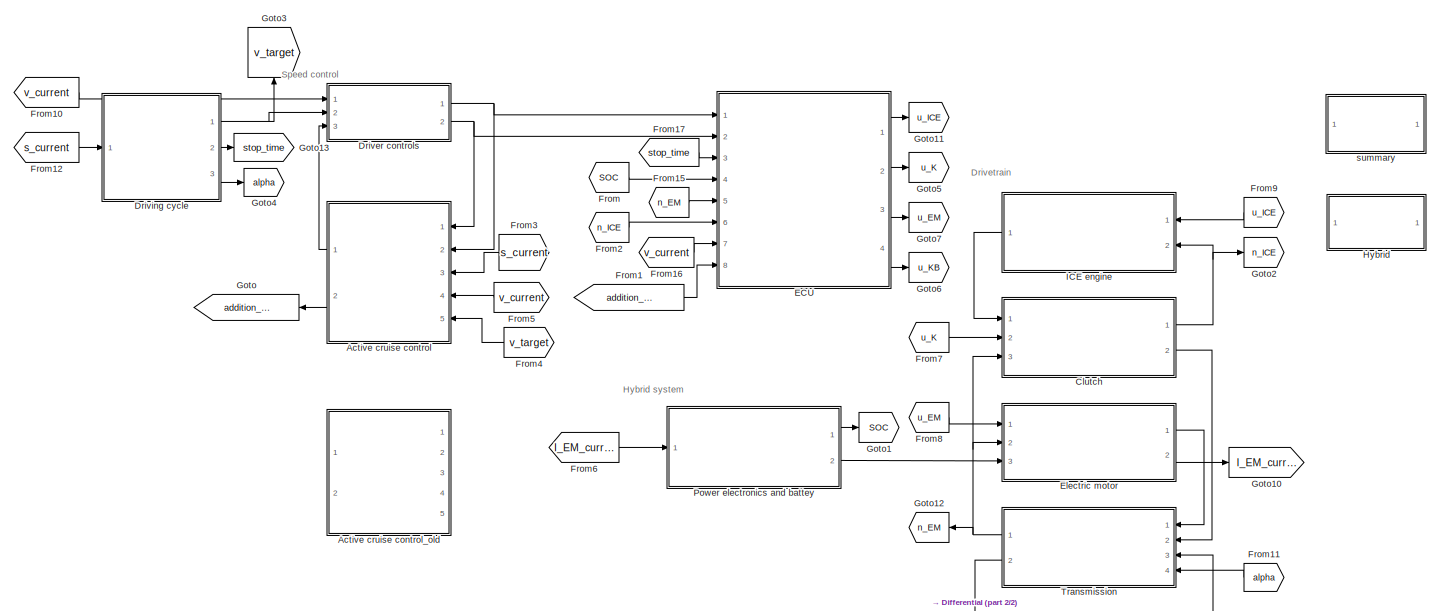
[diagram: root canvas - part 1/2, full width, middle band]
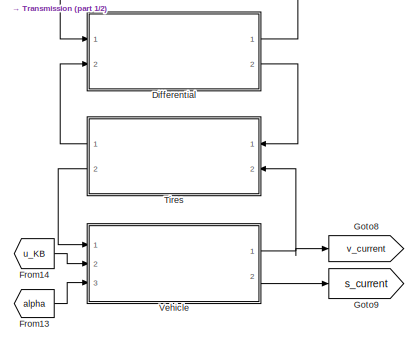
[diagram: root canvas - part 2/2, bottom right region]
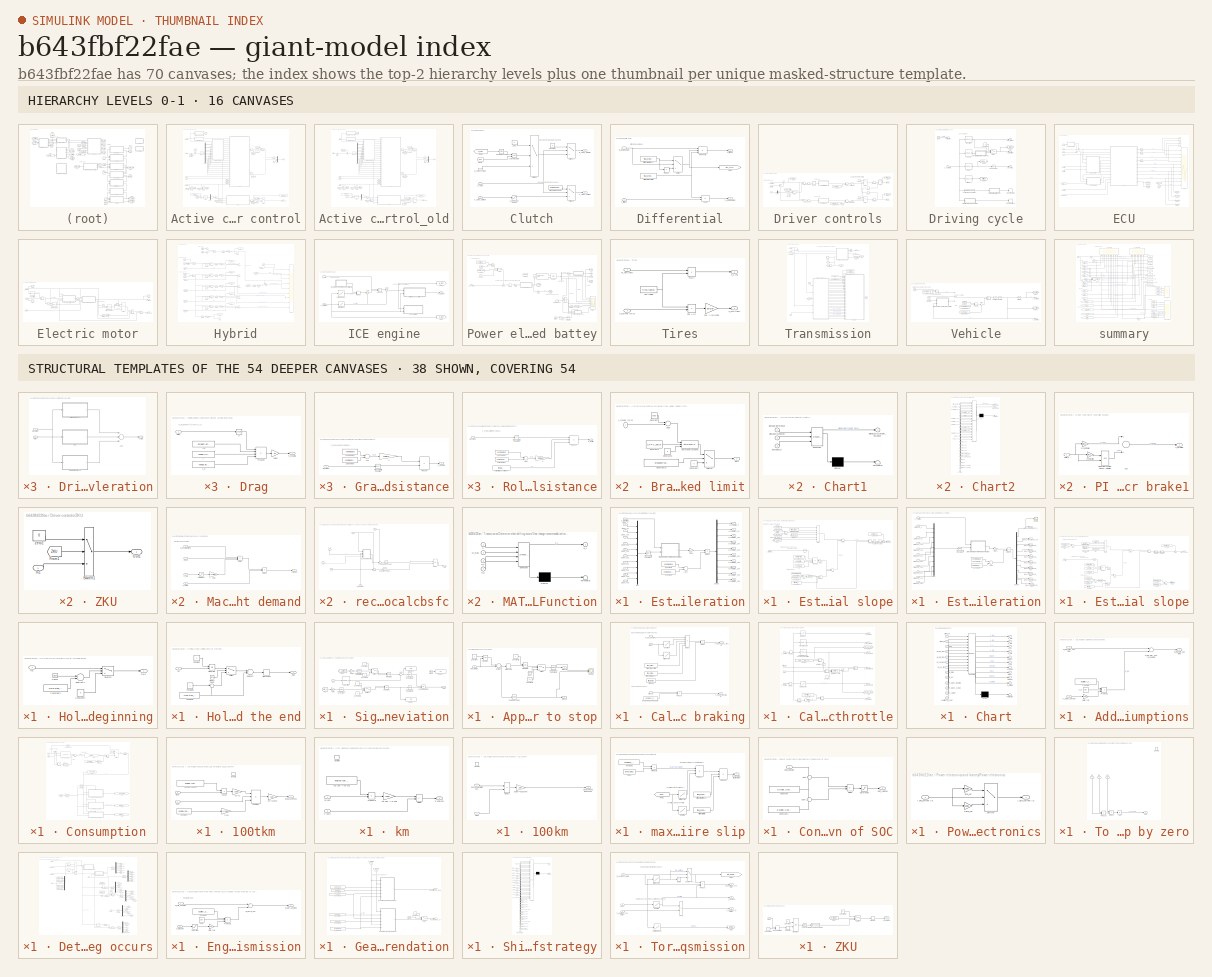
[diagram: thumbnail index - top-2 hierarchy levels (16 canvases) + 38 structural-template representatives of the remaining 54 canvases]
MODEL slx_b643fbf22fae
KIND model
CONFIG AbsTol = auto
CONFIG EnableMultiTasking = on
CONFIG FixedStep = sample_time
CONFIG MaxStep = 0.1
CONFIG MinStep = auto
CONFIG RelTol = 1e-3
CONFIG SampleTimeConstraint = Unconstrained
CONFIG Solver = ode3
CONFIG SolverName = ode3
CONFIG StartTime = 0.0
CONFIG StopTime = inf
WORKSPACE source: mxarray member
WORKSPACE Anschaffungskosten = [3707764736 2 1 1 1 1]
WORKSPACE Bat: object (value not decoded)
WORKSPACE DrvTrn = 4
WORKSPACE Eigenschaften = [3707764736 2 1 1 2 2]
WORKSPACE Electric_Truck = 0
WORKSPACE Elektro_LKW = 0
WORKSPACE Fahrzyklus = 5
WORKSPACE Fueltype = 6
WORKSPACE Gewichte = [3707764736 2 1 1 3 3]
WORKSPACE Hybrid_LKW = 1
WORKSPACE Hybrid_Truck = 1
WORKSPACE IZ12 = 3600
WORKSPACE Kosten = [3707764736 2 1 1 3 3]
WORKSPACE Kraftstoff = 6
WORKSPACE SOC_T_EM_completely_available = 0.448
WORKSPACE SOC_addition = 0.2
WORKSPACE SOC_soll = 0.5
WORKSPACE SOC_target = 0.05
WORKSPACE Sailing_without_drag_torque = 0
WORKSPACE TCO: object (value not decoded)
WORKSPACE TCO_Anhaenger = 1
WORKSPACE TCO_Trailer = 1
WORKSPACE T_distance_LPS_down = 141
WORKSPACE T_distance_LPS_up = 366
WORKSPACE VSim: object (value not decoded)
WORKSPACE Vehicle = 'LNGHybrid'
WORKSPACE WPT: object (value not decoded)
WORKSPACE Zugmaschinengewicht = 0
WORKSPACE acquisitionCosts: acquisitionCosts (value not decoded)
WORKSPACE acquisition_costs = [3707764736 2 1 1 3 3]
WORKSPACE addition_for_critical_slope = 0.037
WORKSPACE ambient: object (value not decoded)
WORKSPACE auxiliary_consumers: object (value not decoded)
WORKSPACE critical_altitude_difference = 50
WORKSPACE cycle: object (value not decoded)
WORKSPACE dcycle = 20
WORKSPACE distance_1_PPC = 330
WORKSPACE distance_2_PPC = 340
WORKSPACE distance_PPC_altitude_difference = 4601
WORKSPACE driver: object (value not decoded)
WORKSPACE em: object (value not decoded)
WORKSPACE em_M_max = 797.415556
WORKSPACE engine: object (value not decoded)
WORKSPACE final_drive: object (value not decoded)
WORKSPACE ifElectric = 0
WORKSPACE ifOptimized = 1
WORKSPACE look_ahead_PPC = 710
WORKSPACE max_distance = 108191.00003
WORKSPACE name = 'HDVSim_XNG_Hybrid_Truck'
WORKSPACE preditiveCruiseControl = 0
WORKSPACE propertie = [3707764736 2 1 1 4 4]
WORKSPACE prospective_cruise_control = 1
WORKSPACE sample_time = 0.1
WORKSPACE tank: object (value not decoded)
WORKSPACE tires: object (value not decoded)
WORKSPACE transmission: object (value not decoded)
WORKSPACE v_PPC_delta = 2.77777777778
WORKSPACE v_max_electrical_drive_only = 12.8888888889
WORKSPACE vehicle: object (value not decoded)
WORKSPACE vehicleProperties: vehicleProperties (value not decoded)
WORKSPACE vehicle_F_brake_max = 309890.14
WORKSPACE weights: weights (value not decoded)
WORKSPACE x = [11.689 7 0 0 2.884 1500 1000 1279 10 62 24 25 ... (27 elements, 1x27)]
BLOCK [SubSystem] Active cruise control
  Ports = [5, 2]
  RequestExecContextInheritance = off
BLOCK [SubSystem] Active cruise control/Braking from upper speed limit
  Ports = [1, 1]
  RequestExecContextInheritance = off
BLOCK [Sum] Active cruise control/Braking from upper speed limit/Add3
  InputSameDT = off
  Inputs = +-
  OutDataTypeStr = Inherit: Inherit via internal rule
  Ports = [2, 1]
  SaturateOnIntegerOverflow = off
BLOCK [Constant] Active cruise control/Braking from upper speed limit/Constant1
  Value = 90/3.6
BLOCK [Constant] Active cruise control/Braking from upper speed limit/Constant10
  Value = prospective_cruise_control
BLOCK [Constant] Active cruise control/Braking from upper speed limit/Constant6
  Value = v_PPC_delta
BLOCK [Constant] Active cruise control/Braking from upper speed limit/Constant7
  Value = 0
BLOCK [Constant] Active cruise control/Braking from upper speed limit/Constant8
  Value = 0
BLOCK [Outport] Active cruise control/Braking from upper speed limit/Out1
  IconDisplay = Port number
  VectorParamsAs1DForOutWhenUnconnected = off
BLOCK [Reference] Active cruise control/Braking from upper speed limit/Saturation Dynamic  REF=simulink/Discontinuities/Saturation
Dynamic
  Ports = [3, 1]
  SourceBlock = simulink/Discontinuities/Saturation\nDynamic
  SourceProductBaseCode = SL
  SourceProductName = Simulink
  SourceType = Saturation Dynamic
BLOCK [Switch] Active cruise control/Braking from upper speed limit/Switch3
  Criteria = u2 > Threshold
  InputSameDT = off
  SaturateOnIntegerOverflow = off
BLOCK [Inport] Active cruise control/Braking from upper speed limit/v_target [m//s]
  IconDisplay = Port number
BLOCK [SubSystem] Active cruise control/Chart1
  ErrorFcn = Stateflow.Translate.translate
  PermitHierarchicalResolution = ExplicitOnly
  Ports = [3, 1]
  RequestExecContextInheritance = off
  SFBlockType = Chart
  TreatAsAtomicUnit = on
BLOCK [Demux] Active cruise control/Chart1/ Demux 
  Outputs = 1
  Ports = [1, 1]
BLOCK [S-Function] Active cruise control/Chart1/ SFunction 
  EnableBusSupport = on
  FunctionName = sf_sfun
  Parameters = critical_altitude_difference,distance_PPC_altitude_difference
  PortCounts = [3 2]
  Ports = [3, 2]
  SFcnIsStateOwnerBlock = off
  SFunctionDeploymentMode = off
  Tag = Stateflow S-Function 2
BLOCK [Terminator] Active cruise control/Chart1/ Terminator 
BLOCK [Inport] Active cruise control/Chart1/Distance_covered
  IconDisplay = Port number
  Port = 2
BLOCK [Outport] Active cruise control/Chart1/Signal_SOC_target_increase
  IconDisplay = Port number
  VectorParamsAs1DForOutWhenUnconnected = off
BLOCK [Inport] Active cruise control/Chart1/altitude_difference
  IconDisplay = Port number
BLOCK [Inport] Active cruise control/Chart1/increase_0
  IconDisplay = Port number
  Port = 3
BLOCK [SubSystem] Active cruise control/Chart2
  ErrorFcn = Stateflow.Translate.translate
  PermitHierarchicalResolution = ExplicitOnly
  Ports = [24, 2]
  RequestExecContextInheritance = off
  SFBlockType = Chart
  TreatAsAtomicUnit = on
BLOCK [Demux] Active cruise control/Chart2/ Demux 
  Outputs = 1
  Ports = [1, 1]
BLOCK [S-Function] Active cruise control/Chart2/ SFunction 
  EnableBusSupport = on
  FunctionName = sf_sfun
  PortCounts = [24 3]
  Ports = [24, 3]
  SFcnIsStateOwnerBlock = off
  SFunctionDeploymentMode = off
  Tag = Stateflow S-Function 9
BLOCK [Terminator] Active cruise control/Chart2/ Terminator 
BLOCK [Inport] Active cruise control/Chart2/Acceleration_0
  IconDisplay = Port number
  Port = 2
BLOCK [Inport] Active cruise control/Chart2/Acceleration_100
  IconDisplay = Port number
  Port = 4
BLOCK [Inport] Active cruise control/Chart2/Acceleration_150
  IconDisplay = Port number
  Port = 5
BLOCK [Inport] Active cruise control/Chart2/Acceleration_200
  IconDisplay = Port number
  Port = 6
BLOCK [Inport] Active cruise control/Chart2/Acceleration_250
  IconDisplay = Port number
  Port = 7
BLOCK [Inport] Active cruise control/Chart2/Acceleration_300
  IconDisplay = Port number
  Port = 8
BLOCK [Inport] Active cruise control/Chart2/Acceleration_350
  IconDisplay = Port number
  Port = 9
BLOCK [Inport] Active cruise control/Chart2/Acceleration_400
  IconDisplay = Port number
  Port = 10
BLOCK [Inport] Active cruise control/Chart2/Acceleration_450
  IconDisplay = Port number
  Port = 11
BLOCK [Inport] Active cruise control/Chart2/Acceleration_50
  IconDisplay = Port number
  Port = 3
BLOCK [Inport] Active cruise control/Chart2/Distance_covered
  IconDisplay = Port number
  Port = 22
BLOCK [Inport] Active cruise control/Chart2/Distance_covered_2
  IconDisplay = Port number
  Port = 23
BLOCK [Inport] Active cruise control/Chart2/Driver_B
  IconDisplay = Port number
  Port = 21
BLOCK [Inport] Active cruise control/Chart2/Driver_M
  IconDisplay = Port number
  Port = 20
BLOCK [Outport] Active cruise control/Chart2/Signal_decline
  IconDisplay = Port number
  Port = 2
  VectorParamsAs1DForOutWhenUnconnected = off
BLOCK [Outport] Active cruise control/Chart2/Signal_incline
  IconDisplay = Port number
  VectorParamsAs1DForOutWhenUnconnected = off
BLOCK [Inport] Active cruise control/Chart2/critical_incline
  IconDisplay = Port number
BLOCK [Inport] Active cruise control/Chart2/incline_0
  IconDisplay = Port number
  Port = 12
BLOCK [Inport] Active cruise control/Chart2/incline_100
  IconDisplay = Port number
  Port = 13
BLOCK [Inport] Active cruise control/Chart2/incline_200
  IconDisplay = Port number
  Port = 14
BLOCK [Inport] Active cruise control/Chart2/incline_300
  IconDisplay = Port number
  Port = 15
BLOCK [Inport] Active cruise control/Chart2/incline_400
  IconDisplay = Port number
  Port = 16
BLOCK [Inport] Active cruise control/Chart2/incline_500
  IconDisplay = Port number
  Port = 17
BLOCK [Inport] Active cruise control/Chart2/incline_distance_look_ahead_max
  IconDisplay = Port number
  Port = 19
BLOCK [Inport] Active cruise control/Chart2/incline_distance_look_ahead_min
  IconDisplay = Port number
  Port = 18
BLOCK [Inport] Active cruise control/Chart2/v_current
  IconDisplay = Port number
  Port = 24
BLOCK [Constant] Active cruise control/Constant
  Value = SOC_addition
BLOCK [Constant] Active cruise control/Constant1
  Value = v_PPC_delta
BLOCK [Constant] Active cruise control/Constant2
  Value = 0
BLOCK [Constant] Active cruise control/Constant3
  Value = [0 distance_PPC_altitude_difference]
BLOCK [Constant] Active cruise control/Constant4
  Value = 0
BLOCK [Constant] Active cruise control/Constant9
  Value = [0 distance_1_PPC/5 2*distance_1_PPC/5 3*distance_1_PPC/5 4*distance_1_PPC/5 distance_1_PPC 6*distance_1_PPC/5 7*distance_1_PPC/5 8*distance_1_PPC/5 9*distance_1_PPC/5 10*distance_1_PPC/5 look_ahead_PPC look_ahead_PPC+distance_1_PPC]
BLOCK [Demux] Active cruise control/Demux
  DisplayOption = bar
  Outputs = 13
  Ports = [1, 13]
BLOCK [Demux] Active cruise control/Demux1
  DisplayOption = bar
  Outputs = 2
  Ports = [1, 2]
BLOCK [Inport] Active cruise control/Driver_B
  IconDisplay = Port number
BLOCK [Inport] Active cruise control/Driver_M
  IconDisplay = Port number
  Port = 2
BLOCK [SubSystem] Active cruise control/Estimate acceleration
  Ports = [11, 10]
  RequestExecContextInheritance = off
BLOCK [Outport] Active cruise control/Estimate acceleration/Acceleration_0
  IconDisplay = Port number
  VectorParamsAs1DForOutWhenUnconnected = off
BLOCK [Outport] Active cruise control/Estimate acceleration/Acceleration_100
  IconDisplay = Port number
  Port = 3
  VectorParamsAs1DForOutWhenUnconnected = off
BLOCK [Outport] Active cruise control/Estimate acceleration/Acceleration_150
  IconDisplay = Port number
  Port = 4
  VectorParamsAs1DForOutWhenUnconnected = off
BLOCK [Outport] Active cruise control/Estimate acceleration/Acceleration_200
  IconDisplay = Port number
  Port = 5
  VectorParamsAs1DForOutWhenUnconnected = off
BLOCK [Outport] Active cruise control/Estimate acceleration/Acceleration_250
  IconDisplay = Port number
  Port = 6
  VectorParamsAs1DForOutWhenUnconnected = off
BLOCK [Outport] Active cruise control/Estimate acceleration/Acceleration_300
  IconDisplay = Port number
  Port = 7
  VectorParamsAs1DForOutWhenUnconnected = off
BLOCK [Outport] Active cruise control/Estimate acceleration/Acceleration_350
  IconDisplay = Port number
  Port = 8
  VectorParamsAs1DForOutWhenUnconnected = off
BLOCK [Outport] Active cruise control/Estimate acceleration/Acceleration_400
  IconDisplay = Port number
  Port = 9
  VectorParamsAs1DForOutWhenUnconnected = off
BLOCK [Outport] Active cruise control/Estimate acceleration/Acceleration_450
  IconDisplay = Port number
  Port = 10
  VectorParamsAs1DForOutWhenUnconnected = off
BLOCK [Outport] Active cruise control/Estimate acceleration/Acceleration_50
  IconDisplay = Port number
  Port = 2
  VectorParamsAs1DForOutWhenUnconnected = off
BLOCK [Sum] Active cruise control/Estimate acceleration/Add4
  InputSameDT = off
  OutDataTypeStr = Inherit: Inherit via internal rule
  Ports = [2, 1]
  SaturateOnIntegerOverflow = off
BLOCK [Constant] Active cruise control/Estimate acceleration/Constant4
  Value = vehicle.payload
BLOCK [Constant] Active cruise control/Estimate acceleration/Constant9
  Value = vehicle.mass
BLOCK [Demux] Active cruise control/Estimate acceleration/Demux
  DisplayOption = bar
  Outputs = 10
  Ports = [1, 10]
BLOCK [Product] Active cruise control/Estimate acceleration/Divide1
  InputSameDT = off
  Inputs = */
  OutDataTypeStr = Inherit: Inherit via internal rule
  Ports = [2, 1]
  RndMeth = Floor
  SaturateOnIntegerOverflow = off
BLOCK [SubSystem] Active cruise control/Estimate acceleration/Driving resistance without acceleration
  Ports = [2, 1]
  RequestExecContextInheritance = off
BLOCK [Sum] Active cruise control/Estimate acceleration/Driving resistance without acceleration/Add
  InputSameDT = off
  Inputs = +++
  OutDataTypeStr = Inherit: Inherit via internal rule
  Ports = [3, 1]
  SaturateOnIntegerOverflow = off
BLOCK [SubSystem] Active cruise control/Estimate acceleration/Driving resistance without acceleration/Drag 
  Ports = [1, 1]
  RequestExecContextInheritance = off
BLOCK [Constant] Active cruise control/Estimate acceleration/Driving resistance without acceleration/Drag /A
  Value = vehicle.frontal_area
BLOCK [Outport] Active cruise control/Estimate acceleration/Driving resistance without acceleration/Drag /F_drag [N]
  IconDisplay = Port number
  VectorParamsAs1DForOutWhenUnconnected = off
BLOCK [Product] Active cruise control/Estimate acceleration/Driving resistance without acceleration/Drag /Product2
  InputSameDT = off
  Inputs = 4
  OutDataTypeStr = Inherit: Inherit via internal rule
  Ports = [4, 1]
  SaturateOnIntegerOverflow = off
BLOCK [Constant] Active cruise control/Estimate acceleration/Driving resistance without acceleration/Drag /c_d
  Value = vehicle.air_drag_coeff(end)
BLOCK [Gain] Active cruise control/Estimate acceleration/Driving resistance without acceleration/Drag /gain2
  Gain = 0.5
  OutDataTypeStr = Inherit: Inherit via internal rule
  ParamDataTypeStr = Inherit: Inherit via internal rule
  SaturateOnIntegerOverflow = off
BLOCK [Constant] Active cruise control/Estimate acceleration/Driving resistance without acceleration/Drag /rho
  Value = ambient.air_density
BLOCK [Inport] Active cruise control/Estimate acceleration/Driving resistance without acceleration/Drag /v [m//s]
  IconDisplay = Port number
BLOCK [Math] Active cruise control/Estimate acceleration/Driving resistance without acceleration/Drag /v²
  Operator = square
  Ports = [1, 1]
BLOCK [Outport] Active cruise control/Estimate acceleration/Driving resistance without acceleration/F_x (resist) [N]
  IconDisplay = Port number
  VectorParamsAs1DForOutWhenUnconnected = off
BLOCK [SubSystem] Active cruise control/Estimate acceleration/Driving resistance without acceleration/Gradient resistance
  Ports = [1, 1]
  RequestExecContextInheritance = off
BLOCK [Sum] Active cruise control/Estimate acceleration/Driving resistance without acceleration/Gradient resistance/Add
  InputSameDT = off
  OutDataTypeStr = Inherit: Inherit via internal rule
  Ports = [2, 1]
  SaturateOnIntegerOverflow = off
BLOCK [Constant] Active cruise control/Estimate acceleration/Driving resistance without acceleration/Gradient resistance/Constant1
  Value = vehicle.payload
BLOCK [Constant] Active cruise control/Estimate acceleration/Driving resistance without acceleration/Gradient resistance/Constant2
  Value = vehicle.mass
BLOCK [Outport] Active cruise control/Estimate acceleration/Driving resistance without acceleration/Gradient resistance/F_slope [N]
  IconDisplay = Port number
  VectorParamsAs1DForOutWhenUnconnected = off
BLOCK [Product] Active cruise control/Estimate acceleration/Driving resistance without acceleration/Gradient resistance/Product7
  InputSameDT = off
  OutDataTypeStr = Inherit: Inherit via internal rule
  Ports = [2, 1]
  SaturateOnIntegerOverflow = off
BLOCK [Trigonometry] Active cruise control/Estimate acceleration/Driving resistance without acceleration/Gradient resistance/Trigonometric Function
  Ports = [1, 1]
BLOCK [Inport] Active cruise control/Estimate acceleration/Driving resistance without acceleration/Gradient resistance/alpha [rad]
  IconDisplay = Port number
BLOCK [Gain] Active cruise control/Estimate acceleration/Driving resistance without acceleration/Gradient resistance/g
  Gain = ambient.gravity
  OutDataTypeStr = Inherit: Inherit via internal rule
  ParamDataTypeStr = Inherit: Inherit via internal rule
  SaturateOnIntegerOverflow = off
BLOCK [SubSystem] Active cruise control/Estimate acceleration/Driving resistance without acceleration/Rolling resistance
  Ports = [1, 1]
  RequestExecContextInheritance = off
BLOCK [Sum] Active cruise control/Estimate acceleration/Driving resistance without acceleration/Rolling resistance/Add1
  InputSameDT = off
  OutDataTypeStr = Inherit: Inherit via internal rule
  Ports = [2, 1]
  SaturateOnIntegerOverflow = off
BLOCK [Constant] Active cruise control/Estimate acceleration/Driving resistance without acceleration/Rolling resistance/Constant1
  Value = vehicle.payload
BLOCK [Constant] Active cruise control/Estimate acceleration/Driving resistance without acceleration/Rolling resistance/Constant5
  Value = tires.roll_drag_coeff.total
BLOCK [Constant] Active cruise control/Estimate acceleration/Driving resistance without acceleration/Rolling resistance/Constant8
  Value = vehicle.mass
BLOCK [Outport] Active cruise control/Estimate acceleration/Driving resistance without acceleration/Rolling resistance/F_Roll [N]
  IconDisplay = Port number
  VectorParamsAs1DForOutWhenUnconnected = off
BLOCK [Product] Active cruise control/Estimate acceleration/Driving resistance without acceleration/Rolling resistance/Product7
  InputSameDT = off
  Inputs = 3
  OutDataTypeStr = Inherit: Inherit via internal rule
  Ports = [3, 1]
  SaturateOnIntegerOverflow = off
BLOCK [Trigonometry] Active cruise control/Estimate acceleration/Driving resistance without acceleration/Rolling resistance/Trigonometric Function
  Operator = cos
  Ports = [1, 1]
BLOCK [Inport] Active cruise control/Estimate acceleration/Driving resistance without acceleration/Rolling resistance/alpha [rad]
  IconDisplay = Port number
BLOCK [Gain] Active cruise control/Estimate acceleration/Driving resistance without acceleration/Rolling resistance/g
  Gain = ambient.gravity
  OutDataTypeStr = Inherit: Inherit via internal rule
  ParamDataTypeStr = Inherit: Inherit via internal rule
  SaturateOnIntegerOverflow = off
BLOCK [Inport] Active cruise control/Estimate acceleration/Driving resistance without acceleration/alpha [rad]
  IconDisplay = Port number
  Port = 2
BLOCK [Inport] Active cruise control/Estimate acceleration/Driving resistance without acceleration/v [m//s]
  IconDisplay = Port number
BLOCK [Gain] Active cruise control/Estimate acceleration/Gain1
  Gain = -1
  OutDataTypeStr = Inherit: Inherit via internal rule
  ParamDataTypeStr = Inherit: Inherit via internal rule
  SaturateOnIntegerOverflow = off
BLOCK [Mux] Active cruise control/Estimate acceleration/Mux
  DisplayOption = bar
  Inputs = 10
  Ports = [10, 1]
BLOCK [Inport] Active cruise control/Estimate acceleration/Slope_0
  IconDisplay = Port number
  Port = 2
BLOCK [Inport] Active cruise control/Estimate acceleration/Slope_100
  IconDisplay = Port number
  Port = 4
BLOCK [Inport] Active cruise control/Estimate acceleration/Slope_150
  IconDisplay = Port number
  Port = 5
BLOCK [Inport] Active cruise control/Estimate acceleration/Slope_200
  IconDisplay = Port number
  Port = 6
BLOCK [Inport] Active cruise control/Estimate acceleration/Slope_250 
  IconDisplay = Port number
  Port = 7
BLOCK [Inport] Active cruise control/Estimate acceleration/Slope_300
  IconDisplay = Port number
  Port = 8
BLOCK [Inport] Active cruise control/Estimate acceleration/Slope_350
  IconDisplay = Port number
  Port = 9
BLOCK [Inport] Active cruise control/Estimate acceleration/Slope_400
  IconDisplay = Port number
  Port = 10
BLOCK [Inport] Active cruise control/Estimate acceleration/Slope_450
  IconDisplay = Port number
  Port = 11
BLOCK [Inport] Active cruise control/Estimate acceleration/Slope_50
  IconDisplay = Port number
  Port = 3
BLOCK [Trigonometry] Active cruise control/Estimate acceleration/Trigonometric Function2
  Operator = atan
  Ports = [1, 1]
BLOCK [Inport] Active cruise control/Estimate acceleration/v_target [m//s]
  IconDisplay = Port number
BLOCK [SubSystem] Active cruise control/Estimate critical slope
  Ports = [1, 1]
  RequestExecContextInheritance = off
BLOCK [Constant] Active cruise control/Estimate critical slope/A
  Value = vehicle.frontal_area
BLOCK [Sum] Active cruise control/Estimate critical slope/Add
  InputSameDT = off
  OutDataTypeStr = Inherit: Inherit via internal rule
  Ports = [2, 1]
  SaturateOnIntegerOverflow = off
BLOCK [Sum] Active cruise control/Estimate critical slope/Add1
  InputSameDT = off
  OutDataTypeStr = Inherit: Inherit via internal rule
  Ports = [2, 1]
  SaturateOnIntegerOverflow = off
BLOCK [Sum] Active cruise control/Estimate critical slope/Add3
  InputSameDT = off
  OutDataTypeStr = Inherit: Inherit via internal rule
  Ports = [2, 1]
  SaturateOnIntegerOverflow = off
BLOCK [Constant] Active cruise control/Estimate critical slope/Constant1
  Value = vehicle.payload
BLOCK [Constant] Active cruise control/Estimate critical slope/Constant4
  Value = addition_for_critical_slope
BLOCK [Constant] Active cruise control/Estimate critical slope/Constant5
  Value = tires.roll_drag_coeff.total
BLOCK [Constant] Active cruise control/Estimate critical slope/Constant8
  Value = vehicle.mass
BLOCK [Constant] Active cruise control/Estimate critical slope/Differential gear ratio
  Value = final_drive.ratio
BLOCK [Product] Active cruise control/Estimate critical slope/Divide
  InputSameDT = off
  Inputs = ***/**
  OutDataTypeStr = Inherit: Inherit via internal rule
  Ports = [6, 1]
  RndMeth = Floor
  SaturateOnIntegerOverflow = off
BLOCK [Product] Active cruise control/Estimate critical slope/Divide1
  InputSameDT = off
  Inputs = */
  OutDataTypeStr = Inherit: Inherit via internal rule
  Ports = [2, 1]
  RndMeth = Floor
  SaturateOnIntegerOverflow = off
BLOCK [From] Active cruise control/Estimate critical slope/From
  GotoTag = M_ICE_max
  TagVisibility = global
BLOCK [From] Active cruise control/Estimate critical slope/From1
  GotoTag = i_gearbox
  TagVisibility = global
BLOCK [From] Active cruise control/Estimate critical slope/From2
  GotoTag = Eta_Gearbox
  TagVisibility = global
BLOCK [From] Active cruise control/Estimate critical slope/From3
  GotoTag = Eta_Achsle_gearbox
  TagVisibility = global
BLOCK [From] Active cruise control/Estimate critical slope/From4
  GotoTag = M_EM_max
  TagVisibility = global
BLOCK [Product] Active cruise control/Estimate critical slope/Product
  InputSameDT = off
  OutDataTypeStr = Inherit: Inherit via internal rule
  Ports = [2, 1]
  RndMeth = Floor
  SaturateOnIntegerOverflow = off
BLOCK [Product] Active cruise control/Estimate critical slope/Product2
  InputSameDT = off
  Inputs = 4
  OutDataTypeStr = Inherit: Inherit via internal rule
  Ports = [4, 1]
  SaturateOnIntegerOverflow = off
BLOCK [Sum] Active cruise control/Estimate critical slope/Subtract
  InputSameDT = off
  Inputs = +-
  OutDataTypeStr = Inherit: Inherit via internal rule
  Ports = [2, 1]
  SaturateOnIntegerOverflow = off
BLOCK [Sum] Active cruise control/Estimate critical slope/Sum3
  IconShape = round
  InputSameDT = off
  Inputs = ++|
  OutDataTypeStr = Inherit: Inherit via internal rule
  Ports = [2, 1]
  SaturateOnIntegerOverflow = off
BLOCK [Constant] Active cruise control/Estimate critical slope/Tire radius
  Value = tires.radius
BLOCK [Trigonometry] Active cruise control/Estimate critical slope/Trigonometric Function
  Operator = asin
  Ports = [1, 1]
BLOCK [Trigonometry] Active cruise control/Estimate critical slope/Trigonometric Function1
  Operator = tan
  Ports = [1, 1]
BLOCK [Constant] Active cruise control/Estimate critical slope/c_d
  Value = vehicle.air_drag_coeff(end)
BLOCK [Outport] Active cruise control/Estimate critical slope/critical_slope
  IconDisplay = Port number
  VectorParamsAs1DForOutWhenUnconnected = off
BLOCK [Gain] Active cruise control/Estimate critical slope/g
  Gain = ambient.gravity
  OutDataTypeStr = Inherit: Inherit via internal rule
  ParamDataTypeStr = Inherit: Inherit via internal rule
  SaturateOnIntegerOverflow = off
BLOCK [Gain] Active cruise control/Estimate critical slope/gain2
  Gain = 0.5
  OutDataTypeStr = Inherit: Inherit via internal rule
  ParamDataTypeStr = Inherit: Inherit via internal rule
  SaturateOnIntegerOverflow = off
BLOCK [Constant] Active cruise control/Estimate critical slope/rho
  Value = ambient.air_density
BLOCK [Inport] Active cruise control/Estimate critical slope/v_target [m//s]
  IconDisplay = Port number
BLOCK [Math] Active cruise control/Estimate critical slope/v²
  Operator = square
  Ports = [1, 1]
BLOCK [From] Active cruise control/From
  GotoTag = Out1
BLOCK [From] Active cruise control/From1
  GotoTag = Signal_decline
BLOCK [From] Active cruise control/From2
  GotoTag = Signal_incline
BLOCK [From] Active cruise control/From3
  GotoTag = Signal_SOC
BLOCK [From] Active cruise control/From4
  GotoTag = Course
BLOCK [From] Active cruise control/From5
  GotoTag = Course2
BLOCK [From] Active cruise control/From6
  GotoTag = s_current_2
BLOCK [Goto] Active cruise control/Goto
  GotoTag = Out1
BLOCK [Goto] Active cruise control/Goto1
  GotoTag = Signal_decline
BLOCK [Goto] Active cruise control/Goto2
  GotoTag = Signal_incline
BLOCK [Goto] Active cruise control/Goto3
  GotoTag = Signal_SOC
BLOCK [Goto] Active cruise control/Goto4
  GotoTag = Course
BLOCK [Goto] Active cruise control/Goto5
  GotoTag = Course2
BLOCK [Goto] Active cruise control/Goto6
  GotoTag = s_current_2
BLOCK [Integrator] Active cruise control/Integrator
  ExternalReset = rising
  Ports = [2, 1]
BLOCK [Integrator] Active cruise control/Integrator1
  ExternalReset = rising
  Ports = [2, 1]
BLOCK [Integrator] Active cruise control/Integrator2
  ExternalReset = rising
  Ports = [2, 1]
BLOCK [Memory] Active cruise control/Memory
BLOCK [Memory] Active cruise control/Memory1
BLOCK [Memory] Active cruise control/Memory2
BLOCK [Memory] Active cruise control/Memory3
BLOCK [Mux] Active cruise control/Mux1
  DisplayOption = bar
  Inputs = 3
  Ports = [3, 1]
BLOCK [Sum] Active cruise control/Subtract
  InputSameDT = off
  Inputs = -+
  OutDataTypeStr = Inherit: Inherit via internal rule
  Ports = [2, 1]
  SaturateOnIntegerOverflow = off
BLOCK [Sum] Active cruise control/Sum1
  IconShape = round
  InputSameDT = off
  Inputs = ++|
  OutDataTypeStr = Inherit: Inherit via internal rule
  Ports = [2, 1]
  SaturateOnIntegerOverflow = off
BLOCK [Sum] Active cruise control/Sum3
  IconShape = round
  InputSameDT = off
  Inputs = ++|
  OutDataTypeStr = Inherit: Inherit via internal rule
  Ports = [2, 1]
  SaturateOnIntegerOverflow = off
BLOCK [Switch] Active cruise control/Switch
  InputSameDT = off
  SaturateOnIntegerOverflow = off
  Threshold = 1
BLOCK [Switch] Active cruise control/Switch1
  InputSameDT = off
  SaturateOnIntegerOverflow = off
  Threshold = 1
BLOCK [ToWorkspace] Active cruise control/To Workspace
  FixptAsFi = on
  MaxDataPoints = inf
  Ports = [1]
  SampleTime = -1
  SaveFormat = Structure With Time
  VariableName = Signal_SOC_target_increase
BLOCK [Outport] Active cruise control/addition_for_SOC
  IconDisplay = Port number
  Port = 2
  VectorParamsAs1DForOutWhenUnconnected = off
BLOCK [Lookup_n-D] Active cruise control/altitude
  BreakpointsForDimension1 = cycle.distance
  InterpMethod = Flat
  NumberOfTableDimensions = 1
  Ports = [1, 1]
  RndMeth = Simplest
  Table = cycle.altitude
BLOCK [Inport] Active cruise control/s_current [m]
  IconDisplay = Port number
  Port = 3
BLOCK [Lookup] Active cruise control/slope = q(x)
  InputValues = cycle.distance
  LookUpMeth = Interpolation-Use End Values
  SaturateOnIntegerOverflow = off
  Table = cycle.slope
BLOCK [Inport] Active cruise control/v_current [m//s]
  IconDisplay = Port number
  Port = 4
BLOCK [Inport] Active cruise control/v_target [m//s]
  IconDisplay = Port number
  Port = 5
BLOCK [Outport] Active cruise control/v_vT
  IconDisplay = Port number
  VectorParamsAs1DForOutWhenUnconnected = off
BLOCK [SubSystem] Active cruise control_old
  Commented = on
  Ports = [5, 2]
  RequestExecContextInheritance = off
BLOCK [SubSystem] Active cruise control_old/Braking from upper speed limit
  Ports = [1, 1]
  RequestExecContextInheritance = off
BLOCK [Sum] Active cruise control_old/Braking from upper speed limit/Add3
  InputSameDT = off
  Inputs = +-
  OutDataTypeStr = Inherit: Inherit via internal rule
  Ports = [2, 1]
  SaturateOnIntegerOverflow = off
BLOCK [Constant] Active cruise control_old/Braking from upper speed limit/Constant1
  Value = 90/3.6
BLOCK [Constant] Active cruise control_old/Braking from upper speed limit/Constant10
  Value = Vorausschauender_Tempomat
BLOCK [Constant] Active cruise control_old/Braking from upper speed limit/Constant6
  Value = v_PPC_delta
BLOCK [Constant] Active cruise control_old/Braking from upper speed limit/Constant7
  Value = 0
BLOCK [Constant] Active cruise control_old/Braking from upper speed limit/Constant8
  Value = 0
BLOCK [Outport] Active cruise control_old/Braking from upper speed limit/Out1
  IconDisplay = Port number
  VectorParamsAs1DForOutWhenUnconnected = off
BLOCK [Reference] Active cruise control_old/Braking from upper speed limit/Saturation Dynamic  REF=simulink/Discontinuities/Saturation
Dynamic
  Ports = [3, 1]
  SourceBlock = simulink/Discontinuities/Saturation\nDynamic
  SourceProductBaseCode = SL
  SourceProductName = Simulink
  SourceType = Saturation Dynamic
BLOCK [Switch] Active cruise control_old/Braking from upper speed limit/Switch3
  Criteria = u2 > Threshold
  InputSameDT = off
  SaturateOnIntegerOverflow = off
BLOCK [Inport] Active cruise control_old/Braking from upper speed limit/v_soll [m//s]
  IconDisplay = Port number
BLOCK [SubSystem] Active cruise control_old/Chart
  ErrorFcn = Stateflow.Translate.translate
  PermitHierarchicalResolution = ExplicitOnly
  Ports = [24, 2]
  RequestExecContextInheritance = off
  SFBlockType = Chart
  TreatAsAtomicUnit = on
BLOCK [Demux] Active cruise control_old/Chart/ Demux 
  Outputs = 1
  Ports = [1, 1]
BLOCK [S-Function] Active cruise control_old/Chart/ SFunction 
  EnableBusSupport = on
  FunctionName = sf_sfun
  Parameters = Vorausschauender_Tempomat
  PortCounts = [24 3]
  Ports = [24, 3]
  SFcnIsStateOwnerBlock = off
  SFunctionDeploymentMode = off
  Tag = Stateflow S-Function 7
BLOCK [Terminator] Active cruise control_old/Chart/ Terminator 
BLOCK [Inport] Active cruise control_old/Chart/Beschleunigung_0
  IconDisplay = Port number
  Port = 2
BLOCK [Inport] Active cruise control_old/Chart/Beschleunigung_100
  IconDisplay = Port number
  Port = 4
BLOCK [Inport] Active cruise control_old/Chart/Beschleunigung_150
  IconDisplay = Port number
  Port = 5
BLOCK [Inport] Active cruise control_old/Chart/Beschleunigung_200
  IconDisplay = Port number
  Port = 6
BLOCK [Inport] Active cruise control_old/Chart/Beschleunigung_250
  IconDisplay = Port number
  Port = 7
BLOCK [Inport] Active cruise control_old/Chart/Beschleunigung_300
  IconDisplay = Port number
  Port = 8
BLOCK [Inport] Active cruise control_old/Chart/Beschleunigung_350
  IconDisplay = Port number
  Port = 9
BLOCK [Inport] Active cruise control_old/Chart/Beschleunigung_400
  IconDisplay = Port number
  Port = 10
BLOCK [Inport] Active cruise control_old/Chart/Beschleunigung_450
  IconDisplay = Port number
  Port = 11
BLOCK [Inport] Active cruise control_old/Chart/Beschleunigung_50
  IconDisplay = Port number
  Port = 3
BLOCK [Inport] Active cruise control_old/Chart/Fahrer_B
  IconDisplay = Port number
  Port = 21
BLOCK [Inport] Active cruise control_old/Chart/Fahrer_M
  IconDisplay = Port number
  Port = 20
BLOCK [Inport] Active cruise control_old/Chart/Kritische_Steigung
  IconDisplay = Port number
BLOCK [Outport] Active cruise control_old/Chart/Signal_Gefaelle
  IconDisplay = Port number
  Port = 2
  VectorParamsAs1DForOutWhenUnconnected = off
BLOCK [Outport] Active cruise control_old/Chart/Signal_Steigung
  IconDisplay = Port number
  VectorParamsAs1DForOutWhenUnconnected = off
BLOCK [Inport] Active cruise control_old/Chart/Steigung_0
  IconDisplay = Port number
  Port = 12
BLOCK [Inport] Active cruise control_old/Chart/Steigung_100
  IconDisplay = Port number
  Port = 13
BLOCK [Inport] Active cruise control_old/Chart/Steigung_200
  IconDisplay = Port number
  Port = 14
BLOCK [Inport] Active cruise control_old/Chart/Steigung_300
  IconDisplay = Port number
  Port = 15
BLOCK [Inport] Active cruise control_old/Chart/Steigung_400
  IconDisplay = Port number
  Port = 16
BLOCK [Inport] Active cruise control_old/Chart/Steigung_500
  IconDisplay = Port number
  Port = 17
BLOCK [Inport] Active cruise control_old/Chart/Steigung_distance_look_ahead_max
  IconDisplay = Port number
  Port = 19
BLOCK [Inport] Active cruise control_old/Chart/Steigung_distance_look_ahead_min
  IconDisplay = Port number
  Port = 18
BLOCK [Inport] Active cruise control_old/Chart/Zurueckgelegte_Strecke
  IconDisplay = Port number
  Port = 22
BLOCK [Inport] Active cruise control_old/Chart/Zurueckgelegte_Strecke_2
  IconDisplay = Port number
  Port = 23
BLOCK [Inport] Active cruise control_old/Chart/v_ist
  IconDisplay = Port number
  Port = 24
BLOCK [SubSystem] Active cruise control_old/Chart1
  ErrorFcn = Stateflow.Translate.translate
  PermitHierarchicalResolution = ExplicitOnly
  Ports = [3, 1]
  RequestExecContextInheritance = off
  SFBlockType = Chart
  TreatAsAtomicUnit = on
BLOCK [Demux] Active cruise control_old/Chart1/ Demux 
  Outputs = 1
  Ports = [1, 1]
BLOCK [S-Function] Active cruise control_old/Chart1/ SFunction 
  EnableBusSupport = on
  FunctionName = sf_sfun
  Parameters = critical_altitude_difference,distance_PPC_altitude_difference
  PortCounts = [3 2]
  Ports = [3, 2]
  SFcnIsStateOwnerBlock = off
  SFunctionDeploymentMode = off
  Tag = Stateflow S-Function 8
BLOCK [Terminator] Active cruise control_old/Chart1/ Terminator 
BLOCK [Outport] Active cruise control_old/Chart1/Signal_SOC_target_erhoehen
  IconDisplay = Port number
  VectorParamsAs1DForOutWhenUnconnected = off
BLOCK [Inport] Active cruise control_old/Chart1/Steigung_0
  IconDisplay = Port number
  Port = 3
BLOCK [Inport] Active cruise control_old/Chart1/Zurueckgelegte_Strecke
  IconDisplay = Port number
  Port = 2
BLOCK [Inport] Active cruise control_old/Chart1/altitude_difference
  IconDisplay = Port number
BLOCK [Constant] Active cruise control_old/Constant
  Value = SOC_addition
BLOCK [Constant] Active cruise control_old/Constant1
  Value = v_PPC_delta
BLOCK [Constant] Active cruise control_old/Constant2
  Value = 0
BLOCK [Constant] Active cruise control_old/Constant3
  Value = [0 distance_PPC_altitude_difference]
BLOCK [Constant] Active cruise control_old/Constant4
  Value = 0
BLOCK [Constant] Active cruise control_old/Constant9
  Value = [0 distance_1_PPC/5 2*distance_1_PPC/5 3*distance_1_PPC/5 4*distance_1_PPC/5 distance_1_PPC 6*distance_1_PPC/5 7*distance_1_PPC/5 8*distance_1_PPC/5 9*distance_1_PPC/5 10*distance_1_PPC/5 look_ahead_PPC look_ahead_PPC+distance_1_PPC]
BLOCK [Demux] Active cruise control_old/Demux
  DisplayOption = bar
  Outputs = 13
  Ports = [1, 13]
BLOCK [Demux] Active cruise control_old/Demux1
  DisplayOption = bar
  Outputs = 2
  Ports = [1, 2]
BLOCK [SubSystem] Active cruise control_old/Estimate acceleration
  Ports = [11, 10]
  RequestExecContextInheritance = off
BLOCK [Sum] Active cruise control_old/Estimate acceleration/Add4
  InputSameDT = off
  OutDataTypeStr = Inherit: Inherit via internal rule
  Ports = [2, 1]
  SaturateOnIntegerOverflow = off
BLOCK [Outport] Active cruise control_old/Estimate acceleration/Beschleunigung_0
  IconDisplay = Port number
  VectorParamsAs1DForOutWhenUnconnected = off
BLOCK [Outport] Active cruise control_old/Estimate acceleration/Beschleunigung_100
  IconDisplay = Port number
  Port = 3
  VectorParamsAs1DForOutWhenUnconnected = off
BLOCK [Outport] Active cruise control_old/Estimate acceleration/Beschleunigung_150
  IconDisplay = Port number
  Port = 4
  VectorParamsAs1DForOutWhenUnconnected = off
BLOCK [Outport] Active cruise control_old/Estimate acceleration/Beschleunigung_200
  IconDisplay = Port number
  Port = 5
  VectorParamsAs1DForOutWhenUnconnected = off
BLOCK [Outport] Active cruise control_old/Estimate acceleration/Beschleunigung_250
  IconDisplay = Port number
  Port = 6
  VectorParamsAs1DForOutWhenUnconnected = off
BLOCK [Outport] Active cruise control_old/Estimate acceleration/Beschleunigung_300
  IconDisplay = Port number
  Port = 7
  VectorParamsAs1DForOutWhenUnconnected = off
BLOCK [Outport] Active cruise control_old/Estimate acceleration/Beschleunigung_350
  IconDisplay = Port number
  Port = 8
  VectorParamsAs1DForOutWhenUnconnected = off
BLOCK [Outport] Active cruise control_old/Estimate acceleration/Beschleunigung_400
  IconDisplay = Port number
  Port = 9
  VectorParamsAs1DForOutWhenUnconnected = off
BLOCK [Outport] Active cruise control_old/Estimate acceleration/Beschleunigung_450
  IconDisplay = Port number
  Port = 10
  VectorParamsAs1DForOutWhenUnconnected = off
BLOCK [Outport] Active cruise control_old/Estimate acceleration/Beschleunigung_50
  IconDisplay = Port number
  Port = 2
  VectorParamsAs1DForOutWhenUnconnected = off
BLOCK [Constant] Active cruise control_old/Estimate acceleration/Constant4
  Value = vehicle.payload
BLOCK [Constant] Active cruise control_old/Estimate acceleration/Constant9
  Value = vehicle.mass
BLOCK [Demux] Active cruise control_old/Estimate acceleration/Demux
  DisplayOption = bar
  Outputs = 10
  Ports = [1, 10]
BLOCK [Product] Active cruise control_old/Estimate acceleration/Divide1
  InputSameDT = off
  Inputs = */
  OutDataTypeStr = Inherit: Inherit via internal rule
  Ports = [2, 1]
  RndMeth = Floor
  SaturateOnIntegerOverflow = off
BLOCK [SubSystem] Active cruise control_old/Estimate acceleration/Driving resistance without acceleration
  Ports = [2, 1]
  RequestExecContextInheritance = off
BLOCK [Sum] Active cruise control_old/Estimate acceleration/Driving resistance without acceleration/Add
  InputSameDT = off
  Inputs = +++
  OutDataTypeStr = Inherit: Inherit via internal rule
  Ports = [3, 1]
  SaturateOnIntegerOverflow = off
BLOCK [SubSystem] Active cruise control_old/Estimate acceleration/Driving resistance without acceleration/Drag 
  Ports = [1, 1]
  RequestExecContextInheritance = off
BLOCK [Constant] Active cruise control_old/Estimate acceleration/Driving resistance without acceleration/Drag /A
  Value = vehicle.frontal_area
BLOCK [Outport] Active cruise control_old/Estimate acceleration/Driving resistance without acceleration/Drag /F_Luft [N]
  IconDisplay = Port number
  VectorParamsAs1DForOutWhenUnconnected = off
BLOCK [Product] Active cruise control_old/Estimate acceleration/Driving resistance without acceleration/Drag /Product2
  InputSameDT = off
  Inputs = 4
  OutDataTypeStr = Inherit: Inherit via internal rule
  Ports = [4, 1]
  SaturateOnIntegerOverflow = off
BLOCK [Constant] Active cruise control_old/Estimate acceleration/Driving resistance without acceleration/Drag /cW
  Value = vehicle.air_drag_coeff
BLOCK [Gain] Active cruise control_old/Estimate acceleration/Driving resistance without acceleration/Drag /gain2
  Gain = 0.5
  OutDataTypeStr = Inherit: Inherit via internal rule
  ParamDataTypeStr = Inherit: Inherit via internal rule
  SaturateOnIntegerOverflow = off
BLOCK [Constant] Active cruise control_old/Estimate acceleration/Driving resistance without acceleration/Drag /rho
  Value = ambient.air_density
BLOCK [Inport] Active cruise control_old/Estimate acceleration/Driving resistance without acceleration/Drag /v [m//s]
  IconDisplay = Port number
BLOCK [Math] Active cruise control_old/Estimate acceleration/Driving resistance without acceleration/Drag /v²
  Operator = square
  Ports = [1, 1]
BLOCK [Outport] Active cruise control_old/Estimate acceleration/Driving resistance without acceleration/F_x (Widerstand) [N]
  IconDisplay = Port number
  VectorParamsAs1DForOutWhenUnconnected = off
BLOCK [SubSystem] Active cruise control_old/Estimate acceleration/Driving resistance without acceleration/Gradient resistance
  Ports = [1, 1]
  RequestExecContextInheritance = off
BLOCK [Sum] Active cruise control_old/Estimate acceleration/Driving resistance without acceleration/Gradient resistance/Add
  InputSameDT = off
  OutDataTypeStr = Inherit: Inherit via internal rule
  Ports = [2, 1]
  SaturateOnIntegerOverflow = off
BLOCK [Constant] Active cruise control_old/Estimate acceleration/Driving resistance without acceleration/Gradient resistance/Constant1
  Value = vehicle.payload
BLOCK [Constant] Active cruise control_old/Estimate acceleration/Driving resistance without acceleration/Gradient resistance/Constant2
  Value = vehicle.mass
BLOCK [Outport] Active cruise control_old/Estimate acceleration/Driving resistance without acceleration/Gradient resistance/F_Steig [N]
  IconDisplay = Port number
  VectorParamsAs1DForOutWhenUnconnected = off
BLOCK [Product] Active cruise control_old/Estimate acceleration/Driving resistance without acceleration/Gradient resistance/Product7
  InputSameDT = off
  OutDataTypeStr = Inherit: Inherit via internal rule
  Ports = [2, 1]
  SaturateOnIntegerOverflow = off
BLOCK [Trigonometry] Active cruise control_old/Estimate acceleration/Driving resistance without acceleration/Gradient resistance/Trigonometric Function
  Ports = [1, 1]
BLOCK [Inport] Active cruise control_old/Estimate acceleration/Driving resistance without acceleration/Gradient resistance/alpha [rad]
  IconDisplay = Port number
BLOCK [Gain] Active cruise control_old/Estimate acceleration/Driving resistance without acceleration/Gradient resistance/g
  Gain = ambient.gravity
  OutDataTypeStr = Inherit: Inherit via internal rule
  ParamDataTypeStr = Inherit: Inherit via internal rule
  SaturateOnIntegerOverflow = off
BLOCK [SubSystem] Active cruise control_old/Estimate acceleration/Driving resistance without acceleration/Rolling resistance
  Ports = [1, 1]
  RequestExecContextInheritance = off
BLOCK [Sum] Active cruise control_old/Estimate acceleration/Driving resistance without acceleration/Rolling resistance/Add1
  InputSameDT = off
  OutDataTypeStr = Inherit: Inherit via internal rule
  Ports = [2, 1]
  SaturateOnIntegerOverflow = off
BLOCK [Constant] Active cruise control_old/Estimate acceleration/Driving resistance without acceleration/Rolling resistance/Constant1
  Value = vehicle.payload
BLOCK [Constant] Active cruise control_old/Estimate acceleration/Driving resistance without acceleration/Rolling resistance/Constant5
  Value = tires.roll_drag_coeff.total
BLOCK [Constant] Active cruise control_old/Estimate acceleration/Driving resistance without acceleration/Rolling resistance/Constant8
  Value = vehicle.mass
BLOCK [Outport] Active cruise control_old/Estimate acceleration/Driving resistance without acceleration/Rolling resistance/F_Roll [N]
  IconDisplay = Port number
  VectorParamsAs1DForOutWhenUnconnected = off
BLOCK [Product] Active cruise control_old/Estimate acceleration/Driving resistance without acceleration/Rolling resistance/Product7
  InputSameDT = off
  Inputs = 3
  OutDataTypeStr = Inherit: Inherit via internal rule
  Ports = [3, 1]
  SaturateOnIntegerOverflow = off
BLOCK [Trigonometry] Active cruise control_old/Estimate acceleration/Driving resistance without acceleration/Rolling resistance/Trigonometric Function
  Operator = cos
  Ports = [1, 1]
BLOCK [Inport] Active cruise control_old/Estimate acceleration/Driving resistance without acceleration/Rolling resistance/alpha [rad]
  IconDisplay = Port number
BLOCK [Gain] Active cruise control_old/Estimate acceleration/Driving resistance without acceleration/Rolling resistance/g
  Gain = ambient.gravity
  OutDataTypeStr = Inherit: Inherit via internal rule
  ParamDataTypeStr = Inherit: Inherit via internal rule
  SaturateOnIntegerOverflow = off
BLOCK [Inport] Active cruise control_old/Estimate acceleration/Driving resistance without acceleration/alpha [rad]
  IconDisplay = Port number
  Port = 2
BLOCK [Inport] Active cruise control_old/Estimate acceleration/Driving resistance without acceleration/v [m//s]
  IconDisplay = Port number
BLOCK [Gain] Active cruise control_old/Estimate acceleration/Gain1
  Gain = -1
  OutDataTypeStr = Inherit: Inherit via internal rule
  ParamDataTypeStr = Inherit: Inherit via internal rule
  SaturateOnIntegerOverflow = off
BLOCK [Mux] Active cruise control_old/Estimate acceleration/Mux
  DisplayOption = bar
  Inputs = 10
  Ports = [10, 1]
BLOCK [Scope] Active cruise control_old/Estimate acceleration/Scope
  Floating = off
  NumInputPorts = 1
  Ports = [1]
  ScopeSpecificationString = Simulink.scopes.TimeScopeBlockCfg('CurrentConfiguration', extmgr.ConfigurationSet(extmgr.Configuration('Core','General UI',true),extmgr.Configuration('Core','Source UI',true),extmgr.Configuration('Sources','WiredSimulink',true,'DataLoggingVariableName','ScopeData2','DataLoggingSaveFormat','Array','DataLoggingDecimation','1','DataLoggingDecimateData',true),extmgr.Configuration('Visuals','Time Domai...<+864ch>
BLOCK [Inport] Active cruise control_old/Estimate acceleration/Steigung_0
  IconDisplay = Port number
  Port = 2
BLOCK [Inport] Active cruise control_old/Estimate acceleration/Steigung_100
  IconDisplay = Port number
  Port = 4
BLOCK [Inport] Active cruise control_old/Estimate acceleration/Steigung_150
  IconDisplay = Port number
  Port = 5
BLOCK [Inport] Active cruise control_old/Estimate acceleration/Steigung_200
  IconDisplay = Port number
  Port = 6
BLOCK [Inport] Active cruise control_old/Estimate acceleration/Steigung_250 
  IconDisplay = Port number
  Port = 7
BLOCK [Inport] Active cruise control_old/Estimate acceleration/Steigung_300
  IconDisplay = Port number
  Port = 8
BLOCK [Inport] Active cruise control_old/Estimate acceleration/Steigung_350
  IconDisplay = Port number
  Port = 9
BLOCK [Inport] Active cruise control_old/Estimate acceleration/Steigung_400
  IconDisplay = Port number
  Port = 10
BLOCK [Inport] Active cruise control_old/Estimate acceleration/Steigung_450
  IconDisplay = Port number
  Port = 11
BLOCK [Inport] Active cruise control_old/Estimate acceleration/Steigung_50
  IconDisplay = Port number
  Port = 3
BLOCK [Trigonometry] Active cruise control_old/Estimate acceleration/Trigonometric Function2
  Operator = atan
  Ports = [1, 1]
BLOCK [Inport] Active cruise control_old/Estimate acceleration/v_soll [m//s]
  IconDisplay = Port number
BLOCK [SubSystem] Active cruise control_old/Estimate critical slope
  Ports = [1, 1]
  RequestExecContextInheritance = off
BLOCK [Constant] Active cruise control_old/Estimate critical slope/A
  Value = vehicle.frontal_area
BLOCK [Sum] Active cruise control_old/Estimate critical slope/Add1
  InputSameDT = off
  OutDataTypeStr = Inherit: Inherit via internal rule
  Ports = [2, 1]
  SaturateOnIntegerOverflow = off
BLOCK [Sum] Active cruise control_old/Estimate critical slope/Add2
  Commented = on
  InputSameDT = off
  OutDataTypeStr = Inherit: Inherit via internal rule
  Ports = [2, 1]
  SaturateOnIntegerOverflow = off
BLOCK [Sum] Active cruise control_old/Estimate critical slope/Add3
  InputSameDT = off
  OutDataTypeStr = Inherit: Inherit via internal rule
  Ports = [2, 1]
  SaturateOnIntegerOverflow = off
BLOCK [Sum] Active cruise control_old/Estimate critical slope/Add4
  InputSameDT = off
  OutDataTypeStr = Inherit: Inherit via internal rule
  Ports = [2, 1]
  SaturateOnIntegerOverflow = off
BLOCK [Constant] Active cruise control_old/Estimate critical slope/Constant1
  Value = vehicle.payload
BLOCK [Constant] Active cruise control_old/Estimate critical slope/Constant2
  Commented = on
  Value = vehicle.payload
BLOCK [Constant] Active cruise control_old/Estimate critical slope/Constant3
  Commented = on
  Value = vehicle.mass
BLOCK [Constant] Active cruise control_old/Estimate critical slope/Constant4
  Value = addition_for_critical_slope
BLOCK [Constant] Active cruise control_old/Estimate critical slope/Constant5
  Value = tires.roll_drag_coeff.total
BLOCK [Constant] Active cruise control_old/Estimate critical slope/Constant8
  Value = vehicle.mass
BLOCK [Constant] Active cruise control_old/Estimate critical slope/Differential gear ratio
  Value = final_drive.ratio
BLOCK [Product] Active cruise control_old/Estimate critical slope/Divide
  InputSameDT = off
  Inputs = ***/**
  OutDataTypeStr = Inherit: Inherit via internal rule
  Ports = [6, 1]
  RndMeth = Floor
  SaturateOnIntegerOverflow = off
BLOCK [Product] Active cruise control_old/Estimate critical slope/Divide1
  InputSameDT = off
  Inputs = */
  OutDataTypeStr = Inherit: Inherit via internal rule
  Ports = [2, 1]
  RndMeth = Floor
  SaturateOnIntegerOverflow = off
BLOCK [From] Active cruise control_old/Estimate critical slope/From
  GotoTag = M_ICE_max
  TagVisibility = global
BLOCK [From] Active cruise control_old/Estimate critical slope/From1
  GotoTag = i_gearbox
  TagVisibility = global
BLOCK [From] Active cruise control_old/Estimate critical slope/From2
  GotoTag = Eta_Gearbox
  TagVisibility = global
BLOCK [From] Active cruise control_old/Estimate critical slope/From3
  GotoTag = Eta_Achsle_gearbox
  TagVisibility = global
BLOCK [From] Active cruise control_old/Estimate critical slope/From4
  GotoTag = M_EM_max
  TagVisibility = global
BLOCK [Outport] Active cruise control_old/Estimate critical slope/Kritische Steigung
  IconDisplay = Port number
  VectorParamsAs1DForOutWhenUnconnected = off
BLOCK [Product] Active cruise control_old/Estimate critical slope/Product
  InputSameDT = off
  OutDataTypeStr = Inherit: Inherit via internal rule
  Ports = [2, 1]
  RndMeth = Floor
  SaturateOnIntegerOverflow = off
BLOCK [Product] Active cruise control_old/Estimate critical slope/Product2
  InputSameDT = off
  Inputs = 4
  OutDataTypeStr = Inherit: Inherit via internal rule
  Ports = [4, 1]
  SaturateOnIntegerOverflow = off
BLOCK [Sum] Active cruise control_old/Estimate critical slope/Subtract
  InputSameDT = off
  Inputs = +-
  OutDataTypeStr = Inherit: Inherit via internal rule
  Ports = [2, 1]
  SaturateOnIntegerOverflow = off
BLOCK [Sum] Active cruise control_old/Estimate critical slope/Sum3
  IconShape = round
  InputSameDT = off
  Inputs = ++|
  OutDataTypeStr = Inherit: Inherit via internal rule
  Ports = [2, 1]
  SaturateOnIntegerOverflow = off
BLOCK [Constant] Active cruise control_old/Estimate critical slope/Tire radius
  Value = tires.radius
BLOCK [Trigonometry] Active cruise control_old/Estimate critical slope/Trigonometric Function
  Operator = asin
  Ports = [1, 1]
BLOCK [Trigonometry] Active cruise control_old/Estimate critical slope/Trigonometric Function1
  Operator = tan
  Ports = [1, 1]
BLOCK [Constant] Active cruise control_old/Estimate critical slope/cW
  Value = vehicle.air_drag_coeff
BLOCK [Gain] Active cruise control_old/Estimate critical slope/g
  Gain = ambient.gravity
  OutDataTypeStr = Inherit: Inherit via internal rule
  ParamDataTypeStr = Inherit: Inherit via internal rule
  SaturateOnIntegerOverflow = off
BLOCK [Gain] Active cruise control_old/Estimate critical slope/g1
  Commented = on
  Gain = ambient.gravity
  OutDataTypeStr = Inherit: Inherit via internal rule
  ParamDataTypeStr = Inherit: Inherit via internal rule
  SaturateOnIntegerOverflow = off
BLOCK [Gain] Active cruise control_old/Estimate critical slope/gain2
  Gain = 0.5
  OutDataTypeStr = Inherit: Inherit via internal rule
  ParamDataTypeStr = Inherit: Inherit via internal rule
  SaturateOnIntegerOverflow = off
BLOCK [Constant] Active cruise control_old/Estimate critical slope/rho
  Value = ambient.air_density
BLOCK [Inport] Active cruise control_old/Estimate critical slope/v_soll [m//s]
  IconDisplay = Port number
BLOCK [Math] Active cruise control_old/Estimate critical slope/v²
  Operator = square
  Ports = [1, 1]
BLOCK [Inport] Active cruise control_old/Fahrer_B
  IconDisplay = Port number
BLOCK [Inport] Active cruise control_old/Fahrer_M
  IconDisplay = Port number
  Port = 2
BLOCK [From] Active cruise control_old/From
  GotoTag = Out1
BLOCK [From] Active cruise control_old/From1
  GotoTag = Signal_Gefaelle
BLOCK [From] Active cruise control_old/From2
  GotoTag = Signal_Steigung
BLOCK [From] Active cruise control_old/From3
  GotoTag = Signal_SOC
BLOCK [From] Active cruise control_old/From4
  GotoTag = Strecke
BLOCK [From] Active cruise control_old/From5
  GotoTag = Strecke2
BLOCK [From] Active cruise control_old/From6
  GotoTag = s_ist
BLOCK [Goto] Active cruise control_old/Goto
  GotoTag = Out1
BLOCK [Goto] Active cruise control_old/Goto1
  GotoTag = Signal_Gefaelle
BLOCK [Goto] Active cruise control_old/Goto2
  GotoTag = Signal_Steigung
BLOCK [Goto] Active cruise control_old/Goto3
  GotoTag = Signal_SOC
BLOCK [Goto] Active cruise control_old/Goto4
  GotoTag = Strecke
BLOCK [Goto] Active cruise control_old/Goto5
  GotoTag = Strecke2
BLOCK [Goto] Active cruise control_old/Goto6
  GotoTag = s_ist
BLOCK [Integrator] Active cruise control_old/Integrator
  ExternalReset = rising
  Ports = [2, 1]
BLOCK [Integrator] Active cruise control_old/Integrator1
  ExternalReset = rising
  Ports = [2, 1]
BLOCK [Integrator] Active cruise control_old/Integrator2
  ExternalReset = rising
  Ports = [2, 1]
BLOCK [Memory] Active cruise control_old/Memory
BLOCK [Memory] Active cruise control_old/Memory1
BLOCK [Memory] Active cruise control_old/Memory2
BLOCK [Memory] Active cruise control_old/Memory3
BLOCK [Mux] Active cruise control_old/Mux1
  DisplayOption = bar
  Inputs = 3
  Ports = [3, 1]
BLOCK [Sum] Active cruise control_old/Subtract
  InputSameDT = off
  Inputs = -+
  OutDataTypeStr = Inherit: Inherit via internal rule
  Ports = [2, 1]
  SaturateOnIntegerOverflow = off
BLOCK [Sum] Active cruise control_old/Sum1
  IconShape = round
  InputSameDT = off
  Inputs = ++|
  OutDataTypeStr = Inherit: Inherit via internal rule
  Ports = [2, 1]
  SaturateOnIntegerOverflow = off
BLOCK [Sum] Active cruise control_old/Sum3
  IconShape = round
  InputSameDT = off
  Inputs = ++|
  OutDataTypeStr = Inherit: Inherit via internal rule
  Ports = [2, 1]
  SaturateOnIntegerOverflow = off
BLOCK [Switch] Active cruise control_old/Switch
  InputSameDT = off
  SaturateOnIntegerOverflow = off
  Threshold = 1
BLOCK [Switch] Active cruise control_old/Switch1
  InputSameDT = off
  SaturateOnIntegerOverflow = off
  Threshold = 1
BLOCK [ToWorkspace] Active cruise control_old/To Workspace
  FixptAsFi = on
  MaxDataPoints = inf
  Ports = [1]
  SampleTime = -1
  SaveFormat = Structure With Time
  VariableName = Signal_SOC_target_erhoehen
BLOCK [Outport] Active cruise control_old/addition_for_SOC
  IconDisplay = Port number
  Port = 2
  VectorParamsAs1DForOutWhenUnconnected = off
BLOCK [Lookup_n-D] Active cruise control_old/altitude
  BreakpointsForDimension1 = cycle.distance
  InterpMethod = Flat
  NumberOfTableDimensions = 1
  Ports = [1, 1]
  RndMeth = Simplest
  Table = cycle.altitude
BLOCK [Inport] Active cruise control_old/s_ist [m]
  IconDisplay = Port number
  Port = 3
BLOCK [Lookup] Active cruise control_old/slope = q(x)
  InputValues = cycle.distance
  LookUpMeth = Interpolation-Use End Values
  SaturateOnIntegerOverflow = off
  Table = cycle.slope
BLOCK [Inport] Active cruise control_old/v_ist [m//s]
  IconDisplay = Port number
  Port = 4
BLOCK [Inport] Active cruise control_old/v_soll [m//s]
  IconDisplay = Port number
  Port = 5
BLOCK [Outport] Active cruise control_old/v_vT
  IconDisplay = Port number
  VectorParamsAs1DForOutWhenUnconnected = off
BLOCK [SubSystem] Clutch
  Ports = [3, 2]
  RequestExecContextInheritance = off
BLOCK [Reference] Clutch/Compare To Zero  REF=simulink/Logic and Bit
Operations/Compare
To Zero
  Ports = [1, 1]
  SourceBlock = simulink/Logic and Bit\nOperations/Compare\nTo Zero
  SourceProductBaseCode = SL
  SourceProductName = Simulink
  SourceType = Compare To Zero
BLOCK [Constant] Clutch/Constant
  Value = 0
BLOCK [From] Clutch/From1
  CloseFcn = tagdialog Close
  GotoTag = ZKU
  TagVisibility = global
BLOCK [From] Clutch/From2
  GotoTag = M_mot
  TagVisibility = global
BLOCK [Constant] Clutch/Idle engine speed
  Value = engine.speed_min
BLOCK [Logic] Clutch/Logical Operator
  AllPortsSameDT = off
  OutDataTypeStr = boolean
  Ports = [2, 1]
BLOCK [Saturate] Clutch/Lower engine speed
  InputPortMap = u0
  LowerLimit = engine.speed_min
  Ports = [1, 1]
  UpperLimit = 10000
  ZeroCross = off
BLOCK [Outport] Clutch/M_clutch_dis [Nm]
  IconDisplay = Port number
  Port = 2
  VectorParamsAs1DForOutWhenUnconnected = off
BLOCK [Inport] Clutch/M_clutch_en [Nm]
  IconDisplay = Port number
BLOCK [Switch] Clutch/Switch1
  InputSameDT = off
  SaturateOnIntegerOverflow = off
  Threshold = 1
BLOCK [Switch] Clutch/Switch2
  InputSameDT = off
  SaturateOnIntegerOverflow = off
  Threshold = 1
BLOCK [Switch] Clutch/Switch3
  InputSameDT = off
  SaturateOnIntegerOverflow = off
  Threshold = 1
BLOCK [Constant] Clutch/Zero1
  Value = 0
BLOCK [Inport] Clutch/n_clutch_dis [rpm]
  IconDisplay = Port number
  Port = 3
BLOCK [Outport] Clutch/n_clutch_en [rpm]
  IconDisplay = Port number
  VectorParamsAs1DForOutWhenUnconnected = off
BLOCK [Inport] Clutch/u_clutch
  IconDisplay = Port number
  Port = 2
BLOCK [SubSystem] Differential
  Ports = [2, 2]
  RequestExecContextInheritance = off
BLOCK [Constant] Differential/Differential efficiency
  Value = final_drive.trq_eff
BLOCK [Constant] Differential/Differential gear ratio
  Value = final_drive.ratio
BLOCK [Goto] Differential/Goto2
  GotoTag = Eta_Achsle_gearbox
  TagVisibility = global
BLOCK [Product] Differential/M' = M*i*eta
  InputSameDT = off
  Inputs = ***
  OutDataTypeStr = Inherit: Inherit via internal rule
  Ports = [3, 1]
  RndMeth = Floor
  SaturateOnIntegerOverflow = off
BLOCK [Inport] Differential/M_Gearbox [Nm]
  IconDisplay = Port number
BLOCK [Outport] Differential/M_tire [Nm]
  IconDisplay = Port number
  Port = 2
  VectorParamsAs1DForOutWhenUnconnected = off
BLOCK [Product] Differential/Product
  InputSameDT = off
  Inputs = /
  OutDataTypeStr = Inherit: Inherit via internal rule
  Ports = [1, 1]
  SaturateOnIntegerOverflow = off
BLOCK [Switch] Differential/Switch
  InputSameDT = off
  SaturateOnIntegerOverflow = off
  ZeroCross = off
BLOCK [Product] Differential/n' *i = n
  InputSameDT = off
  OutDataTypeStr = Inherit: Inherit via internal rule
  Ports = [2, 1]
  SaturateOnIntegerOverflow = off
BLOCK [Outport] Differential/n_Gearbox [rpm]
  IconDisplay = Port number
  VectorParamsAs1DForOutWhenUnconnected = off
BLOCK [Inport] Differential/n_tire [rpm]
  IconDisplay = Port number
  Port = 2
BLOCK [SubSystem] Driver controls
  Ports = [3, 2]
  RequestExecContextInheritance = off
BLOCK [Sum] Driver controls/Add2
  InputSameDT = off
  OutDataTypeStr = Inherit: Inherit via internal rule
  Ports = [2, 1]
  SaturateOnIntegerOverflow = off
BLOCK [Saturate] Driver controls/Brake signal
  InputPortMap = u0
  LowerLimit = 0
  Ports = [1, 1]
  UpperLimit = 1
  ZeroCross = off
BLOCK [Constant] Driver controls/Constant2
  Value = 0
BLOCK [Constant] Driver controls/Constant3
  Value = 0
BLOCK [Constant] Driver controls/Constant4
  Value = v_PPC_delta
BLOCK [Constant] Driver controls/Constant5
  Value = 0
BLOCK [DeadZone] Driver controls/Dead Zone
  LowerValue = -0.1/3.6
  UpperValue = 0.1/3.6
  ZeroCross = off
BLOCK [DeadZone] Driver controls/Dead Zone1
  LowerValue = -0.1/3.6
  UpperValue = 0
  ZeroCross = off
BLOCK [Demux] Driver controls/Demux
  DisplayOption = bar
  Outputs = 3
  Ports = [1, 3]
BLOCK [Product] Driver controls/Divide
  InputSameDT = off
  Inputs = */
  OutDataTypeStr = Inherit: Inherit via internal rule
  Ports = [2, 1]
  RndMeth = Floor
  SaturateOnIntegerOverflow = off
BLOCK [Product] Driver controls/Divide1
  InputSameDT = off
  Inputs = */
  OutDataTypeStr = Inherit: Inherit via internal rule
  Ports = [2, 1]
  RndMeth = Floor
  SaturateOnIntegerOverflow = off
BLOCK [Outport] Driver controls/Driver_B
  IconDisplay = Port number
  Port = 2
  VectorParamsAs1DForOutWhenUnconnected = off
BLOCK [Outport] Driver controls/Driver_M
  IconDisplay = Port number
  VectorParamsAs1DForOutWhenUnconnected = off
BLOCK [Constant] Driver controls/F_break_max
  Value = vehicle.F_brake_max
BLOCK [Constant] Driver controls/Fx_max
  Value = vehicle.Fx_max
BLOCK [Goto] Driver controls/Goto3
  GotoTag = Driver_M
  TagVisibility = global
BLOCK [Goto] Driver controls/Goto4
  GotoTag = Driver_B
  TagVisibility = global
BLOCK [Goto] Driver controls/Goto5
  GotoTag = delta_v
  TagVisibility = global
BLOCK [Memory] Driver controls/Memory
BLOCK [Memory] Driver controls/Memory1
BLOCK [SubSystem] Driver controls/PI controller brake1
  Ports = [1, 1]
  RequestExecContextInheritance = off
BLOCK [Sum] Driver controls/PI controller brake1/Add
  InputSameDT = off
  OutDataTypeStr = Inherit: Inherit via internal rule
  Ports = [2, 1]
  SaturateOnIntegerOverflow = off
BLOCK [Outport] Driver controls/PI controller brake1/F_target [N]
  IconDisplay = Port number
  VectorParamsAs1DForOutWhenUnconnected = off
BLOCK [Gain] Driver controls/PI controller brake1/I - controller 
  Gain = driver.controller_integral_gain
  OutDataTypeStr = Inherit: Inherit via internal rule
  ParamDataTypeStr = Inherit: Inherit via internal rule
  SaturateOnIntegerOverflow = off
BLOCK [Integrator] Driver controls/PI controller brake1/Integrator, reset for sign change of delta v
  ExternalReset = either
  Ports = [2, 1]
  ZeroCross = off
BLOCK [Gain] Driver controls/PI controller brake1/P - controller 
  Gain = driver.controller_proportional_gain
  OutDataTypeStr = Inherit: Inherit via internal rule
  ParamDataTypeStr = Inherit: Inherit via internal rule
  SaturateOnIntegerOverflow = off
BLOCK [Inport] Driver controls/PI controller brake1/delta_v
  IconDisplay = Port number
BLOCK [SubSystem] Driver controls/PI controller throttle1
  Ports = [1, 1]
  RequestExecContextInheritance = off
BLOCK [Sum] Driver controls/PI controller throttle1/Add
  InputSameDT = off
  OutDataTypeStr = Inherit: Inherit via internal rule
  Ports = [2, 1]
  SaturateOnIntegerOverflow = off
BLOCK [Outport] Driver controls/PI controller throttle1/F_target [N]
  IconDisplay = Port number
  VectorParamsAs1DForOutWhenUnconnected = off
BLOCK [Gain] Driver controls/PI controller throttle1/I - controller 
  Gain = driver.controller_integral_gain
  OutDataTypeStr = Inherit: Inherit via internal rule
  ParamDataTypeStr = Inherit: Inherit via internal rule
  SaturateOnIntegerOverflow = off
BLOCK [Integrator] Driver controls/PI controller throttle1/Integrator, reset for sign change of delta v
  ExternalReset = either
  Ports = [2, 1]
  ZeroCross = off
BLOCK [Gain] Driver controls/PI controller throttle1/P - controller 
  Gain = driver.controller_proportional_gain
  OutDataTypeStr = Inherit: Inherit via internal rule
  ParamDataTypeStr = Inherit: Inherit via internal rule
  SaturateOnIntegerOverflow = off
BLOCK [Inport] Driver controls/PI controller throttle1/delta_v
  IconDisplay = Port number
BLOCK [RateLimiter] Driver controls/Rate Limiter
  FallingSlewLimit = driver.slew_rate_throttle_out
  RisingSlewLimit = driver.slew_rate_throttle_in
  SampleTimeMode = inherited
BLOCK [RateLimiter] Driver controls/Rate Limiter1
  FallingSlewLimit = driver.slew_rate_brake_out*100
  RisingSlewLimit = driver.slew_rate_brake_in*100
  SampleTimeMode = inherited
BLOCK [Sum] Driver controls/Subtract
  InputSameDT = off
  Inputs = +-
  OutDataTypeStr = Inherit: Inherit via internal rule
  Ports = [2, 1]
  SaturateOnIntegerOverflow = off
BLOCK [Sum] Driver controls/Sum
  IconShape = round
  InputSameDT = off
  Inputs = |-+
  OutDataTypeStr = Inherit: Inherit via internal rule
  Ports = [2, 1]
  SaturateOnIntegerOverflow = off
BLOCK [Sum] Driver controls/Sum1
  IconShape = round
  InputSameDT = off
  Inputs = |++
  OutDataTypeStr = Inherit: Inherit via internal rule
  Ports = [2, 1]
  SaturateOnIntegerOverflow = off
BLOCK [Switch] Driver controls/Switch
  Criteria = u2 > Threshold
  InputSameDT = off
  SaturateOnIntegerOverflow = off
BLOCK [Switch] Driver controls/Switch1
  Criteria = u2 > Threshold
  InputSameDT = off
  SaturateOnIntegerOverflow = off
BLOCK [Switch] Driver controls/Switch2
  Criteria = u2 > Threshold
  InputSameDT = off
  SaturateOnIntegerOverflow = off
BLOCK [Saturate] Driver controls/Throttle signal
  InputPortMap = u0
  LowerLimit = 0
  Ports = [1, 1]
  UpperLimit = 1
  ZeroCross = off
BLOCK [SubSystem] Driver controls/ZKU
  Ports = [1, 1]
  RequestExecContextInheritance = off
BLOCK [From] Driver controls/ZKU/From1
  CloseFcn = tagdialog Close
  GotoTag = ZKU
  TagVisibility = global
BLOCK [Inport] Driver controls/ZKU/In1
  IconDisplay = Port number
BLOCK [Outport] Driver controls/ZKU/Out1
  IconDisplay = Port number
  VectorParamsAs1DForOutWhenUnconnected = off
BLOCK [Switch] Driver controls/ZKU/Switch1
  InputSameDT = off
  SaturateOnIntegerOverflow = off
  Threshold = 1
BLOCK [Constant] Driver controls/ZKU/zero1
  Value = 0
BLOCK [SubSystem] Driver controls/ZKU1
  Ports = [1, 1]
  RequestExecContextInheritance = off
BLOCK [From] Driver controls/ZKU1/From1
  CloseFcn = tagdialog Close
  GotoTag = ZKU
  TagVisibility = global
BLOCK [Inport] Driver controls/ZKU1/In1
  IconDisplay = Port number
BLOCK [Outport] Driver controls/ZKU1/Out1
  IconDisplay = Port number
  VectorParamsAs1DForOutWhenUnconnected = off
BLOCK [Switch] Driver controls/ZKU1/Switch1
  InputSameDT = off
  SaturateOnIntegerOverflow = off
  Threshold = 1
BLOCK [Constant] Driver controls/ZKU1/zero1
  Value = 0
BLOCK [Gain] Driver controls/neg.B
  Gain = -1
  OutDataTypeStr = Inherit: Inherit via internal rule
  ParamDataTypeStr = Inherit: Inherit via internal rule
  SaturateOnIntegerOverflow = off
BLOCK [Inport] Driver controls/v_current [m//s]
  IconDisplay = Port number
BLOCK [Inport] Driver controls/v_target [m//s]
  IconDisplay = Port number
  Port = 2
BLOCK [Inport] Driver controls/v_vT
  IconDisplay = Port number
  Port = 3
BLOCK [SubSystem] Driving cycle
  Ports = [1, 3]
  RequestExecContextInheritance = off
BLOCK [Clock] Driving cycle/Clock
BLOCK [Reference] Driving cycle/Compare To Constant  REF=simulink/Logic and Bit
Operations/Compare
To Constant
  Ports = [1, 1]
  SourceBlock = simulink/Logic and Bit\nOperations/Compare\nTo Constant
  SourceProductBaseCode = SL
  SourceProductName = Simulink
  SourceType = Compare To Constant
BLOCK [Constant] Driving cycle/Constant
  Value = 0
BLOCK [Goto] Driving cycle/Goto1
  GotoTag = slope_q
  TagVisibility = global
BLOCK [Goto] Driving cycle/Goto2
  GotoTag = v_target_1
  TagVisibility = global
BLOCK [Goto] Driving cycle/Goto3
  GotoTag = altitude
  TagVisibility = global
BLOCK [SubSystem] Driving cycle/Holding time at the beginning
  Ports = [1, 1]
  RequestExecContextInheritance = off
BLOCK [Clock] Driving cycle/Holding time at the beginning/Clock2
BLOCK [Constant] Driving cycle/Holding time at the beginning/Constant3
  Value = cycle.stop_start
BLOCK [Constant] Driving cycle/Holding time at the beginning/Constant4
  Value = 0
BLOCK [Inport] Driving cycle/Holding time at the beginning/In1
  IconDisplay = Port number
BLOCK [Outport] Driving cycle/Holding time at the beginning/Out1
  IconDisplay = Port number
  VectorParamsAs1DForOutWhenUnconnected = off
BLOCK [Sum] Driving cycle/Holding time at the beginning/Subtract1
  InputSameDT = off
  Inputs = +-
  OutDataTypeStr = Inherit: Inherit via internal rule
  Ports = [2, 1]
  SaturateOnIntegerOverflow = off
BLOCK [Switch] Driving cycle/Holding time at the beginning/Switch1
  InputSameDT = off
  SaturateOnIntegerOverflow = off
BLOCK [SubSystem] Driving cycle/Holding time at the end
  Ports = [1, 1]
  RequestExecContextInheritance = off
BLOCK [Clock] Driving cycle/Holding time at the end/Clock1
BLOCK [Constant] Driving cycle/Holding time at the end/Constant
BLOCK [Constant] Driving cycle/Holding time at the end/Constant1
  Value = cycle.stop_end
BLOCK [Constant] Driving cycle/Holding time at the end/Constant2
BLOCK [HitCross] Driving cycle/Holding time at the end/Hit Crossing
  HitCrossingDirection = rising
  Ports = [1, 1]
BLOCK [Inport] Driving cycle/Holding time at the end/In1
  IconDisplay = Port number
BLOCK [Integrator] Driving cycle/Holding time at the end/Integrator
  ExternalReset = rising
  Ports = [2, 1]
BLOCK [Outport] Driving cycle/Holding time at the end/Out1
  IconDisplay = Port number
  VectorParamsAs1DForOutWhenUnconnected = off
BLOCK [Sum] Driving cycle/Holding time at the end/Subtract
  InputSameDT = off
  Inputs = +-
  OutDataTypeStr = Inherit: Inherit via internal rule
  Ports = [2, 1]
  SaturateOnIntegerOverflow = off
BLOCK [Sum] Driving cycle/Holding time at the end/Sum1
  IconShape = round
  InputSameDT = off
  Inputs = |++
  OutDataTypeStr = Inherit: Inherit via internal rule
  Ports = [2, 1]
  SaturateOnIntegerOverflow = off
BLOCK [Switch] Driving cycle/Holding time at the end/Switch
  Criteria = u2 > Threshold
  InputSameDT = off
  SaturateOnIntegerOverflow = off
  Threshold = cycle.stop_end
BLOCK [SubSystem] Driving cycle/Significant speed deviation
  Ports = [1, 1]
  RequestExecContextInheritance = off
BLOCK [Clock] Driving cycle/Significant speed deviation/Clock
BLOCK [Reference] Driving cycle/Significant speed deviation/Compare To Constant  REF=simulink/Logic and Bit
Operations/Compare
To Constant
  Ports = [1, 1]
  SourceBlock = simulink/Logic and Bit\nOperations/Compare\nTo Constant
  SourceProductBaseCode = SL
  SourceProductName = Simulink
  SourceType = Compare To Constant
BLOCK [Reference] Driving cycle/Significant speed deviation/Compare To Constant1  REF=simulink/Logic and Bit
Operations/Compare
To Constant
  Ports = [1, 1]
  SourceBlock = simulink/Logic and Bit\nOperations/Compare\nTo Constant
  SourceProductBaseCode = SL
  SourceProductName = Simulink
  SourceType = Compare To Constant
BLOCK [Reference] Driving cycle/Significant speed deviation/Compare To Constant2  REF=simulink/Logic and Bit
Operations/Compare
To Constant
  Ports = [1, 1]
  SourceBlock = simulink/Logic and Bit\nOperations/Compare\nTo Constant
  SourceProductBaseCode = SL
  SourceProductName = Simulink
  SourceType = Compare To Constant
BLOCK [Reference] Driving cycle/Significant speed deviation/Compare To Constant3  REF=simulink/Logic and Bit
Operations/Compare
To Constant
  Ports = [1, 1]
  SourceBlock = simulink/Logic and Bit\nOperations/Compare\nTo Constant
  SourceProductBaseCode = SL
  SourceProductName = Simulink
  SourceType = Compare To Constant
BLOCK [Constant] Driving cycle/Significant speed deviation/Constant
BLOCK [Constant] Driving cycle/Significant speed deviation/Constant1
  Value = 0
BLOCK [Constant] Driving cycle/Significant speed deviation/Constant2
BLOCK [Constant] Driving cycle/Significant speed deviation/Constant3
  Value = 0
BLOCK [Display] Driving cycle/Significant speed deviation/Display
  Decimation = 1
  Ports = [1]
BLOCK [Display] Driving cycle/Significant speed deviation/Display1
  Decimation = 1
  Ports = [1]
BLOCK [Display] Driving cycle/Significant speed deviation/Display2
  Decimation = 1
  Ports = [1]
BLOCK [From] Driving cycle/Significant speed deviation/From
  GotoTag = delta_v
  TagVisibility = global
BLOCK [From] Driving cycle/Significant speed deviation/From1
  GotoTag = v_current_1
  TagVisibility = global
BLOCK [Gain] Driving cycle/Significant speed deviation/Gain
  Gain = 3.6
  OutDataTypeStr = Inherit: Inherit via internal rule
  ParamDataTypeStr = Inherit: Inherit via internal rule
  SaturateOnIntegerOverflow = off
BLOCK [Gain] Driving cycle/Significant speed deviation/Gain1
  Gain = 3.6
  OutDataTypeStr = Inherit: Inherit via internal rule
  ParamDataTypeStr = Inherit: Inherit via internal rule
  SaturateOnIntegerOverflow = off
BLOCK [Inport] Driving cycle/Significant speed deviation/In1
  IconDisplay = Port number
BLOCK [Integrator] Driving cycle/Significant speed deviation/Integrator1
  ExternalReset = either
  Ports = [2, 1]
BLOCK [Integrator] Driving cycle/Significant speed deviation/Integrator2
  ExternalReset = either
  Ports = [2, 1]
BLOCK [Logic] Driving cycle/Significant speed deviation/Logical Operator
  AllPortsSameDT = off
  Operator = OR
  OutDataTypeStr = boolean
  Ports = [2, 1]
BLOCK [Outport] Driving cycle/Significant speed deviation/Out1
  IconDisplay = Port number
  VectorParamsAs1DForOutWhenUnconnected = off
BLOCK [Sum] Driving cycle/Significant speed deviation/Sum
  IconShape = round
  InputSameDT = off
  Inputs = |+-
  OutDataTypeStr = Inherit: Inherit via internal rule
  Ports = [2, 1]
  SaturateOnIntegerOverflow = off
BLOCK [Switch] Driving cycle/Significant speed deviation/Switch
  Criteria = u2 > Threshold
  InputSameDT = off
  SaturateOnIntegerOverflow = off
BLOCK [Switch] Driving cycle/Significant speed deviation/Switch1
  Criteria = u2 > Threshold
  InputSameDT = off
  SaturateOnIntegerOverflow = off
BLOCK [Lookup_n-D] Driving cycle/Significant speed deviation/stop_time
  BreakpointsForDimension1 = cycle.distance
  InterpMethod = Flat
  NumberOfTableDimensions = 1
  Ports = [1, 1]
  RndMeth = Simplest
  Table = cycle.stop_time
BLOCK [Trigonometry] Driving cycle/Slope-> angle
  Operator = atan
  Ports = [1, 1]
BLOCK [Stop] Driving cycle/Stop Simulation
BLOCK [Stop] Driving cycle/Stop Simulation 2
BLOCK [Switch] Driving cycle/Switch
  Criteria = u2 > Threshold
  InputSameDT = off
  SaturateOnIntegerOverflow = off
BLOCK [Terminator] Driving cycle/Terminator
BLOCK [Outport] Driving cycle/alpha [rad]
  IconDisplay = Port number
  Port = 3
  VectorParamsAs1DForOutWhenUnconnected = off
BLOCK [Lookup_n-D] Driving cycle/altitude
  BreakpointsForDimension1 = cycle.distance
  InterpMethod = Flat
  NumberOfTableDimensions = 1
  Ports = [1, 1]
  RndMeth = Simplest
  Table = cycle.altitude
BLOCK [Inport] Driving cycle/s_current [m]
  IconDisplay = Port number
BLOCK [Lookup_n-D] Driving cycle/slope
  BreakpointsForDimension1 = cycle.distance
  InterpMethod = Flat
  NumberOfTableDimensions = 1
  Ports = [1, 1]
  RndMeth = Simplest
  Table = cycle.slope
BLOCK [Lookup_n-D] Driving cycle/speed
  BreakpointsForDimension1 = cycle.distance
  InterpMethod = Flat
  NumberOfTableDimensions = 1
  Ports = [1, 1]
  RndMeth = Simplest
  Table = cycle.speed
BLOCK [Lookup_n-D] Driving cycle/stop_time
  BreakpointsForDimension1 = cycle.distance
  InterpMethod = Flat
  NumberOfTableDimensions = 1
  Ports = [1, 1]
  RndMeth = Simplest
  Table = cycle.stop_time
BLOCK [Outport] Driving cycle/stop_time [s]
  IconDisplay = Port number
  Port = 2
  VectorParamsAs1DForOutWhenUnconnected = off
BLOCK [Outport] Driving cycle/v_target [m//s]
  IconDisplay = Port number
  VectorParamsAs1DForOutWhenUnconnected = off
BLOCK [SubSystem] ECU
  Ports = [8, 4]
  RequestExecContextInheritance = off
BLOCK [SubSystem] ECU/Approach to stop
  Ports = [1, 2]
  RequestExecContextInheritance = off
BLOCK [Clock] ECU/Approach to stop/Clock
BLOCK [Reference] ECU/Approach to stop/Compare To Constant1  REF=simulink/Logic and Bit
Operations/Compare
To Constant
  Ports = [1, 1]
  SourceBlock = simulink/Logic and Bit\nOperations/Compare\nTo Constant
  SourceProductBaseCode = SL
  SourceProductName = Simulink
  SourceType = Compare To Constant
BLOCK [Reference] ECU/Approach to stop/Compare To Zero  REF=simulink/Logic and Bit
Operations/Compare
To Zero
  Ports = [1, 1]
  SourceBlock = simulink/Logic and Bit\nOperations/Compare\nTo Zero
  SourceProductBaseCode = SL
  SourceProductName = Simulink
  SourceType = Compare To Zero
BLOCK [Constant] ECU/Approach to stop/Constant
BLOCK [Constant] ECU/Approach to stop/Constant1
  Value = 3.1
BLOCK [Constant] ECU/Approach to stop/Constant2
BLOCK [Outport] ECU/Approach to stop/Driver_B
  IconDisplay = Port number
  Port = 2
  VectorParamsAs1DForOutWhenUnconnected = off
BLOCK [Outport] ECU/Approach to stop/Driver_M
  IconDisplay = Port number
  VectorParamsAs1DForOutWhenUnconnected = off
BLOCK [HitCross] ECU/Approach to stop/Hit Crossing
  HitCrossingDirection = rising
  Ports = [1, 1]
BLOCK [Integrator] ECU/Approach to stop/Integrator
  ExternalReset = rising
  InitialCondition = 0.001
  Ports = [2, 1]
BLOCK [Integrator] ECU/Approach to stop/Integrator1
  ExternalReset = rising
  Ports = [2, 1]
BLOCK [Scope] ECU/Approach to stop/Scope
  Floating = off
  NumInputPorts = 2
  Ports = [2]
  ScopeSpecificationString = Simulink.scopes.TimeScopeBlockCfg('CurrentConfiguration', extmgr.ConfigurationSet(extmgr.Configuration('Core','General UI',true),extmgr.Configuration('Core','Source UI',true),extmgr.Configuration('Sources','WiredSimulink',true,'DataLoggingVariableName','ScopeData27','DataLoggingSaveFormat','Array','DataLoggingDecimation','1','DataLoggingDecimateData',true),extmgr.Configuration('Visuals','Time Doma...<+2290ch>
BLOCK [Sum] ECU/Approach to stop/Subtract
  InputSameDT = off
  Inputs = +-
  OutDataTypeStr = Inherit: Inherit via internal rule
  Ports = [2, 1]
  SaturateOnIntegerOverflow = off
BLOCK [Switch] ECU/Approach to stop/Switch
  Criteria = u2 > Threshold
  InputSameDT = off
  SaturateOnIntegerOverflow = off
  Threshold = 3
BLOCK [Inport] ECU/Approach to stop/stop_time [s]
  IconDisplay = Port number
BLOCK [SubSystem] ECU/Calculations for braking
  Ports = [3, 2]
  RequestExecContextInheritance = off
BLOCK [Constant] ECU/Calculations for braking/Differential efficiency
  Value = final_drive.trq_eff
BLOCK [Constant] ECU/Calculations for braking/Differential gear ratio
  Value = final_drive.ratio
BLOCK [Product] ECU/Calculations for braking/Divide
  InputSameDT = off
  Inputs = */
  OutDataTypeStr = Inherit: Inherit via internal rule
  Ports = [2, 1]
  RndMeth = Floor
  SaturateOnIntegerOverflow = off
BLOCK [Product] ECU/Calculations for braking/Divide1
  InputSameDT = off
  Inputs = **/*/
  OutDataTypeStr = Inherit: Inherit via internal rule
  Ports = [5, 1]
  RndMeth = Floor
  SaturateOnIntegerOverflow = off
BLOCK [Inport] ECU/Calculations for braking/Driver_B
  IconDisplay = Port number
  Port = 2
BLOCK [Lookup] ECU/Calculations for braking/Efficiencies
  InputValues = [1:length(transmission.ratios)]
  LookUpMeth = Use Input Nearest
  SaturateOnIntegerOverflow = off
  Table = transmission.trq_eff
BLOCK [Outport] ECU/Calculations for braking/F_brake_elec_max [N]
  IconDisplay = Port number
  Port = 2
  VectorParamsAs1DForOutWhenUnconnected = off
BLOCK [Outport] ECU/Calculations for braking/F_brake_required [N]
  IconDisplay = Port number
  VectorParamsAs1DForOutWhenUnconnected = off
BLOCK [Inport] ECU/Calculations for braking/Gear
  IconDisplay = Port number
  Port = 3
BLOCK [Lookup] ECU/Calculations for braking/Gearing
  InputValues = [1:length(transmission.ratios)]
  LookUpMeth = Use Input Nearest
  SaturateOnIntegerOverflow = off
  Table = transmission.ratios
BLOCK [Inport] ECU/Calculations for braking/M_EM_max [Nm]
  IconDisplay = Port number
BLOCK [Constant] ECU/Calculations for braking/Maximum breaking force [N]
  Value = vehicle.F_brake_max
BLOCK [Product] ECU/Calculations for braking/Product
  InputSameDT = off
  OutDataTypeStr = Inherit: Inherit via internal rule
  Ports = [2, 1]
  RndMeth = Floor
  SaturateOnIntegerOverflow = off
BLOCK [Constant] ECU/Calculations for braking/Tire radius
  Value = tires.radius
BLOCK [SubSystem] ECU/Calculations for throttle
  Ports = [4, 6]
  RequestExecContextInheritance = off
BLOCK [Constant] ECU/Calculations for throttle/Constant
  Value = SOC_T_EM_completely_available
BLOCK [Constant] ECU/Calculations for throttle/Constant1
  Value = 0
BLOCK [Product] ECU/Calculations for throttle/Divide
  InputSameDT = off
  Inputs = */
  OutDataTypeStr = Inherit: Inherit via internal rule
  Ports = [2, 1]
  RndMeth = Floor
  SaturateOnIntegerOverflow = off
BLOCK [Product] ECU/Calculations for throttle/Divide1
  InputSameDT = off
  Inputs = */
  OutDataTypeStr = Inherit: Inherit via internal rule
  Ports = [2, 1]
  RndMeth = Floor
  SaturateOnIntegerOverflow = off
BLOCK [Lookup] ECU/Calculations for throttle/Drag torque
  InputValues = engine.drag_torque.speed
  LookUpMeth = Interpolation-Use End Values
  SaturateOnIntegerOverflow = off
  Table = engine.drag_torque.trq
BLOCK [Inport] ECU/Calculations for throttle/Driver_M
  IconDisplay = Port number
BLOCK [Lookup_n-D] ECU/Calculations for throttle/Electrical machine speed-torque characteristics
  BreakpointsForDimension1 = em.speed
  ExtrapMethod = Clip
  NumberOfTableDimensions = 1
  Ports = [1, 1]
  RndMeth = Simplest
  Table = em.trq
BLOCK [Lookup] ECU/Calculations for throttle/Full load curve
  InputValues = engine.full_load.speed
  LookUpMeth = Interpolation-Use End Values
  SaturateOnIntegerOverflow = off
  Table = engine.full_load.trq
BLOCK [Gain] ECU/Calculations for throttle/Gain
  Gain = 2*pi/60
  OutDataTypeStr = Inherit: Inherit via internal rule
  ParamDataTypeStr = Inherit: Inherit via internal rule
  SaturateOnIntegerOverflow = off
BLOCK [Goto] ECU/Calculations for throttle/Goto
  GotoTag = M_ICE_max
  TagVisibility = global
BLOCK [Goto] ECU/Calculations for throttle/Goto1
  GotoTag = M_EM_max
  TagVisibility = global
BLOCK [Outport] ECU/Calculations for throttle/M_Drag [Nm]
  IconDisplay = Port number
  Port = 5
  VectorParamsAs1DForOutWhenUnconnected = off
BLOCK [Outport] ECU/Calculations for throttle/M_EM_max [Nm]
  IconDisplay = Port number
  Port = 2
  VectorParamsAs1DForOutWhenUnconnected = off
BLOCK [Outport] ECU/Calculations for throttle/M_ICE_max [Nm]
  IconDisplay = Port number
  VectorParamsAs1DForOutWhenUnconnected = off
BLOCK [Outport] ECU/Calculations for throttle/M_Required [Nm]
  IconDisplay = Port number
  Port = 3
  VectorParamsAs1DForOutWhenUnconnected = off
BLOCK [Outport] ECU/Calculations for throttle/M_aux [Nm]
  IconDisplay = Port number
  Port = 6
  VectorParamsAs1DForOutWhenUnconnected = off
BLOCK [Outport] ECU/Calculations for throttle/M_be_min [Nm]
  IconDisplay = Port number
  Port = 4
  VectorParamsAs1DForOutWhenUnconnected = off
BLOCK [Memory] ECU/Calculations for throttle/Memory
BLOCK [Memory] ECU/Calculations for throttle/Memory1
BLOCK [Constant] ECU/Calculations for throttle/P_aux [W]
  Value = auxiliary_consumers.power
BLOCK [Product] ECU/Calculations for throttle/Product
  InputSameDT = off
  OutDataTypeStr = Inherit: Inherit via internal rule
  Ports = [2, 1]
  RndMeth = Floor
  SaturateOnIntegerOverflow = off
BLOCK [Product] ECU/Calculations for throttle/Product1
  InputSameDT = off
  OutDataTypeStr = Inherit: Inherit via internal rule
  Ports = [2, 1]
  RndMeth = Floor
  SaturateOnIntegerOverflow = off
BLOCK [Inport] ECU/Calculations for throttle/SOC
  IconDisplay = Port number
  Port = 2
BLOCK [Saturate] ECU/Calculations for throttle/Saturation
  InputPortMap = u0
  LowerLimit = 0.001
  Ports = [1, 1]
  UpperLimit = inf
BLOCK [Reference] ECU/Calculations for throttle/Saturation Dynamic  REF=simulink/Discontinuities/Saturation
Dynamic
  Ports = [3, 1]
  SourceBlock = simulink/Discontinuities/Saturation\nDynamic
  SourceProductBaseCode = SL
  SourceProductName = Simulink
  SourceType = Saturation Dynamic
BLOCK [Saturate] ECU/Calculations for throttle/Saturation1
  InputPortMap = u0
  LowerLimit = 0.0000001
  Ports = [1, 1]
  UpperLimit = 1000000
BLOCK [Sum] ECU/Calculations for throttle/Sum1
  IconShape = round
  InputSameDT = off
  Inputs = |++
  OutDataTypeStr = Inherit: Inherit via internal rule
  Ports = [2, 1]
  SaturateOnIntegerOverflow = off
BLOCK [Lookup_n-D] ECU/Calculations for throttle/Torque for be_min
  BreakpointsForDimension1 = engine.bsfc.speed
  ExtrapMethod = Clip
  NumberOfTableDimensions = 1
  Ports = [1, 1]
  RndMeth = Simplest
  Table = engine.bsfc.M_be_min
BLOCK [Inport] ECU/Calculations for throttle/n_EM [rpm]
  IconDisplay = Port number
  Port = 4
BLOCK [Inport] ECU/Calculations for throttle/n_ICE [rpm]
  IconDisplay = Port number
  Port = 3
BLOCK [SubSystem] ECU/Chart
  ErrorFcn = Stateflow.Translate.translate
  PermitHierarchicalResolution = ExplicitOnly
  Ports = [13, 10]
  RequestExecContextInheritance = off
  SFBlockType = Chart
  TreatAsAtomicUnit = on
BLOCK [Demux] ECU/Chart/ Demux 
  Outputs = 1
  Ports = [1, 1]
BLOCK [S-Function] ECU/Chart/ SFunction 
  EnableBusSupport = on
  FunctionName = sf_sfun
  Parameters = Hybrid_Truck,SOC_target,Sailing_without_drag_torque,T_distance_LPS_down,T_distance_LPS_up,em_M_max,v_max_electrical_drive_only
  PortCounts = [13 11]
  Ports = [13, 11]
  SFcnIsStateOwnerBlock = off
  SFunctionDeploymentMode = off
  Tag = Stateflow S-Function 1
BLOCK [Terminator] ECU/Chart/ Terminator 
BLOCK [Outport] ECU/Chart/BOOST
  IconDisplay = Port number
  Port = 5
  VectorParamsAs1DForOutWhenUnconnected = off
BLOCK [Inport] ECU/Chart/Driver_B
  IconDisplay = Port number
  Port = 2
BLOCK [Inport] ECU/Chart/Driver_M
  IconDisplay = Port number
BLOCK [Inport] ECU/Chart/F_brake_el_max
  IconDisplay = Port number
  Port = 11
BLOCK [Inport] ECU/Chart/F_brake_required
  IconDisplay = Port number
  Port = 10
BLOCK [Outport] ECU/Chart/LPdown
  IconDisplay = Port number
  Port = 7
  VectorParamsAs1DForOutWhenUnconnected = off
BLOCK [Outport] ECU/Chart/LPup
  IconDisplay = Port number
  Port = 6
  VectorParamsAs1DForOutWhenUnconnected = off
BLOCK [Inport] ECU/Chart/M_Drag
  IconDisplay = Port number
  Port = 8
BLOCK [Inport] ECU/Chart/M_EM_max
  IconDisplay = Port number
  Port = 5
BLOCK [Inport] ECU/Chart/M_ICE_max
  IconDisplay = Port number
  Port = 4
BLOCK [Inport] ECU/Chart/M_NV
  IconDisplay = Port number
  Port = 9
BLOCK [Inport] ECU/Chart/M_be_min
  IconDisplay = Port number
  Port = 7
BLOCK [Inport] ECU/Chart/M_needed
  IconDisplay = Port number
  Port = 6
BLOCK [Outport] ECU/Chart/REKUP
  IconDisplay = Port number
  Port = 9
  VectorParamsAs1DForOutWhenUnconnected = off
BLOCK [Outport] ECU/Chart/ROLL
  IconDisplay = Port number
  Port = 8
  VectorParamsAs1DForOutWhenUnconnected = off
BLOCK [Inport] ECU/Chart/SOC
  IconDisplay = Port number
  Port = 3
BLOCK [Inport] ECU/Chart/addition_for_SOC
  IconDisplay = Port number
  Port = 13
BLOCK [Outport] ECU/Chart/el_driving
  IconDisplay = Port number
  Port = 10
  VectorParamsAs1DForOutWhenUnconnected = off
BLOCK [Outport] ECU/Chart/u_EM
  IconDisplay = Port number
  VectorParamsAs1DForOutWhenUnconnected = off
BLOCK [Outport] ECU/Chart/u_ICE
  IconDisplay = Port number
  Port = 2
  VectorParamsAs1DForOutWhenUnconnected = off
BLOCK [Outport] ECU/Chart/u_K
  IconDisplay = Port number
  Port = 3
  VectorParamsAs1DForOutWhenUnconnected = off
BLOCK [Outport] ECU/Chart/u_KB
  IconDisplay = Port number
  Port = 4
  VectorParamsAs1DForOutWhenUnconnected = off
BLOCK [Inport] ECU/Chart/v_current
  IconDisplay = Port number
  Port = 12
BLOCK [Inport] ECU/Driver_B
  IconDisplay = Port number
  Port = 2
BLOCK [Inport] ECU/Driver_M
  IconDisplay = Port number
BLOCK [From] ECU/From2
  GotoTag = SOC
  TagVisibility = global
BLOCK [From] ECU/From6
  GotoTag = slope_q
  TagVisibility = global
BLOCK [From] ECU/Gear
  GotoTag = gear
  TagVisibility = global
BLOCK [Goto] ECU/Goto1
  GotoTag = E_driving
  TagVisibility = global
BLOCK [Goto] ECU/Goto2
  GotoTag = REKUP
  TagVisibility = global
BLOCK [Goto] ECU/Goto3
  GotoTag = BOOST
  TagVisibility = global
BLOCK [Goto] ECU/Goto4
  GotoTag = LPincrease
  TagVisibility = global
BLOCK [Goto] ECU/Goto5
  GotoTag = LPdecrease
  TagVisibility = global
BLOCK [Inport] ECU/SOC
  IconDisplay = Port number
  Port = 4
BLOCK [Saturate] ECU/Saturation
  InputPortMap = u0
  LowerLimit = -1
  Ports = [1, 1]
  UpperLimit = 1
BLOCK [Saturate] ECU/Saturation1
  InputPortMap = u0
  LowerLimit = 0
  Ports = [1, 1]
  UpperLimit = 1
BLOCK [Saturate] ECU/Saturation2
  InputPortMap = u0
  LowerLimit = 0
  Ports = [1, 1]
  UpperLimit = 1
BLOCK [Scope] ECU/Scope
  Floating = off
  NumInputPorts = 11
  Ports = [11]
  ScopeSpecificationString = Simulink.scopes.TimeScopeBlockCfg('CurrentConfiguration', extmgr.ConfigurationSet(extmgr.Configuration('Core','General UI',true),extmgr.Configuration('Core','Source UI',true),extmgr.Configuration('Sources','WiredSimulink',true,'DataLoggingVariableName','ScopeData10','DataLoggingSaveFormat','StructureWithTime','DataLoggingDecimation','1','DataLoggingDecimateData',true),extmgr.Configuration('Visuals...<+9213ch>
BLOCK [Sum] ECU/Sum
  IconShape = round
  InputSameDT = off
  Inputs = ++|
  OutDataTypeStr = Inherit: Inherit via internal rule
  Ports = [2, 1]
  SaturateOnIntegerOverflow = off
BLOCK [Sum] ECU/Sum1
  IconShape = round
  InputSameDT = off
  Inputs = ++|
  OutDataTypeStr = Inherit: Inherit via internal rule
  Ports = [2, 1]
  SaturateOnIntegerOverflow = off
BLOCK [ToWorkspace] ECU/To Workspace
  Decimation = 10
  FixptAsFi = on
  MaxDataPoints = inf
  Ports = [1]
  SampleTime = -1
  VariableName = E_driving
BLOCK [Inport] ECU/addition_for_SOC
  IconDisplay = Port number
  Port = 8
BLOCK [Inport] ECU/n_EM [rpm]
  IconDisplay = Port number
  Port = 5
BLOCK [Inport] ECU/n_ICE [rpm]
  IconDisplay = Port number
  Port = 6
BLOCK [Inport] ECU/stop_time [s]
  IconDisplay = Port number
  Port = 3
BLOCK [Outport] ECU/u_EM
  IconDisplay = Port number
  Port = 3
  VectorParamsAs1DForOutWhenUnconnected = off
BLOCK [Outport] ECU/u_ICE
  IconDisplay = Port number
  VectorParamsAs1DForOutWhenUnconnected = off
BLOCK [Outport] ECU/u_KB
  IconDisplay = Port number
  Port = 4
  VectorParamsAs1DForOutWhenUnconnected = off
BLOCK [Outport] ECU/u_clutch
  IconDisplay = Port number
  Port = 2
  VectorParamsAs1DForOutWhenUnconnected = off
BLOCK [Inport] ECU/v_current [m//s]
  IconDisplay = Port number
  Port = 7
BLOCK [SubSystem] Electric motor
  Ports = [3, 2]
  RequestExecContextInheritance = off
BLOCK [Abs] Electric motor/Abs
  SaturateOnIntegerOverflow = off
BLOCK [Abs] Electric motor/Abs1
  SaturateOnIntegerOverflow = off
BLOCK [Product] Electric motor/Divide
  InputSameDT = off
  Inputs = */
  OutDataTypeStr = Inherit: Inherit via internal rule
  Ports = [2, 1]
  RndMeth = Floor
  SaturateOnIntegerOverflow = off
BLOCK [Lookup_n-D] Electric motor/Electric machine efficiency mapping
  BreakpointsForDimension1 = em.efficiency.torque
  BreakpointsForDimension2 = em. efficiency.speed
  Ports = [2, 1]
  RndMeth = Simplest
  Table = em.efficiency.characteristic_map
BLOCK [Lookup_n-D] Electric motor/Electric machine efficiency mapping2
  BreakpointsForDimension1 = em.efficiency.torque
  BreakpointsForDimension2 = em. efficiency.speed
  Ports = [2, 1]
  RndMeth = Simplest
  Table = em.efficiency.characteristic_map
BLOCK [Gain] Electric motor/Gain
  Gain = 2*pi/60
  OutDataTypeStr = Inherit: Inherit via internal rule
  ParamDataTypeStr = Inherit: Inherit via internal rule
  SaturateOnIntegerOverflow = off
BLOCK [Goto] Electric motor/Goto
  GotoTag = M_EM
  TagVisibility = global
BLOCK [Goto] Electric motor/Goto1
  GotoTag = n_EM
  TagVisibility = global
BLOCK [Goto] Electric motor/Goto2
  GotoTag = u_EM
  TagVisibility = global
BLOCK [Outport] Electric motor/I_EM_current [A]
  IconDisplay = Port number
  Port = 2
  VectorParamsAs1DForOutWhenUnconnected = off
BLOCK [Outport] Electric motor/M_EM [Nm]
  IconDisplay = Port number
  VectorParamsAs1DForOutWhenUnconnected = off
BLOCK [SubSystem] Electric motor/Machine current demand
  Ports = [4, 1]
  RequestExecContextInheritance = off
BLOCK [Product] Electric motor/Machine current demand/Divide
  InputSameDT = off
  Inputs = */*
  OutDataTypeStr = Inherit: Inherit via internal rule
  Ports = [3, 1]
  RndMeth = Floor
  SaturateOnIntegerOverflow = off
BLOCK [Product] Electric motor/Machine current demand/Divide1
  InputSameDT = off
  Inputs = */
  OutDataTypeStr = Inherit: Inherit via internal rule
  Ports = [2, 1]
  RndMeth = Floor
  SaturateOnIntegerOverflow = off
BLOCK [Inport] Electric motor/Machine current demand/Eff_EM
  IconDisplay = Port number
  Port = 3
BLOCK [Gain] Electric motor/Machine current demand/Gain
  Gain = 2*pi/60
  OutDataTypeStr = Inherit: Inherit via internal rule
  ParamDataTypeStr = Inherit: Inherit via internal rule
  SaturateOnIntegerOverflow = off
BLOCK [Outport] Electric motor/Machine current demand/I_target [A]
  IconDisplay = Port number
  VectorParamsAs1DForOutWhenUnconnected = off
BLOCK [Inport] Electric motor/Machine current demand/M_EM_target [Nm]
  IconDisplay = Port number
  Port = 2
BLOCK [Saturate] Electric motor/Machine current demand/Saturation1
  InputPortMap = u0
  LowerLimit = 1
  Ports = [1, 1]
  UpperLimit = inf
BLOCK [Inport] Electric motor/Machine current demand/U_Bat [V]
  IconDisplay = Port number
  Port = 4
BLOCK [Inport] Electric motor/Machine current demand/n_EM 
  IconDisplay = Port number
BLOCK [SubSystem] Electric motor/Machine torque demand
  Ports = [4, 1]
  RequestExecContextInheritance = off
BLOCK [Product] Electric motor/Machine torque demand/Divide
  InputSameDT = off
  Inputs = */*
  OutDataTypeStr = Inherit: Inherit via internal rule
  Ports = [3, 1]
  RndMeth = Floor
  SaturateOnIntegerOverflow = off
BLOCK [Inport] Electric motor/Machine torque demand/Eff_EM
  IconDisplay = Port number
  Port = 3
BLOCK [Gain] Electric motor/Machine torque demand/Gain
  Gain = 2*pi/60
  OutDataTypeStr = Inherit: Inherit via internal rule
  ParamDataTypeStr = Inherit: Inherit via internal rule
  SaturateOnIntegerOverflow = off
BLOCK [Inport] Electric motor/Machine torque demand/I_current [A]
  IconDisplay = Port number
  Port = 2
BLOCK [Outport] Electric motor/Machine torque demand/M_EM [Nm]
  IconDisplay = Port number
  VectorParamsAs1DForOutWhenUnconnected = off
BLOCK [Product] Electric motor/Machine torque demand/Product
  InputSameDT = off
  OutDataTypeStr = Inherit: Inherit via internal rule
  Ports = [2, 1]
  RndMeth = Floor
  SaturateOnIntegerOverflow = off
BLOCK [Saturate] Electric motor/Machine torque demand/Saturation1
  InputPortMap = u0
  LowerLimit = 1
  Ports = [1, 1]
  UpperLimit = inf
BLOCK [Inport] Electric motor/Machine torque demand/U_Bat [V]
  IconDisplay = Port number
  Port = 4
BLOCK [Inport] Electric motor/Machine torque demand/n_EM [rpm]
  IconDisplay = Port number
BLOCK [Math] Electric motor/Math Function
  Operator = reciprocal
  Ports = [1, 1]
BLOCK [Product] Electric motor/Product1
  InputSameDT = off
  OutDataTypeStr = Inherit: Inherit via internal rule
  Ports = [2, 1]
  RndMeth = Floor
  SaturateOnIntegerOverflow = off
BLOCK [Product] Electric motor/Product2
  InputSameDT = off
  Inputs = 3
  OutDataTypeStr = Inherit: Inherit via internal rule
  Ports = [3, 1]
  RndMeth = Floor
  SaturateOnIntegerOverflow = off
BLOCK [Saturate] Electric motor/Saturation
  InputPortMap = u0
  LowerLimit = -Bat.Useable_capacity / Bat.Useable_range*10
  Ports = [1, 1]
  UpperLimit = Bat.Useable_capacity / Bat.Useable_range*10
BLOCK [Saturate] Electric motor/Saturation1
  InputPortMap = u0
  LowerLimit = 1
  Ports = [1, 1]
  UpperLimit = inf
BLOCK [Lookup_n-D] Electric motor/Speed-torrque characteristics
  BreakpointsForDimension1 = em.speed
  ExtrapMethod = Clip
  NumberOfTableDimensions = 1
  Ports = [1, 1]
  RndMeth = Simplest
  Table = em.trq
BLOCK [Switch] Electric motor/Switch
  InputSameDT = off
  SaturateOnIntegerOverflow = off
BLOCK [Inport] Electric motor/U_Bat [V]
  IconDisplay = Port number
  Port = 3
BLOCK [Inport] Electric motor/n_EM [rpm]
  IconDisplay = Port number
  Port = 2
BLOCK [Inport] Electric motor/u_EM
  IconDisplay = Port number
BLOCK [From] From
  GotoTag = SOC
BLOCK [From] From1
  GotoTag = addition_for_SOC
BLOCK [From] From10
  GotoTag = v_current
BLOCK [From] From11
  GotoTag = alpha
BLOCK [From] From12
  GotoTag = s_current
BLOCK [From] From13
  GotoTag = alpha
BLOCK [From] From14
  GotoTag = u_KB
BLOCK [From] From15
  GotoTag = n_EM
BLOCK [From] From16
  GotoTag = v_current
BLOCK [From] From17
  GotoTag = stop_time
BLOCK [From] From2
  GotoTag = n_ICE
BLOCK [From] From3
  GotoTag = s_current
BLOCK [From] From4
  GotoTag = v_target
BLOCK [From] From5
  GotoTag = v_current
BLOCK [From] From6
  GotoTag = I_EM_current
BLOCK [From] From7
  GotoTag = u_K
BLOCK [From] From8
  GotoTag = u_EM
BLOCK [From] From9
  GotoTag = u_ICE
BLOCK [Goto] Goto
  GotoTag = addition_for_SOC
BLOCK [Goto] Goto1
  GotoTag = SOC
BLOCK [Goto] Goto10
  GotoTag = I_EM_current
BLOCK [Goto] Goto11
  GotoTag = u_ICE
BLOCK [Goto] Goto12
  GotoTag = n_EM
BLOCK [Goto] Goto13
  GotoTag = stop_time
BLOCK [Goto] Goto2
  GotoTag = n_ICE
BLOCK [Goto] Goto3
  GotoTag = v_target
BLOCK [Goto] Goto4
  GotoTag = alpha
BLOCK [Goto] Goto5
  GotoTag = u_K
BLOCK [Goto] Goto6
  GotoTag = u_KB
BLOCK [Goto] Goto7
  GotoTag = u_EM
BLOCK [Goto] Goto8
  GotoTag = v_current
BLOCK [Goto] Goto9
  GotoTag = s_current
BLOCK [SubSystem] Hybrid
  Ports = []
  RequestExecContextInheritance = off
BLOCK [Abs] Hybrid/Abs
  SaturateOnIntegerOverflow = off
BLOCK [Abs] Hybrid/Abs1
  SaturateOnIntegerOverflow = off
BLOCK [Constant] Hybrid/Constant
  Value = 0
BLOCK [Constant] Hybrid/Constant1
  Value = 0
BLOCK [Constant] Hybrid/Constant2
  Value = 0
BLOCK [Constant] Hybrid/Constant3
  Value = 0
BLOCK [Constant] Hybrid/Constant4
  Value = 0
BLOCK [Display] Hybrid/Display
  Decimation = 1
  Ports = [1]
BLOCK [Display] Hybrid/Display1
  Decimation = 1
  Ports = [1]
BLOCK [Display] Hybrid/Display2
  Decimation = 1
  Ports = [1]
BLOCK [Display] Hybrid/Display3
  Decimation = 1
  Ports = [1]
BLOCK [Display] Hybrid/Display4
  Decimation = 1
  Ports = [1]
BLOCK [Display] Hybrid/Display5
  Decimation = 1
  Ports = [1]
BLOCK [Display] Hybrid/Display6
  Decimation = 1
  Ports = [1]
BLOCK [Product] Hybrid/Divide
  InputSameDT = off
  Inputs = */
  OutDataTypeStr = Inherit: Inherit via internal rule
  Ports = [2, 1]
  RndMeth = Floor
  SaturateOnIntegerOverflow = off
BLOCK [From] Hybrid/From1
  GotoTag = I_current
  TagVisibility = global
BLOCK [From] Hybrid/From10
  GotoTag = REKUP
  TagVisibility = global
BLOCK [From] Hybrid/From11
  GotoTag = U_Bat
  TagVisibility = global
BLOCK [From] Hybrid/From12
  GotoTag = BOOST
  TagVisibility = global
BLOCK [From] Hybrid/From14
  GotoTag = SOC
  TagVisibility = global
BLOCK [From] Hybrid/From15
  GotoTag = C_Rate
  TagVisibility = global
BLOCK [From] Hybrid/From16
  GotoTag = s_current_1
  TagVisibility = global
BLOCK [From] Hybrid/From2
  GotoTag = LPdecrease
  TagVisibility = global
BLOCK [From] Hybrid/From3
  GotoTag = I_current
  TagVisibility = global
BLOCK [From] Hybrid/From4
  GotoTag = U_Bat
  TagVisibility = global
BLOCK [From] Hybrid/From5
  GotoTag = BOOST
  TagVisibility = global
BLOCK [From] Hybrid/From6
  GotoTag = M_EM
  TagVisibility = global
BLOCK [From] Hybrid/From7
  GotoTag = LPincrease
  TagVisibility = global
BLOCK [From] Hybrid/From8
  GotoTag = n_EM
  TagVisibility = global
BLOCK [From] Hybrid/From9
  GotoTag = v_current_1
  TagVisibility = global
BLOCK [Gain] Hybrid/Gain
  Gain = 1/3600000
  OutDataTypeStr = Inherit: Inherit via internal rule
  ParamDataTypeStr = Inherit: Inherit via internal rule
  SaturateOnIntegerOverflow = off
BLOCK [Gain] Hybrid/Gain1
  Gain = 1/3600000
  OutDataTypeStr = Inherit: Inherit via internal rule
  ParamDataTypeStr = Inherit: Inherit via internal rule
  SaturateOnIntegerOverflow = off
BLOCK [Gain] Hybrid/Gain2
  Gain = 1/3600000
  OutDataTypeStr = Inherit: Inherit via internal rule
  ParamDataTypeStr = Inherit: Inherit via internal rule
  SaturateOnIntegerOverflow = off
BLOCK [Gain] Hybrid/Gain3
  Gain = 2*pi/60
  OutDataTypeStr = Inherit: Inherit via internal rule
  ParamDataTypeStr = Inherit: Inherit via internal rule
  SaturateOnIntegerOverflow = off
BLOCK [Gain] Hybrid/Gain4
  Gain = 1/3600000
  OutDataTypeStr = Inherit: Inherit via internal rule
  ParamDataTypeStr = Inherit: Inherit via internal rule
  SaturateOnIntegerOverflow = off
BLOCK [Gain] Hybrid/Gain5
  Gain = 1/3600000
  OutDataTypeStr = Inherit: Inherit via internal rule
  ParamDataTypeStr = Inherit: Inherit via internal rule
  SaturateOnIntegerOverflow = off
BLOCK [Gain] Hybrid/Gain6
  Gain = 1/3600000
  OutDataTypeStr = Inherit: Inherit via internal rule
  ParamDataTypeStr = Inherit: Inherit via internal rule
  SaturateOnIntegerOverflow = off
BLOCK [Gain] Hybrid/Gain7
  Gain = 1/3600000
  OutDataTypeStr = Inherit: Inherit via internal rule
  ParamDataTypeStr = Inherit: Inherit via internal rule
  SaturateOnIntegerOverflow = off
BLOCK [Gain] Hybrid/Gain8
  Gain = 1/1000
  OutDataTypeStr = Inherit: Inherit via internal rule
  ParamDataTypeStr = Inherit: Inherit via internal rule
  SaturateOnIntegerOverflow = off
BLOCK [Integrator] Hybrid/Integrator
  Ports = [1, 1]
BLOCK [Integrator] Hybrid/Integrator1
  Ports = [1, 1]
BLOCK [Integrator] Hybrid/Integrator2
  Ports = [1, 1]
BLOCK [Integrator] Hybrid/Integrator3
  Ports = [1, 1]
BLOCK [Integrator] Hybrid/Integrator4
  Ports = [1, 1]
BLOCK [Integrator] Hybrid/Integrator5
  Ports = [1, 1]
BLOCK [Integrator] Hybrid/Integrator6
  Ports = [1, 1]
BLOCK [Integrator] Hybrid/Integrator7
  InitialCondition = 0.00000001
  Ports = [1, 1]
BLOCK [Product] Hybrid/Product1
  InputSameDT = off
  OutDataTypeStr = Inherit: Inherit via internal rule
  Ports = [2, 1]
  RndMeth = Floor
  SaturateOnIntegerOverflow = off
BLOCK [Product] Hybrid/Product2
  InputSameDT = off
  OutDataTypeStr = Inherit: Inherit via internal rule
  Ports = [2, 1]
  RndMeth = Floor
  SaturateOnIntegerOverflow = off
BLOCK [Product] Hybrid/Product3
  InputSameDT = off
  OutDataTypeStr = Inherit: Inherit via internal rule
  Ports = [2, 1]
  RndMeth = Floor
  SaturateOnIntegerOverflow = off
BLOCK [Scope] Hybrid/Scope
  Floating = off
  NumInputPorts = 9
  Ports = [9]
  ScopeSpecificationString = Simulink.scopes.TimeScopeBlockCfg('CurrentConfiguration', extmgr.ConfigurationSet(extmgr.Configuration('Core','General UI',true),extmgr.Configuration('Core','Source UI',true),extmgr.Configuration('Sources','WiredSimulink',true,'DataLogging',true,'DataLoggingVariableName','OUT_Bat','DataLoggingSaveFormat','StructureWithTime','DataLoggingDecimation','1','DataLoggingDecimateData',true),extmgr.Configu...<+3066ch>
BLOCK [Scope] Hybrid/Scope1
  Floating = off
  NumInputPorts = 1
  Ports = [1]
  ScopeSpecificationString = Simulink.scopes.TimeScopeBlockCfg('CurrentConfiguration', extmgr.ConfigurationSet(extmgr.Configuration('Core','General UI',true),extmgr.Configuration('Core','Source UI',true),extmgr.Configuration('Sources','WiredSimulink',true,'DataLoggingVariableName','ScopeData3','DataLoggingSaveFormat','Array','DataLoggingDecimation','1','DataLoggingDecimateData',true),extmgr.Configuration('Visuals','Time Domai...<+864ch>
BLOCK [Scope] Hybrid/Scope2
  Floating = off
  NumInputPorts = 2
  Ports = [2]
  ScopeSpecificationString = Simulink.scopes.TimeScopeBlockCfg('CurrentConfiguration', extmgr.ConfigurationSet(extmgr.Configuration('Core','General UI',true),extmgr.Configuration('Core','Source UI',true),extmgr.Configuration('Sources','WiredSimulink',true,'DataLoggingVariableName','ScopeData4','DataLoggingSaveFormat','Array','DataLoggingDecimation','1','DataLoggingDecimateData',true),extmgr.Configuration('Visuals','Time Domai...<+2290ch>
BLOCK [Scope] Hybrid/Scope3
  Floating = off
  NumInputPorts = 1
  Ports = [1]
  ScopeSpecificationString = Simulink.scopes.TimeScopeBlockCfg('CurrentConfiguration', extmgr.ConfigurationSet(extmgr.Configuration('Core','General UI',true),extmgr.Configuration('Core','Source UI',true),extmgr.Configuration('Sources','WiredSimulink',true,'DataLoggingVariableName','ScopeData21','DataLoggingSaveFormat','Array','DataLoggingDecimation','1','DataLoggingDecimateData',true),extmgr.Configuration('Visuals','Time Doma...<+865ch>
BLOCK [Scope] Hybrid/Scope5
  Floating = off
  NumInputPorts = 2
  Ports = [2]
  ScopeSpecificationString = Simulink.scopes.TimeScopeBlockCfg('CurrentConfiguration', extmgr.ConfigurationSet(extmgr.Configuration('Core','General UI',true),extmgr.Configuration('Core','Source UI',true),extmgr.Configuration('Sources','WiredSimulink',true,'DataLoggingVariableName','ScopeData9','DataLoggingSaveFormat','Array','DataLoggingDecimation','1','DataLoggingDecimateData',true),extmgr.Configuration('Visuals','Time Domai...<+2290ch>
BLOCK [Scope] Hybrid/Scope7
  Floating = off
  NumInputPorts = 2
  Ports = [2]
  ScopeSpecificationString = Simulink.scopes.TimeScopeBlockCfg('CurrentConfiguration', extmgr.ConfigurationSet(extmgr.Configuration('Core','General UI',true),extmgr.Configuration('Core','Source UI',true),extmgr.Configuration('Sources','WiredSimulink',true,'DataLoggingVariableName','ScopeData13','DataLoggingSaveFormat','Array','DataLoggingDecimation','1','DataLoggingDecimateData',true),extmgr.Configuration('Visuals','Time Doma...<+2291ch>
BLOCK [Scope] Hybrid/Scope8
  Floating = off
  NumInputPorts = 2
  Ports = [2]
  ScopeSpecificationString = Simulink.scopes.TimeScopeBlockCfg('CurrentConfiguration', extmgr.ConfigurationSet(extmgr.Configuration('Core','General UI',true),extmgr.Configuration('Core','Source UI',true),extmgr.Configuration('Sources','WiredSimulink',true,'DataLoggingVariableName','ScopeData14','DataLoggingSaveFormat','Array','DataLoggingDecimation','1','DataLoggingDecimateData',true),extmgr.Configuration('Visuals','Time Doma...<+2291ch>
BLOCK [Scope] Hybrid/Scope9
  Floating = off
  NumInputPorts = 2
  Ports = [2]
  ScopeSpecificationString = Simulink.scopes.TimeScopeBlockCfg('CurrentConfiguration', extmgr.ConfigurationSet(extmgr.Configuration('Core','General UI',true),extmgr.Configuration('Core','Source UI',true),extmgr.Configuration('Sources','WiredSimulink',true,'DataLoggingVariableName','ScopeData15','DataLoggingSaveFormat','Array','DataLoggingDecimation','1','DataLoggingDecimateData',true),extmgr.Configuration('Visuals','Time Doma...<+2291ch>
BLOCK [Switch] Hybrid/Switch
  InputSameDT = off
  SaturateOnIntegerOverflow = off
  Threshold = 1
BLOCK [Switch] Hybrid/Switch1
  InputSameDT = off
  SaturateOnIntegerOverflow = off
  Threshold = 1
BLOCK [Switch] Hybrid/Switch2
  InputSameDT = off
  SaturateOnIntegerOverflow = off
  Threshold = 1
BLOCK [Switch] Hybrid/Switch3
  InputSameDT = off
  SaturateOnIntegerOverflow = off
  Threshold = 1
BLOCK [Switch] Hybrid/Switch4
  InputSameDT = off
  SaturateOnIntegerOverflow = off
  Threshold = 1
BLOCK [SubSystem] ICE engine
  Ports = [2, 1]
  RequestExecContextInheritance = off
BLOCK [SubSystem] ICE engine/Additional consumptions
  Ports = [2, 1]
  RequestExecContextInheritance = off
BLOCK [Gain] ICE engine/Additional consumptions/1//min -> 1//s
  Gain = 1/60
  OutDataTypeStr = Inherit: Inherit via internal rule
  ParamDataTypeStr = Inherit: Inherit via internal rule
  SaturateOnIntegerOverflow = off
BLOCK [Constant] ICE engine/Additional consumptions/2*pi
  Value = 2*pi
BLOCK [Outport] ICE engine/Additional consumptions/M_ICE_aftr_aux [Nm]
  IconDisplay = Port number
  VectorParamsAs1DForOutWhenUnconnected = off
BLOCK [Sum] ICE engine/Additional consumptions/M_ICE_bfor_aux - M_aux [Nm]
  InputSameDT = off
  Inputs = +-
  OutDataTypeStr = Inherit: Inherit via internal rule
  Ports = [2, 1]
  SaturateOnIntegerOverflow = off
BLOCK [Inport] ICE engine/Additional consumptions/M_ICE_bfor_aux [Nm]
  IconDisplay = Port number
BLOCK [Constant] ICE engine/Additional consumptions/P_aux [W]
  Value = auxiliary_consumers.power
BLOCK [Product] ICE engine/Additional consumptions/Product1
  InputSameDT = off
  Inputs = *//
  OutDataTypeStr = Inherit: Inherit via internal rule
  Ports = [3, 1]
  SaturateOnIntegerOverflow = off
BLOCK [Inport] ICE engine/Additional consumptions/n_clutch_en [rpm]
  IconDisplay = Port number
  Port = 2
BLOCK [SubSystem] ICE engine/Consumption
  Ports = [2]
  RequestExecContextInheritance = off
BLOCK [SubSystem] ICE engine/Consumption/CO2 emissions gCO2//100tkm
  Ports = [2, 1, 1]
  RequestExecContextInheritance = off
BLOCK [Inport] ICE engine/Consumption/CO2 emissions gCO2//100tkm/B [kg]
  IconDisplay = Port number
BLOCK [Constant] ICE engine/Consumption/CO2 emissions gCO2//100tkm/Constant
  Value = vehicle.payload
BLOCK [EnablePort] ICE engine/Consumption/CO2 emissions gCO2//100tkm/Enable
  Ports = []
BLOCK [Outport] ICE engine/Consumption/CO2 emissions gCO2//100tkm/g CO2//(100t*km)
  IconDisplay = Port number
  VectorParamsAs1DForOutWhenUnconnected = off
BLOCK [Product] ICE engine/Consumption/CO2 emissions gCO2//100tkm/g CO2//tkm
  InputSameDT = off
  Inputs = *//
  OutDataTypeStr = Inherit: Inherit via internal rule
  Ports = [3, 1]
  RndMeth = Floor
  SaturateOnIntegerOverflow = off
BLOCK [Product] ICE engine/Consumption/CO2 emissions gCO2//100tkm/kg CO2
  InputSameDT = off
  OutDataTypeStr = Inherit: Inherit via internal rule
  Ports = [2, 1]
  SaturateOnIntegerOverflow = off
BLOCK [Constant] ICE engine/Consumption/CO2 emissions gCO2//100tkm/kg LNG -> kg co2
  Value = engine.fuel.co2_per_kg
BLOCK [Gain] ICE engine/Consumption/CO2 emissions gCO2//100tkm/kg->g
  Gain = 1000
  OutDataTypeStr = Inherit: Inherit via internal rule
  ParamDataTypeStr = Inherit: Inherit via internal rule
  SaturateOnIntegerOverflow = off
BLOCK [Gain] ICE engine/Consumption/CO2 emissions gCO2//100tkm/km->100km
  Gain = 100
  OutDataTypeStr = Inherit: Inherit via internal rule
  ParamDataTypeStr = Inherit: Inherit via internal rule
  SaturateOnIntegerOverflow = off
BLOCK [Inport] ICE engine/Consumption/CO2 emissions gCO2//100tkm/s [km]
  IconDisplay = Port number
  Port = 2
BLOCK [Gain] ICE engine/Consumption/CO2 emissions gCO2//100tkm/t->kg
  Gain = 1/1000
  OutDataTypeStr = Inherit: Inherit via internal rule
  ParamDataTypeStr = Inherit: Inherit via internal rule
  SaturateOnIntegerOverflow = off
BLOCK [SubSystem] ICE engine/Consumption/CO2 emissions gCO2//km
  Ports = [2, 1, 1]
  RequestExecContextInheritance = off
BLOCK [Inport] ICE engine/Consumption/CO2 emissions gCO2//km/B [kg]
  IconDisplay = Port number
BLOCK [Product] ICE engine/Consumption/CO2 emissions gCO2//km/Divide
  InputSameDT = off
  Inputs = */
  OutDataTypeStr = Inherit: Inherit via internal rule
  Ports = [2, 1]
  RndMeth = Floor
  SaturateOnIntegerOverflow = off
BLOCK [EnablePort] ICE engine/Consumption/CO2 emissions gCO2//km/Enable
  Ports = []
BLOCK [Product] ICE engine/Consumption/CO2 emissions gCO2//km/Product6
  InputSameDT = off
  OutDataTypeStr = Inherit: Inherit via internal rule
  Ports = [2, 1]
  SaturateOnIntegerOverflow = off
BLOCK [Outport] ICE engine/Consumption/CO2 emissions gCO2//km/g CO2//km
  IconDisplay = Port number
  VectorParamsAs1DForOutWhenUnconnected = off
BLOCK [Gain] ICE engine/Consumption/CO2 emissions gCO2//km/kg CO2 -> g CO2
  Gain = 1000
  OutDataTypeStr = Inherit: Inherit via internal rule
  ParamDataTypeStr = Inherit: Inherit via internal rule
  SaturateOnIntegerOverflow = off
BLOCK [Constant] ICE engine/Consumption/CO2 emissions gCO2//km/kg LNG -> kg co2
  Value = engine.fuel.co2_per_kg
BLOCK [Inport] ICE engine/Consumption/CO2 emissions gCO2//km/s [km]
  IconDisplay = Port number
  Port = 2
BLOCK [Reference] ICE engine/Consumption/Compare To Constant  REF=simulink/Logic and Bit
Operations/Compare
To Constant
  Ports = [1, 1]
  SourceBlock = simulink/Logic and Bit\nOperations/Compare\nTo Constant
  SourceProductBaseCode = SL
  SourceProductName = Simulink
  SourceType = Compare To Constant
BLOCK [Reference] ICE engine/Consumption/Compare To Zero  REF=simulink/Logic and Bit
Operations/Compare
To Zero
  Ports = [1, 1]
  SourceBlock = simulink/Logic and Bit\nOperations/Compare\nTo Zero
  SourceProductBaseCode = SL
  SourceProductName = Simulink
  SourceType = Compare To Zero
BLOCK [Constant] ICE engine/Consumption/Constant
  Value = 0
BLOCK [Product] ICE engine/Consumption/Divide
  InputSameDT = off
  Inputs = /*
  OutDataTypeStr = Inherit: Inherit via internal rule
  Ports = [2, 1]
  RndMeth = Floor
  SaturateOnIntegerOverflow = off
BLOCK [From] ICE engine/Consumption/From
  CloseFcn = tagdialog Close
  GotoTag = s_current_1
  TagVisibility = global
BLOCK [SubSystem] ICE engine/Consumption/Fuel economy kg//100km
  Ports = [2, 1, 1]
  RequestExecContextInheritance = off
BLOCK [Product] ICE engine/Consumption/Fuel economy kg//100km/Divide2
  InputSameDT = off
  Inputs = */
  OutDataTypeStr = Inherit: Inherit via internal rule
  Ports = [2, 1]
  RndMeth = Floor
  SaturateOnIntegerOverflow = off
BLOCK [EnablePort] ICE engine/Consumption/Fuel economy kg//100km/Enable
  Ports = []
BLOCK [Inport] ICE engine/Consumption/Fuel economy kg//100km/Gas consumption [kg]
  IconDisplay = Port number
BLOCK [Outport] ICE engine/Consumption/Fuel economy kg//100km/Gas economy [kg//100km]
  IconDisplay = Port number
  VectorParamsAs1DForOutWhenUnconnected = off
BLOCK [Gain] ICE engine/Consumption/Fuel economy kg//100km/kg//km->kg//100km
  Gain = 100
  OutDataTypeStr = Inherit: Inherit via internal rule
  ParamDataTypeStr = Inherit: Inherit via internal rule
  SaturateOnIntegerOverflow = off
BLOCK [Inport] ICE engine/Consumption/Fuel economy kg//100km/s [km]
  IconDisplay = Port number
  Port = 2
BLOCK [Goto] ICE engine/Consumption/Goto
  GotoTag = Emission_co2_g_per_km
  TagVisibility = global
BLOCK [Goto] ICE engine/Consumption/Goto1
  GotoTag = Emission_co2_g_per_100tkm
  TagVisibility = global
BLOCK [Goto] ICE engine/Consumption/Goto2
  GotoTag = consumption_absolute_gas_kg
  TagVisibility = global
BLOCK [Goto] ICE engine/Consumption/Goto3
  GotoTag = Consumption_gas_kg_per_100km
  TagVisibility = global
BLOCK [Constant] ICE engine/Consumption/Idle consumption
  Value = engine.idle_fuel_consumption
BLOCK [Integrator] ICE engine/Consumption/Integrator
  Ports = [1, 1]
BLOCK [Lookup_n-D] ICE engine/Consumption/Lookup Table (n-D)
  BeginIndexSearchUsingPreviousIndexResult = on
  BreakpointsForDimension1 = engine.bsfc.trq
  BreakpointsForDimension2 = engine.bsfc.speed
  ExtrapMethod = Clip
  InputSameDT = off
  InternalRulePriority = Speed
  InterpMethod = Cubic spline
  Ports = [2, 1]
  RndMeth = Nearest
  Table = engine.bsfc.be
BLOCK [Inport] ICE engine/Consumption/M [Nm]
  IconDisplay = Port number
BLOCK [MinMax] ICE engine/Consumption/MinMax
  Function = max
  InputSameDT = off
  Inputs = 2
  Ports = [2, 1]
  SaturateOnIntegerOverflow = off
  ZeroCross = off
BLOCK [Product] ICE engine/Consumption/Product5
  InputSameDT = off
  OutDataTypeStr = Inherit: Inherit via internal rule
  Ports = [2, 1]
  SaturateOnIntegerOverflow = off
BLOCK [Saturate] ICE engine/Consumption/Saturation1
  InputPortMap = u0
  LowerLimit = 0
  Ports = [1, 1]
  UpperLimit = engine.M_max
  ZeroCross = off
BLOCK [Switch] ICE engine/Consumption/Switch
  InputSameDT = off
  SaturateOnIntegerOverflow = off
  Threshold = 1
  ZeroCross = off
BLOCK [Gain] ICE engine/Consumption/g//h->l//h
  Gain = 1/engine.fuel.heat_of_combustion
  OutDataTypeStr = Inherit: Inherit via internal rule
  ParamDataTypeStr = Inherit: Inherit via internal rule
  SaturateOnIntegerOverflow = off
BLOCK [Gain] ICE engine/Consumption/kg//h->kg//s
  Gain = 1/3600
  OutDataTypeStr = Inherit: Inherit via internal rule
  ParamDataTypeStr = Inherit: Inherit via internal rule
  SaturateOnIntegerOverflow = off
BLOCK [Gain] ICE engine/Consumption/m->km
  Gain = 1/1000
  OutDataTypeStr = Inherit: Inherit via internal rule
  ParamDataTypeStr = Inherit: Inherit via internal rule
  SaturateOnIntegerOverflow = off
BLOCK [Inport] ICE engine/Consumption/n [rpm]
  IconDisplay = Port number
  Port = 2
BLOCK [Gain] ICE engine/Consumption/n->omega, min->s
  Gain = pi/30000
  OutDataTypeStr = Inherit: Inherit via internal rule
  ParamDataTypeStr = Inherit: Inherit via internal rule
  SaturateOnIntegerOverflow = off
BLOCK [Lookup] ICE engine/Drag torque
  InputValues = engine.drag_torque.speed
  LookUpMeth = Interpolation-Use End Values
  SaturateOnIntegerOverflow = off
  Table = engine.drag_torque.trq
BLOCK [Lookup] ICE engine/Full load curve
  InputValues = engine.full_load.speed
  LookUpMeth = Interpolation-Use End Values
  SaturateOnIntegerOverflow = off
  Table = engine.full_load.trq
BLOCK [Goto] ICE engine/Goto2
  GotoTag = M_mot
  TagVisibility = global
BLOCK [Goto] ICE engine/Goto3
  GotoTag = n_mot
  TagVisibility = global
BLOCK [Outport] ICE engine/M_ICE [Nm]
  IconDisplay = Port number
  VectorParamsAs1DForOutWhenUnconnected = off
BLOCK [MinMax] ICE engine/MinMax
  InputSameDT = off
  Inputs = 2
  Ports = [2, 1]
  SaturateOnIntegerOverflow = off
BLOCK [Product] ICE engine/Product1
  InputSameDT = off
  OutDataTypeStr = Inherit: Inherit via internal rule
  Ports = [2, 1]
  RndMeth = Floor
  SaturateOnIntegerOverflow = off
BLOCK [Sum] ICE engine/Sum
  IconShape = round
  InputSameDT = off
  Inputs = |+-
  OutDataTypeStr = Inherit: Inherit via internal rule
  Ports = [2, 1]
  SaturateOnIntegerOverflow = off
BLOCK [Sum] ICE engine/Sum1
  IconShape = round
  InputSameDT = off
  Inputs = |++
  OutDataTypeStr = Inherit: Inherit via internal rule
  Ports = [2, 1]
  SaturateOnIntegerOverflow = off
BLOCK [SubSystem] ICE engine/maximum engine torque due to tire slip
  Ports = [0, 1]
  RequestExecContextInheritance = off
BLOCK [Constant] ICE engine/maximum engine torque due to tire slip/Constant1
  Value = vehicle.Fx_max
BLOCK [Constant] ICE engine/maximum engine torque due to tire slip/Differential efficiency
  Value = final_drive.trq_eff
BLOCK [Constant] ICE engine/maximum engine torque due to tire slip/Differential ratio
  Value = final_drive.ratio
BLOCK [Lookup] ICE engine/maximum engine torque due to tire slip/Efficiencies
  InputValues = [1:length(transmission.ratios)]
  LookUpMeth = Use Input Nearest
  SaturateOnIntegerOverflow = off
  Table = transmission.trq_eff
BLOCK [From] ICE engine/maximum engine torque due to tire slip/From2
  GotoTag = gear
  TagVisibility = global
BLOCK [Lookup] ICE engine/maximum engine torque due to tire slip/Gearing
  InputValues = [1:length(transmission.ratios)]
  LookUpMeth = Use Input Nearest
  SaturateOnIntegerOverflow = off
  Table = transmission.ratios
BLOCK [Outport] ICE engine/maximum engine torque due to tire slip/M_mot_max_traction [Nm]
  IconDisplay = Port number
  VectorParamsAs1DForOutWhenUnconnected = off
BLOCK [Product] ICE engine/maximum engine torque due to tire slip/Product
  InputSameDT = off
  Inputs = *//
  OutDataTypeStr = Inherit: Inherit via internal rule
  Ports = [3, 1]
  SaturateOnIntegerOverflow = off
BLOCK [Product] ICE engine/maximum engine torque due to tire slip/Product1
  InputSameDT = off
  OutDataTypeStr = Inherit: Inherit via internal rule
  Ports = [2, 1]
  SaturateOnIntegerOverflow = off
BLOCK [Product] ICE engine/maximum engine torque due to tire slip/Product2
  InputSameDT = off
  Inputs = *//
  OutDataTypeStr = Inherit: Inherit via internal rule
  Ports = [3, 1]
  SaturateOnIntegerOverflow = off
BLOCK [Constant] ICE engine/maximum engine torque due to tire slip/radius
  Value = tires.radius
BLOCK [Inport] ICE engine/n_ICE [rpm]
  IconDisplay = Port number
  Port = 2
BLOCK [Inport] ICE engine/u_ICE
  IconDisplay = Port number
BLOCK [SubSystem] Power electronics and battey
  Ports = [1, 2]
  RequestExecContextInheritance = off
BLOCK [Scope] Power electronics and battey/Battery
  Commented = on
  Floating = off
  NumInputPorts = 6
  Ports = [6]
  ScopeSpecificationString = Simulink.scopes.TimeScopeBlockCfg('CurrentConfiguration', extmgr.ConfigurationSet(extmgr.Configuration('Core','General UI',true),extmgr.Configuration('Core','Source UI',true),extmgr.Configuration('Sources','WiredSimulink',true,'DataLoggingVariableName','ScopeData1','DataLoggingSaveFormat','StructureWithTime','DataLoggingDecimation','1','DataLoggingDecimateData',true),extmgr.Configuration('Visuals'...<+5129ch>
BLOCK [BusSelector] Power electronics and battey/Bus Selector
  OutputAsBus = off
  OutputSignals = SOC (%),Voltage (V),Current (A)
  Ports = [1, 3]
BLOCK [Reference] Power electronics and battey/Compare To Constant  REF=simulink/Logic and Bit
Operations/Compare
To Constant
  Commented = on
  Ports = [1, 1]
  SourceBlock = simulink/Logic and Bit\nOperations/Compare\nTo Constant
  SourceProductBaseCode = SL
  SourceProductName = Simulink
  SourceType = Compare To Constant
BLOCK [Constant] Power electronics and battey/Constant
  Commented = on
  Value = Hybrid_LKW
BLOCK [Constant] Power electronics and battey/Constant1
  Commented = on
  Value = 0
BLOCK [Reference] Power electronics and battey/Controlled Current Source  REF=powerlib/Electrical
Sources/Controlled Current Source
  Ports = [1, 0, 0, 0, 0, 1, 1]
  SourceBlock = powerlib/Electrical\nSources/Controlled Current Source
  SourceProductBaseCode = PS
  SourceProductName = Simscape Electrical
  SourceType = Controlled Current Source
BLOCK [SubSystem] Power electronics and battey/Conversion of SOC
  Ports = [1, 1]
  RequestExecContextInheritance = off
BLOCK [Constant] Power electronics and battey/Conversion of SOC/Constant
  Value = 0.5-Bat.Useable_range/2
BLOCK [Constant] Power electronics and battey/Conversion of SOC/Constant1
  Value = 0.5+Bat.Useable_range/2
BLOCK [Product] Power electronics and battey/Conversion of SOC/Divide
  InputSameDT = off
  Inputs = */
  OutDataTypeStr = Inherit: Inherit via internal rule
  Ports = [2, 1]
  RndMeth = Floor
  SaturateOnIntegerOverflow = off
BLOCK [Inport] Power electronics and battey/Conversion of SOC/SOC_absolut
  IconDisplay = Port number
BLOCK [Outport] Power electronics and battey/Conversion of SOC/SOC_relative
  IconDisplay = Port number
  VectorParamsAs1DForOutWhenUnconnected = off
BLOCK [Saturate] Power electronics and battey/Conversion of SOC/Saturation
  InputPortMap = u0
  LowerLimit = 0
  Ports = [1, 1]
  UpperLimit = 1
BLOCK [Sum] Power electronics and battey/Conversion of SOC/Sum
  IconShape = round
  InputSameDT = off
  Inputs = +-
  OutDataTypeStr = Inherit: Inherit via internal rule
  Ports = [2, 1]
  SaturateOnIntegerOverflow = off
BLOCK [Sum] Power electronics and battey/Conversion of SOC/Sum1
  IconShape = round
  InputSameDT = off
  Inputs = -+
  OutDataTypeStr = Inherit: Inherit via internal rule
  Ports = [2, 1]
  SaturateOnIntegerOverflow = off
BLOCK [Product] Power electronics and battey/Divide
  Commented = on
  InputSameDT = off
  Inputs = */
  OutDataTypeStr = Inherit: Inherit via internal rule
  Ports = [2, 1]
  RndMeth = Floor
  SaturateOnIntegerOverflow = off
BLOCK [From] Power electronics and battey/From1
  CloseFcn = tagdialog Close
  Commented = on
  GotoTag = s_ist
  TagVisibility = global
BLOCK [From] Power electronics and battey/From11
  Commented = on
  GotoTag = U_Bat
  TagVisibility = global
BLOCK [Gain] Power electronics and battey/Gain
  Gain = -1
  OutDataTypeStr = Inherit: Inherit via internal rule
  ParamDataTypeStr = Inherit: Inherit via internal rule
  SaturateOnIntegerOverflow = off
BLOCK [Gain] Power electronics and battey/Gain1
  Gain = 1/100
  OutDataTypeStr = Inherit: Inherit via internal rule
  ParamDataTypeStr = Inherit: Inherit via internal rule
  SaturateOnIntegerOverflow = off
BLOCK [Gain] Power electronics and battey/Gain2
  Gain = 1/(Bat.Useable_capacity / Bat.Useable_range)
  OutDataTypeStr = Inherit: Inherit via internal rule
  ParamDataTypeStr = Inherit: Inherit via internal rule
  SaturateOnIntegerOverflow = off
BLOCK [Gain] Power electronics and battey/Gain3
  Commented = on
  Gain = 1/3600000
  OutDataTypeStr = Inherit: Inherit via internal rule
  ParamDataTypeStr = Inherit: Inherit via internal rule
  SaturateOnIntegerOverflow = off
BLOCK [Goto] Power electronics and battey/Goto
  GotoTag = SOC
  TagVisibility = global
BLOCK [Goto] Power electronics and battey/Goto1
  GotoTag = U_Bat
  TagVisibility = global
BLOCK [Goto] Power electronics and battey/Goto2
  GotoTag = I_current
  TagVisibility = global
BLOCK [Goto] Power electronics and battey/Goto3
  GotoTag = C_Rate
  TagVisibility = global
BLOCK [Inport] Power electronics and battey/I_EM_current [A]
  IconDisplay = Port number
BLOCK [Integrator] Power electronics and battey/Integrator
  Commented = on
  Ports = [1, 1]
BLOCK [Constant] Power electronics and battey/Internal resistance
  Commented = on
  Value = 0.0033 * Bat.Voltage / (Bat.Useable_capacity / Bat.Useable_range)
BLOCK [Reference] Power electronics and battey/Li-ion Battery  REF=electricdrivelib/Extra Sources/Battery
  Ports = [0, 1, 0, 0, 0, 2]
  SourceBlock = electricdrivelib/Extra Sources/Battery
  SourceProductBaseCode = PS
  SourceProductName = Simscape Electrical
  SourceType = Battery
BLOCK [Memory] Power electronics and battey/Memory
BLOCK [Constant] Power electronics and battey/P_NV1
  Commented = on
  Value = auxiliary_consumers.power
BLOCK [SubSystem] Power electronics and battey/Power electronics
  Ports = [1, 1]
  RequestExecContextInheritance = off
BLOCK [Gain] Power electronics and battey/Power electronics/1//Eta_LE
  Gain = 1/Bat.Efficiency_power_electronics
  OutDataTypeStr = Inherit: Inherit via internal rule
  ParamDataTypeStr = Inherit: Inherit via internal rule
  SaturateOnIntegerOverflow = off
BLOCK [Gain] Power electronics and battey/Power electronics/Eta_LE
  Gain = Bat.Efficiency_power_electronics
  OutDataTypeStr = Inherit: Inherit via internal rule
  ParamDataTypeStr = Inherit: Inherit via internal rule
  SaturateOnIntegerOverflow = off
BLOCK [Outport] Power electronics and battey/Power electronics/I_BAT_current [A]
  IconDisplay = Port number
  VectorParamsAs1DForOutWhenUnconnected = off
BLOCK [Inport] Power electronics and battey/Power electronics/I_PE_current [A]
  IconDisplay = Port number
BLOCK [Switch] Power electronics and battey/Power electronics/Switch
  Criteria = u2 > Threshold
  InputSameDT = off
  SaturateOnIntegerOverflow = off
BLOCK [Product] Power electronics and battey/Product
  Commented = on
  InputSameDT = off
  Inputs = 3
  OutDataTypeStr = Inherit: Inherit via internal rule
  Ports = [3, 1]
  RndMeth = Floor
  SaturateOnIntegerOverflow = off
BLOCK [Outport] Power electronics and battey/SOC
  IconDisplay = Port number
  VectorParamsAs1DForOutWhenUnconnected = off
BLOCK [Sum] Power electronics and battey/Sum
  IconShape = round
  InputSameDT = off
  Inputs = ++|
  OutDataTypeStr = Inherit: Inherit via internal rule
  Ports = [2, 1]
  SaturateOnIntegerOverflow = off
BLOCK [Switch] Power electronics and battey/Switch
  Commented = on
  Criteria = u2 ~= 0
  InputSameDT = off
  SaturateOnIntegerOverflow = off
BLOCK [SubSystem] Power electronics and battey/To prevent division by zero
  Commented = on
  Ports = [3, 1, 1]
  RequestExecContextInheritance = off
BLOCK [Abs] Power electronics and battey/To prevent division by zero/Abs
  SaturateOnIntegerOverflow = off
BLOCK [Product] Power electronics and battey/To prevent division by zero/Divide1
  InputSameDT = off
  Inputs = */
  OutDataTypeStr = Inherit: Inherit via internal rule
  Ports = [2, 1]
  RndMeth = Floor
  SaturateOnIntegerOverflow = off
BLOCK [EnablePort] Power electronics and battey/To prevent division by zero/Enable
  Ports = []
BLOCK [Inport] Power electronics and battey/To prevent division by zero/In1
  IconDisplay = Port number
BLOCK [Inport] Power electronics and battey/To prevent division by zero/In2
  IconDisplay = Port number
  Port = 2
BLOCK [Inport] Power electronics and battey/To prevent division by zero/In3
  IconDisplay = Port number
  Port = 3
BLOCK [Outport] Power electronics and battey/To prevent division by zero/Out1
  IconDisplay = Port number
  VectorParamsAs1DForOutWhenUnconnected = off
BLOCK [Product] Power electronics and battey/To prevent division by zero/Product1
  InputSameDT = off
  OutDataTypeStr = Inherit: Inherit via internal rule
  Ports = [2, 1]
  RndMeth = Floor
  SaturateOnIntegerOverflow = off
BLOCK [Outport] Power electronics and battey/U_Bat [V]
  IconDisplay = Port number
  Port = 2
  VectorParamsAs1DForOutWhenUnconnected = off
BLOCK [Gain] Power electronics and battey/m->km
  Commented = on
  Gain = 1/1000
  OutDataTypeStr = Inherit: Inherit via internal rule
  ParamDataTypeStr = Inherit: Inherit via internal rule
  SaturateOnIntegerOverflow = off
BLOCK [Reference] Power electronics and battey/powergui  REF=powerlib/powergui
  Ports = []
  Priority = 1
  SourceBlock = powerlib/powergui
  SourceProductBaseCode = PS
  SourceProductName = Simscape Electrical
  SourceType = PSB option menu block
BLOCK [SubSystem] Tires
  Ports = [2, 2]
  RequestExecContextInheritance = off
BLOCK [Product] Tires/F=M//r
  InputSameDT = off
  Inputs = */
  OutDataTypeStr = Inherit: Inherit via internal rule
  Ports = [2, 1]
  RndMeth = Floor
  SaturateOnIntegerOverflow = off
BLOCK [Outport] Tires/F_x [N]
  IconDisplay = Port number
  Port = 2
  VectorParamsAs1DForOutWhenUnconnected = off
BLOCK [Inport] Tires/M_tire [Nm]
  IconDisplay = Port number
BLOCK [Constant] Tires/Tire radius
  Value = tires.radius
BLOCK [Outport] Tires/n_tire [rpm]
  IconDisplay = Port number
  VectorParamsAs1DForOutWhenUnconnected = off
BLOCK [Gain] Tires/phi. -> n[1//min]
  Gain = 60/2/pi
  OutDataTypeStr = Inherit: Inherit via internal rule
  ParamDataTypeStr = Inherit: Inherit via internal rule
  SaturateOnIntegerOverflow = off
BLOCK [Product] Tires/phi. = v//r
  InputSameDT = off
  Inputs = /*
  OutDataTypeStr = Inherit: Inherit via internal rule
  Ports = [2, 1]
  RndMeth = Floor
  SaturateOnIntegerOverflow = off
BLOCK [Inport] Tires/v_current [m//s]
  IconDisplay = Port number
  Port = 2
BLOCK [SubSystem] Transmission
  Ports = [4, 2]
  RequestExecContextInheritance = off
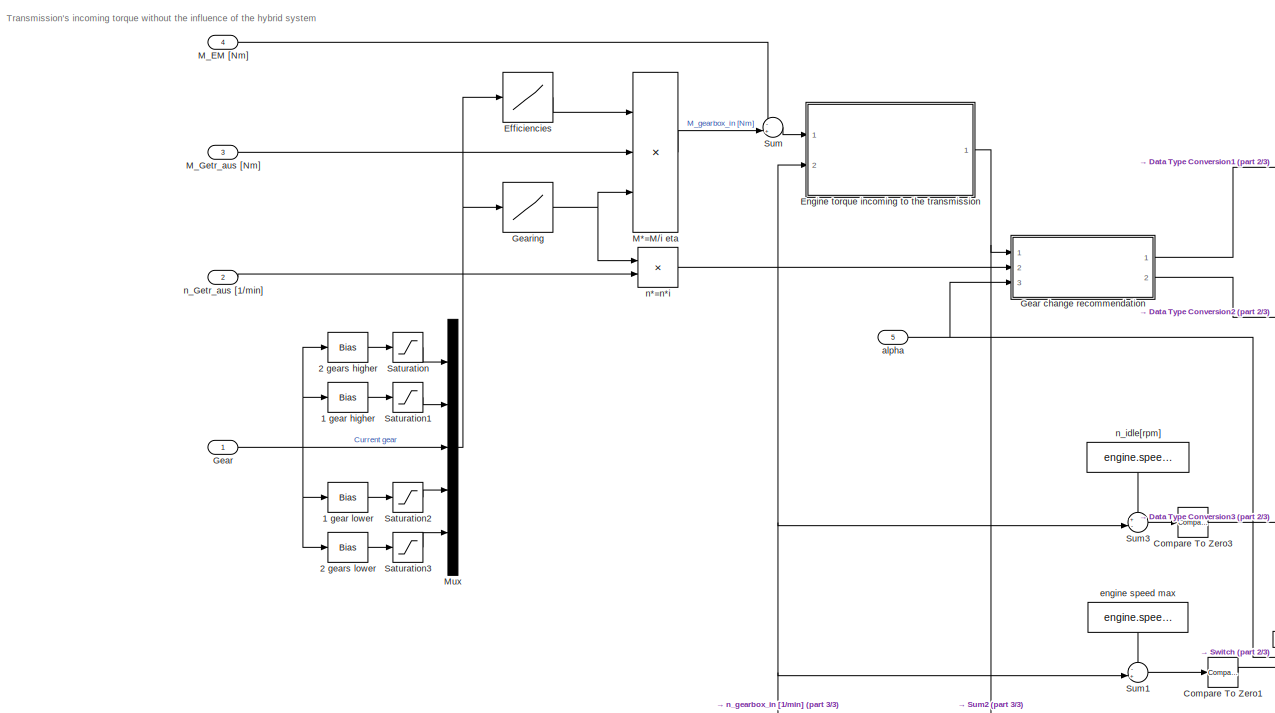
[diagram: Transmission/Determine when shifting occurs - part 1/3, top center region]
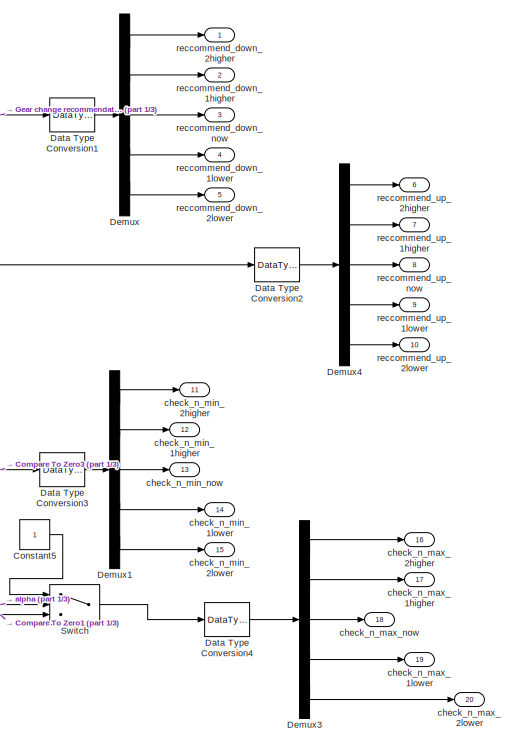
[diagram: Transmission/Determine when shifting occurs - part 2/3, top right region]
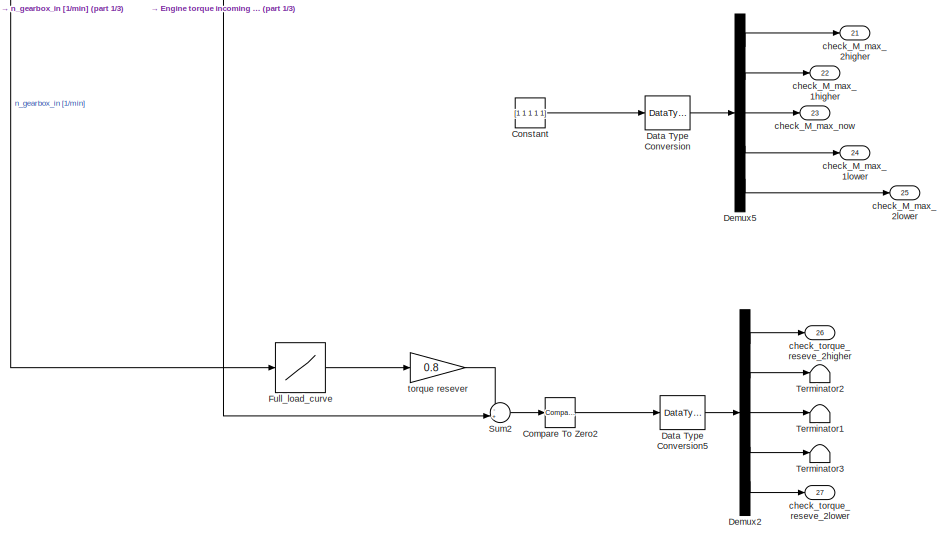
[diagram: Transmission/Determine when shifting occurs - part 3/3, bottom right region]
BLOCK [SubSystem] Transmission/Determine when shifting occurs
  Ports = [5, 27]
  RequestExecContextInheritance = off
  TreatAsAtomicUnit = on
BLOCK [Bias] Transmission/Determine when shifting occurs/1 gear higher
  Bias = 1
  SaturateOnIntegerOverflow = off
BLOCK [Bias] Transmission/Determine when shifting occurs/1 gear lower
  Bias = -1
  SaturateOnIntegerOverflow = off
BLOCK [Bias] Transmission/Determine when shifting occurs/2 gears higher
  Bias = 2
  SaturateOnIntegerOverflow = off
BLOCK [Bias] Transmission/Determine when shifting occurs/2 gears lower
  Bias = -2
  SaturateOnIntegerOverflow = off
BLOCK [Reference] Transmission/Determine when shifting occurs/Compare To Zero1  REF=simulink/Logic and Bit
Operations/Compare
To Zero
  Ports = [1, 1]
  SourceBlock = simulink/Logic and Bit\nOperations/Compare\nTo Zero
  SourceProductBaseCode = SL
  SourceProductName = Simulink
  SourceType = Compare To Zero
BLOCK [Reference] Transmission/Determine when shifting occurs/Compare To Zero2  REF=simulink/Logic and Bit
Operations/Compare
To Zero
  Ports = [1, 1]
  SourceBlock = simulink/Logic and Bit\nOperations/Compare\nTo Zero
  SourceProductBaseCode = SL
  SourceProductName = Simulink
  SourceType = Compare To Zero
BLOCK [Reference] Transmission/Determine when shifting occurs/Compare To Zero3  REF=simulink/Logic and Bit
Operations/Compare
To Zero
  Ports = [1, 1]
  SourceBlock = simulink/Logic and Bit\nOperations/Compare\nTo Zero
  SourceProductBaseCode = SL
  SourceProductName = Simulink
  SourceType = Compare To Zero
BLOCK [Constant] Transmission/Determine when shifting occurs/Constant
  Value = [1 1 1 1 1]
BLOCK [Constant] Transmission/Determine when shifting occurs/Constant5
BLOCK [DataTypeConversion] Transmission/Determine when shifting occurs/Data Type Conversion
  RndMeth = Floor
  SaturateOnIntegerOverflow = off
BLOCK [DataTypeConversion] Transmission/Determine when shifting occurs/Data Type Conversion1
  RndMeth = Floor
  SaturateOnIntegerOverflow = off
BLOCK [DataTypeConversion] Transmission/Determine when shifting occurs/Data Type Conversion2
  RndMeth = Floor
  SaturateOnIntegerOverflow = off
BLOCK [DataTypeConversion] Transmission/Determine when shifting occurs/Data Type Conversion3
  RndMeth = Floor
  SaturateOnIntegerOverflow = off
BLOCK [DataTypeConversion] Transmission/Determine when shifting occurs/Data Type Conversion4
  RndMeth = Floor
  SaturateOnIntegerOverflow = off
BLOCK [DataTypeConversion] Transmission/Determine when shifting occurs/Data Type Conversion5
  RndMeth = Floor
  SaturateOnIntegerOverflow = off
BLOCK [Demux] Transmission/Determine when shifting occurs/Demux
  DisplayOption = bar
  Outputs = 5
  Ports = [1, 5]
BLOCK [Demux] Transmission/Determine when shifting occurs/Demux1
  DisplayOption = bar
  Outputs = 5
  Ports = [1, 5]
BLOCK [Demux] Transmission/Determine when shifting occurs/Demux2
  DisplayOption = bar
  Outputs = 5
  Ports = [1, 5]
BLOCK [Demux] Transmission/Determine when shifting occurs/Demux3
  DisplayOption = bar
  Outputs = 5
  Ports = [1, 5]
BLOCK [Demux] Transmission/Determine when shifting occurs/Demux4
  DisplayOption = bar
  Outputs = 5
  Ports = [1, 5]
BLOCK [Demux] Transmission/Determine when shifting occurs/Demux5
  DisplayOption = bar
  Outputs = 5
  Ports = [1, 5]
BLOCK [Lookup] Transmission/Determine when shifting occurs/Efficiencies
  InputValues = [1:length(transmission.ratios)]
  LookUpMeth = Use Input Nearest
  SaturateOnIntegerOverflow = off
  Table = transmission.trq_eff
BLOCK [SubSystem] Transmission/Determine when shifting occurs/Engine torque incoming to the transmission
  Ports = [2, 1]
  RequestExecContextInheritance = off
BLOCK [Gain] Transmission/Determine when shifting occurs/Engine torque incoming to the transmission/1//min -> 1//s
  Gain = 1/60
  OutDataTypeStr = Inherit: Inherit via internal rule
  ParamDataTypeStr = Inherit: Inherit via internal rule
  SaturateOnIntegerOverflow = off
BLOCK [Constant] Transmission/Determine when shifting occurs/Engine torque incoming to the transmission/2*pi
  Value = 2*pi
BLOCK [Constant] Transmission/Determine when shifting occurs/Engine torque incoming to the transmission/Constant1
  Value = auxiliary_consumers.power
BLOCK [Sum] Transmission/Determine when shifting occurs/Engine torque incoming to the transmission/M_ICE - M_aux
  InputSameDT = off
  OutDataTypeStr = Inherit: Inherit via internal rule
  Ports = [2, 1]
  SaturateOnIntegerOverflow = off
BLOCK [Inport] Transmission/Determine when shifting occurs/Engine torque incoming to the transmission/M_aftr_aux [Nm]
  IconDisplay = Port number
BLOCK [Outport] Transmission/Determine when shifting occurs/Engine torque incoming to the transmission/M_bfor_aux [Nm]
  IconDisplay = Port number
  VectorParamsAs1DForOutWhenUnconnected = off
BLOCK [Product] Transmission/Determine when shifting occurs/Engine torque incoming to the transmission/Product1
  InputSameDT = off
  Inputs = *//
  OutDataTypeStr = Inherit: Inherit via internal rule
  Ports = [3, 1]
  SaturateOnIntegerOverflow = off
BLOCK [Saturate] Transmission/Determine when shifting occurs/Engine torque incoming to the transmission/Saturation
  InputPortMap = u0
  LowerLimit = 0.001
  Ports = [1, 1]
  UpperLimit = inf
BLOCK [Inport] Transmission/Determine when shifting occurs/Engine torque incoming to the transmission/n_ICE [rpm]
  IconDisplay = Port number
  Port = 2
BLOCK [Lookup] Transmission/Determine when shifting occurs/Full_load_curve 
  InputValues = engine.full_load.speed
  LookUpMeth = Interpolation-Use End Values
  SaturateOnIntegerOverflow = off
  Table = engine.full_load.trq
BLOCK [Inport] Transmission/Determine when shifting occurs/Gear
  IconDisplay = Port number
BLOCK [SubSystem] Transmission/Determine when shifting occurs/Gear change recommendation
  Ports = [3, 2]
  RequestExecContextInheritance = off
BLOCK [Constant] Transmission/Determine when shifting occurs/Gear change recommendation/Constant
  Value = engine.shift_parameter.n1
BLOCK [Constant] Transmission/Determine when shifting occurs/Gear change recommendation/Constant1
  Value = engine.shift_parameter.n3
BLOCK [Constant] Transmission/Determine when shifting occurs/Gear change recommendation/Constant2
  Value = engine.shift_parameter.n2
BLOCK [Constant] Transmission/Determine when shifting occurs/Gear change recommendation/Constant3
  Value = engine.shift_parameter.n6
BLOCK [Constant] Transmission/Determine when shifting occurs/Gear change recommendation/Constant4
  Value = engine.shift_parameter.n5
BLOCK [Constant] Transmission/Determine when shifting occurs/Gear change recommendation/Constant5
  Value = 0
BLOCK [Inport] Transmission/Determine when shifting occurs/Gear change recommendation/M_ICE [Nm]
  IconDisplay = Port number
BLOCK [Constant] Transmission/Determine when shifting occurs/Gear change recommendation/M_max [Nm]
  Value = engine.shift_parameter.M_max
BLOCK [Switch] Transmission/Determine when shifting occurs/Gear change recommendation/Switch
  Criteria = u2 > Threshold
  InputSameDT = off
  SaturateOnIntegerOverflow = off
  Threshold = 0.06
BLOCK [Inport] Transmission/Determine when shifting occurs/Gear change recommendation/alpha
  IconDisplay = Port number
  Port = 3
BLOCK [Inport] Transmission/Determine when shifting occurs/Gear change recommendation/n_ICE [rpm]
  IconDisplay = Port number
  Port = 2
BLOCK [Outport] Transmission/Determine when shifting occurs/Gear change recommendation/recommend_down
  IconDisplay = Port number
  VectorParamsAs1DForOutWhenUnconnected = off
BLOCK [SubSystem] Transmission/Determine when shifting occurs/Gear change recommendation/recommend_down_calcbsfc
  Ports = [6, 1]
  RequestExecContextInheritance = off
BLOCK [Reference] Transmission/Determine when shifting occurs/Gear change recommendation/recommend_down_calcbsfc/Compare To Zero2  REF=simulink/Logic and Bit
Operations/Compare
To Zero
  Ports = [1, 1]
  SourceBlock = simulink/Logic and Bit\nOperations/Compare\nTo Zero
  SourceProductBaseCode = SL
  SourceProductName = Simulink
  SourceType = Compare To Zero
BLOCK [Reference] Transmission/Determine when shifting occurs/Gear change recommendation/recommend_down_calcbsfc/Compare To Zero3  REF=simulink/Logic and Bit
Operations/Compare
To Zero
  Ports = [1, 1]
  SourceBlock = simulink/Logic and Bit\nOperations/Compare\nTo Zero
  SourceProductBaseCode = SL
  SourceProductName = Simulink
  SourceType = Compare To Zero
BLOCK [Inport] Transmission/Determine when shifting occurs/Gear change recommendation/recommend_down_calcbsfc/M
  IconDisplay = Port number
  Port = 2
BLOCK [SubSystem] Transmission/Determine when shifting occurs/Gear change recommendation/recommend_down_calcbsfc/MATLAB Function
  ErrorFcn = Stateflow.Translate.translate
  PermitHierarchicalResolution = ExplicitOnly
  Ports = [4, 1]
  RequestExecContextInheritance = off
  SFBlockType = MATLAB Function
  TreatAsAtomicUnit = on
BLOCK [Demux] Transmission/Determine when shifting occurs/Gear change recommendation/recommend_down_calcbsfc/MATLAB Function/ Demux 
  Outputs = 1
  Ports = [1, 1]
BLOCK [S-Function] Transmission/Determine when shifting occurs/Gear change recommendation/recommend_down_calcbsfc/MATLAB Function/ SFunction 
  EnableBusSupport = on
  FunctionName = sf_sfun
  PortCounts = [4 2]
  Ports = [4, 2]
  SFcnIsStateOwnerBlock = off
  SFunctionDeploymentMode = off
  Tag = Stateflow S-Function 4
BLOCK [Terminator] Transmission/Determine when shifting occurs/Gear change recommendation/recommend_down_calcbsfc/MATLAB Function/ Terminator 
BLOCK [Inport] Transmission/Determine when shifting occurs/Gear change recommendation/recommend_down_calcbsfc/MATLAB Function/M_max
  IconDisplay = Port number
  Port = 2
BLOCK [Outport] Transmission/Determine when shifting occurs/Gear change recommendation/recommend_down_calcbsfc/MATLAB Function/g_1
  IconDisplay = Port number
  VectorParamsAs1DForOutWhenUnconnected = off
BLOCK [Inport] Transmission/Determine when shifting occurs/Gear change recommendation/recommend_down_calcbsfc/MATLAB Function/n
  IconDisplay = Port number
BLOCK [Inport] Transmission/Determine when shifting occurs/Gear change recommendation/recommend_down_calcbsfc/MATLAB Function/n_1
  IconDisplay = Port number
  Port = 3
BLOCK [Inport] Transmission/Determine when shifting occurs/Gear change recommendation/recommend_down_calcbsfc/MATLAB Function/n_3
  IconDisplay = Port number
  Port = 4
BLOCK [Inport] Transmission/Determine when shifting occurs/Gear change recommendation/recommend_down_calcbsfc/M_max [Nm]
  IconDisplay = Port number
  Port = 6
BLOCK [Outport] Transmission/Determine when shifting occurs/Gear change recommendation/recommend_down_calcbsfc/Out1
  IconDisplay = Port number
  VectorParamsAs1DForOutWhenUnconnected = off
BLOCK [Sum] Transmission/Determine when shifting occurs/Gear change recommendation/recommend_down_calcbsfc/Sum1
  IconShape = round
  InputSameDT = off
  Inputs = +-|
  OutDataTypeStr = Inherit: Inherit via internal rule
  Ports = [2, 1]
  SaturateOnIntegerOverflow = off
BLOCK [Sum] Transmission/Determine when shifting occurs/Gear change recommendation/recommend_down_calcbsfc/Sum2
  IconShape = round
  InputSameDT = off
  Inputs = -+|
  OutDataTypeStr = Inherit: Inherit via internal rule
  Ports = [2, 1]
  SaturateOnIntegerOverflow = off
BLOCK [Logic] Transmission/Determine when shifting occurs/Gear change recommendation/recommend_down_calcbsfc/logic2
  AllPortsSameDT = off
  Operator = OR
  OutDataTypeStr = boolean
  Ports = [2, 1]
BLOCK [Inport] Transmission/Determine when shifting occurs/Gear change recommendation/recommend_down_calcbsfc/n
  IconDisplay = Port number
BLOCK [Inport] Transmission/Determine when shifting occurs/Gear change recommendation/recommend_down_calcbsfc/n_1
  IconDisplay = Port number
  Port = 3
BLOCK [Inport] Transmission/Determine when shifting occurs/Gear change recommendation/recommend_down_calcbsfc/n_2
  IconDisplay = Port number
  Port = 5
BLOCK [Inport] Transmission/Determine when shifting occurs/Gear change recommendation/recommend_down_calcbsfc/n_3
  IconDisplay = Port number
  Port = 4
BLOCK [Outport] Transmission/Determine when shifting occurs/Gear change recommendation/recommend_up
  IconDisplay = Port number
  Port = 2
  VectorParamsAs1DForOutWhenUnconnected = off
BLOCK [SubSystem] Transmission/Determine when shifting occurs/Gear change recommendation/recommend_up_calc_bsfc
  Ports = [6, 1]
  RequestExecContextInheritance = off
BLOCK [Reference] Transmission/Determine when shifting occurs/Gear change recommendation/recommend_up_calc_bsfc/Compare To Zero  REF=simulink/Logic and Bit
Operations/Compare
To Zero
  Ports = [1, 1]
  SourceBlock = simulink/Logic and Bit\nOperations/Compare\nTo Zero
  SourceProductBaseCode = SL
  SourceProductName = Simulink
  SourceType = Compare To Zero
BLOCK [Reference] Transmission/Determine when shifting occurs/Gear change recommendation/recommend_up_calc_bsfc/Compare To Zero1  REF=simulink/Logic and Bit
Operations/Compare
To Zero
  Ports = [1, 1]
  SourceBlock = simulink/Logic and Bit\nOperations/Compare\nTo Zero
  SourceProductBaseCode = SL
  SourceProductName = Simulink
  SourceType = Compare To Zero
BLOCK [Inport] Transmission/Determine when shifting occurs/Gear change recommendation/recommend_up_calc_bsfc/M
  IconDisplay = Port number
BLOCK [SubSystem] Transmission/Determine when shifting occurs/Gear change recommendation/recommend_up_calc_bsfc/MATLAB Function1
  ErrorFcn = Stateflow.Translate.translate
  PermitHierarchicalResolution = ExplicitOnly
  Ports = [4, 1]
  RequestExecContextInheritance = off
  SFBlockType = MATLAB Function
  TreatAsAtomicUnit = on
BLOCK [Demux] Transmission/Determine when shifting occurs/Gear change recommendation/recommend_up_calc_bsfc/MATLAB Function1/ Demux 
  Outputs = 1
  Ports = [1, 1]
BLOCK [S-Function] Transmission/Determine when shifting occurs/Gear change recommendation/recommend_up_calc_bsfc/MATLAB Function1/ SFunction 
  EnableBusSupport = on
  FunctionName = sf_sfun
  PortCounts = [4 2]
  Ports = [4, 2]
  SFcnIsStateOwnerBlock = off
  SFunctionDeploymentMode = off
  Tag = Stateflow S-Function 5
BLOCK [Terminator] Transmission/Determine when shifting occurs/Gear change recommendation/recommend_up_calc_bsfc/MATLAB Function1/ Terminator 
BLOCK [Inport] Transmission/Determine when shifting occurs/Gear change recommendation/recommend_up_calc_bsfc/MATLAB Function1/M_max
  IconDisplay = Port number
  Port = 2
BLOCK [Outport] Transmission/Determine when shifting occurs/Gear change recommendation/recommend_up_calc_bsfc/MATLAB Function1/g_2
  IconDisplay = Port number
  VectorParamsAs1DForOutWhenUnconnected = off
BLOCK [Inport] Transmission/Determine when shifting occurs/Gear change recommendation/recommend_up_calc_bsfc/MATLAB Function1/n
  IconDisplay = Port number
BLOCK [Inport] Transmission/Determine when shifting occurs/Gear change recommendation/recommend_up_calc_bsfc/MATLAB Function1/n_2
  IconDisplay = Port number
  Port = 4
BLOCK [Inport] Transmission/Determine when shifting occurs/Gear change recommendation/recommend_up_calc_bsfc/MATLAB Function1/n_6
  IconDisplay = Port number
  Port = 3
BLOCK [Inport] Transmission/Determine when shifting occurs/Gear change recommendation/recommend_up_calc_bsfc/M_max [Nm]
  IconDisplay = Port number
  Port = 6
BLOCK [Sum] Transmission/Determine when shifting occurs/Gear change recommendation/recommend_up_calc_bsfc/Sum1
  IconShape = round
  InputSameDT = off
  Inputs = -+|
  OutDataTypeStr = Inherit: Inherit via internal rule
  Ports = [2, 1]
  SaturateOnIntegerOverflow = off
BLOCK [Sum] Transmission/Determine when shifting occurs/Gear change recommendation/recommend_up_calc_bsfc/Sum2
  IconShape = round
  InputSameDT = off
  Inputs = +-|
  OutDataTypeStr = Inherit: Inherit via internal rule
  Ports = [2, 1]
  SaturateOnIntegerOverflow = off
BLOCK [Logic] Transmission/Determine when shifting occurs/Gear change recommendation/recommend_up_calc_bsfc/logic
  AllPortsSameDT = off
  OutDataTypeStr = boolean
  Ports = [2, 1]
BLOCK [Inport] Transmission/Determine when shifting occurs/Gear change recommendation/recommend_up_calc_bsfc/n
  IconDisplay = Port number
  Port = 5
BLOCK [Inport] Transmission/Determine when shifting occurs/Gear change recommendation/recommend_up_calc_bsfc/n_2
  IconDisplay = Port number
  Port = 3
BLOCK [Inport] Transmission/Determine when shifting occurs/Gear change recommendation/recommend_up_calc_bsfc/n_5
  IconDisplay = Port number
  Port = 4
BLOCK [Inport] Transmission/Determine when shifting occurs/Gear change recommendation/recommend_up_calc_bsfc/n_6
  IconDisplay = Port number
  Port = 2
BLOCK [Outport] Transmission/Determine when shifting occurs/Gear change recommendation/recommend_up_calc_bsfc/recommend_up
  IconDisplay = Port number
  VectorParamsAs1DForOutWhenUnconnected = off
BLOCK [Lookup] Transmission/Determine when shifting occurs/Gearing
  InputValues = [1:length(transmission.ratios)]
  LookUpMeth = Use Input Nearest
  SaturateOnIntegerOverflow = off
  Table = transmission.ratios
BLOCK [Product] Transmission/Determine when shifting occurs/M*=M//i eta
  InputSameDT = off
  Inputs = /*/
  OutDataTypeStr = Inherit: Inherit via internal rule
  Ports = [3, 1]
  RndMeth = Floor
  SaturateOnIntegerOverflow = off
BLOCK [Inport] Transmission/Determine when shifting occurs/M_EM [Nm]
  IconDisplay = Port number
  Port = 4
BLOCK [Inport] Transmission/Determine when shifting occurs/M_Getr_aus [Nm]
  IconDisplay = Port number
  Port = 3
BLOCK [Mux] Transmission/Determine when shifting occurs/Mux
  DisplayOption = bar
  Inputs = 5
  Ports = [5, 1]
BLOCK [Saturate] Transmission/Determine when shifting occurs/Saturation
  InputPortMap = u0
  LowerLimit = 0
  Ports = [1, 1]
  UpperLimit = length(transmission.ratios)
BLOCK [Saturate] Transmission/Determine when shifting occurs/Saturation1
  InputPortMap = u0
  LowerLimit = 0
  Ports = [1, 1]
  UpperLimit = length(transmission.ratios)
BLOCK [Saturate] Transmission/Determine when shifting occurs/Saturation2
  InputPortMap = u0
  LowerLimit = 0
  Ports = [1, 1]
  UpperLimit = length(transmission.ratios)
BLOCK [Saturate] Transmission/Determine when shifting occurs/Saturation3
  InputPortMap = u0
  LowerLimit = 0
  Ports = [1, 1]
  UpperLimit = length(transmission.ratios)
BLOCK [Sum] Transmission/Determine when shifting occurs/Sum
  IconShape = round
  InputSameDT = off
  Inputs = -+
  OutDataTypeStr = Inherit: Inherit via internal rule
  Ports = [2, 1]
  SaturateOnIntegerOverflow = off
BLOCK [Sum] Transmission/Determine when shifting occurs/Sum1
  IconShape = round
  InputSameDT = off
  Inputs = -+|
  OutDataTypeStr = Inherit: Inherit via internal rule
  Ports = [2, 1]
  SaturateOnIntegerOverflow = off
BLOCK [Sum] Transmission/Determine when shifting occurs/Sum2
  IconShape = round
  InputSameDT = off
  Inputs = -+|
  OutDataTypeStr = Inherit: Inherit via internal rule
  Ports = [2, 1]
  SaturateOnIntegerOverflow = off
BLOCK [Sum] Transmission/Determine when shifting occurs/Sum3
  IconShape = round
  InputSameDT = off
  Inputs = +-|
  OutDataTypeStr = Inherit: Inherit via internal rule
  Ports = [2, 1]
  SaturateOnIntegerOverflow = off
BLOCK [Switch] Transmission/Determine when shifting occurs/Switch
  Criteria = u2 > Threshold
  InputSameDT = off
  SaturateOnIntegerOverflow = off
  Threshold = 0.06
BLOCK [Terminator] Transmission/Determine when shifting occurs/Terminator1
BLOCK [Terminator] Transmission/Determine when shifting occurs/Terminator2
BLOCK [Terminator] Transmission/Determine when shifting occurs/Terminator3
BLOCK [Inport] Transmission/Determine when shifting occurs/alpha
  IconDisplay = Port number
  Port = 5
BLOCK [Outport] Transmission/Determine when shifting occurs/check_M_max_1higher
  IconDisplay = Port number
  Port = 22
  VectorParamsAs1DForOutWhenUnconnected = off
BLOCK [Outport] Transmission/Determine when shifting occurs/check_M_max_1lower
  IconDisplay = Port number
  Port = 24
  VectorParamsAs1DForOutWhenUnconnected = off
BLOCK [Outport] Transmission/Determine when shifting occurs/check_M_max_2higher
  IconDisplay = Port number
  Port = 21
  VectorParamsAs1DForOutWhenUnconnected = off
BLOCK [Outport] Transmission/Determine when shifting occurs/check_M_max_2lower
  IconDisplay = Port number
  Port = 25
  VectorParamsAs1DForOutWhenUnconnected = off
BLOCK [Outport] Transmission/Determine when shifting occurs/check_M_max_now
  IconDisplay = Port number
  Port = 23
  VectorParamsAs1DForOutWhenUnconnected = off
BLOCK [Outport] Transmission/Determine when shifting occurs/check_n_max_1higher
  IconDisplay = Port number
  Port = 17
  VectorParamsAs1DForOutWhenUnconnected = off
BLOCK [Outport] Transmission/Determine when shifting occurs/check_n_max_1lower
  IconDisplay = Port number
  Port = 19
  VectorParamsAs1DForOutWhenUnconnected = off
BLOCK [Outport] Transmission/Determine when shifting occurs/check_n_max_2higher
  IconDisplay = Port number
  Port = 16
  VectorParamsAs1DForOutWhenUnconnected = off
BLOCK [Outport] Transmission/Determine when shifting occurs/check_n_max_2lower
  IconDisplay = Port number
  Port = 20
  VectorParamsAs1DForOutWhenUnconnected = off
BLOCK [Outport] Transmission/Determine when shifting occurs/check_n_max_now
  IconDisplay = Port number
  Port = 18
  VectorParamsAs1DForOutWhenUnconnected = off
BLOCK [Outport] Transmission/Determine when shifting occurs/check_n_min_1higher
  IconDisplay = Port number
  Port = 12
  VectorParamsAs1DForOutWhenUnconnected = off
BLOCK [Outport] Transmission/Determine when shifting occurs/check_n_min_1lower
  IconDisplay = Port number
  Port = 14
  VectorParamsAs1DForOutWhenUnconnected = off
BLOCK [Outport] Transmission/Determine when shifting occurs/check_n_min_2higher
  IconDisplay = Port number
  Port = 11
  VectorParamsAs1DForOutWhenUnconnected = off
BLOCK [Outport] Transmission/Determine when shifting occurs/check_n_min_2lower
  IconDisplay = Port number
  Port = 15
  VectorParamsAs1DForOutWhenUnconnected = off
BLOCK [Outport] Transmission/Determine when shifting occurs/check_n_min_now
  IconDisplay = Port number
  Port = 13
  VectorParamsAs1DForOutWhenUnconnected = off
BLOCK [Outport] Transmission/Determine when shifting occurs/check_torque_reseve_2higher
  IconDisplay = Port number
  Port = 26
  VectorParamsAs1DForOutWhenUnconnected = off
BLOCK [Outport] Transmission/Determine when shifting occurs/check_torque_reseve_2lower
  IconDisplay = Port number
  Port = 27
  VectorParamsAs1DForOutWhenUnconnected = off
BLOCK [Constant] Transmission/Determine when shifting occurs/engine speed max
  Value = engine.speed_max
BLOCK [Product] Transmission/Determine when shifting occurs/n*=n*i
  InputSameDT = off
  Inputs = **
  OutDataTypeStr = Inherit: Inherit via internal rule
  Ports = [2, 1]
  RndMeth = Floor
  SaturateOnIntegerOverflow = off
BLOCK [Inport] Transmission/Determine when shifting occurs/n_Getr_aus [1//min]
  IconDisplay = Port number
  Port = 2
BLOCK [Constant] Transmission/Determine when shifting occurs/n_idle[rpm]
  Value = engine.speed_min
BLOCK [Outport] Transmission/Determine when shifting occurs/reccommend_down_1higher
  IconDisplay = Port number
  Port = 2
  VectorParamsAs1DForOutWhenUnconnected = off
BLOCK [Outport] Transmission/Determine when shifting occurs/reccommend_down_1lower
  IconDisplay = Port number
  Port = 4
  VectorParamsAs1DForOutWhenUnconnected = off
BLOCK [Outport] Transmission/Determine when shifting occurs/reccommend_down_2higher
  IconDisplay = Port number
  VectorParamsAs1DForOutWhenUnconnected = off
BLOCK [Outport] Transmission/Determine when shifting occurs/reccommend_down_2lower
  IconDisplay = Port number
  Port = 5
  VectorParamsAs1DForOutWhenUnconnected = off
BLOCK [Outport] Transmission/Determine when shifting occurs/reccommend_down_now
  IconDisplay = Port number
  Port = 3
  VectorParamsAs1DForOutWhenUnconnected = off
BLOCK [Outport] Transmission/Determine when shifting occurs/reccommend_up_1higher
  IconDisplay = Port number
  Port = 7
  VectorParamsAs1DForOutWhenUnconnected = off
BLOCK [Outport] Transmission/Determine when shifting occurs/reccommend_up_1lower
  IconDisplay = Port number
  Port = 9
  VectorParamsAs1DForOutWhenUnconnected = off
BLOCK [Outport] Transmission/Determine when shifting occurs/reccommend_up_2higher
  IconDisplay = Port number
  Port = 6
  VectorParamsAs1DForOutWhenUnconnected = off
BLOCK [Outport] Transmission/Determine when shifting occurs/reccommend_up_2lower
  IconDisplay = Port number
  Port = 10
  VectorParamsAs1DForOutWhenUnconnected = off
BLOCK [Outport] Transmission/Determine when shifting occurs/reccommend_up_now
  IconDisplay = Port number
  Port = 8
  VectorParamsAs1DForOutWhenUnconnected = off
BLOCK [Gain] Transmission/Determine when shifting occurs/torque resever
  Gain = 0.8
  OutDataTypeStr = Inherit: Inherit via internal rule
  ParamDataTypeStr = Inherit: Inherit via internal rule
  SaturateOnIntegerOverflow = off
BLOCK [From] Transmission/From
  GotoTag = gear
BLOCK [From] Transmission/From2
  GotoTag = M_gear_out
BLOCK [From] Transmission/From3
  GotoTag = Gear
BLOCK [Goto] Transmission/Goto1
  GotoTag = recommend_DOWN_now
  TagVisibility = global
BLOCK [Goto] Transmission/Goto2
  GotoTag = gear
  TagVisibility = global
BLOCK [Goto] Transmission/Goto3
  GotoTag = recommend_UP_now
  TagVisibility = global
BLOCK [Goto] Transmission/Goto4
  GotoTag = gear
BLOCK [Goto] Transmission/Goto5
  GotoTag = M_gear_out
BLOCK [Goto] Transmission/Goto6
  GotoTag = Gear
BLOCK [Inport] Transmission/M_EM [Nm]
  IconDisplay = Port number
BLOCK [Outport] Transmission/M_Gearbox [Nm]
  IconDisplay = Port number
  Port = 2
  VectorParamsAs1DForOutWhenUnconnected = off
BLOCK [Inport] Transmission/M_clutch_dis [Nm]
  IconDisplay = Port number
  Port = 2
BLOCK [Memory] Transmission/Memory1
BLOCK [Constant] Transmission/Number of gears
  Value = length(transmission.ratios)
BLOCK [Saturate] Transmission/Saturation
  InputPortMap = u0
  LowerLimit = 0
  Ports = [1, 1]
  UpperLimit = 2000
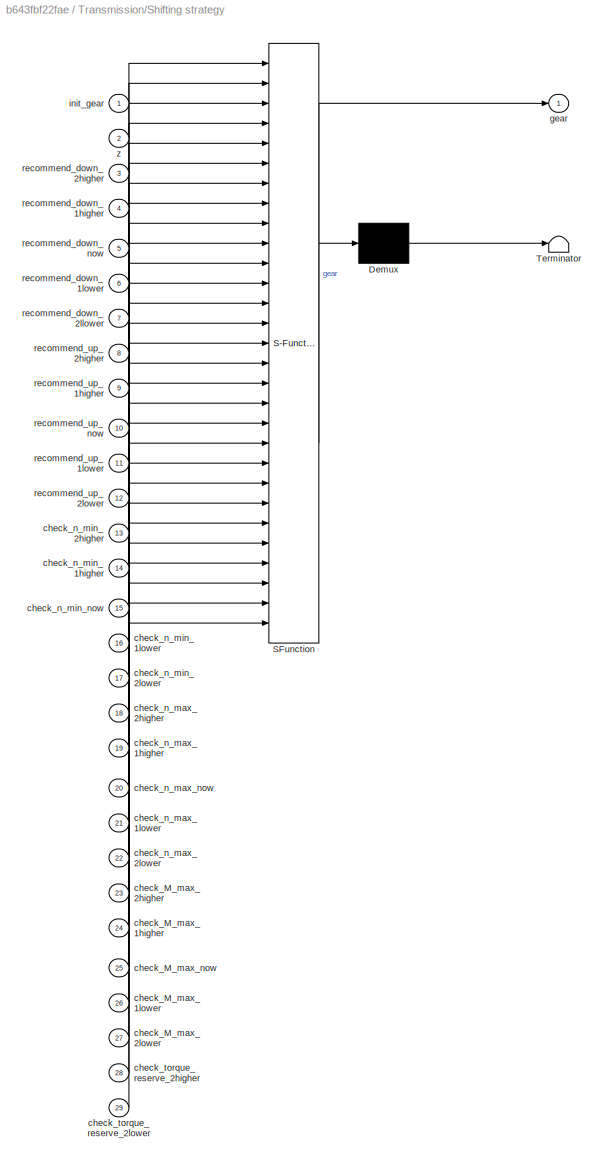
BLOCK [SubSystem] Transmission/Shifting strategy
  ErrorFcn = Stateflow.Translate.translate
  PermitHierarchicalResolution = ExplicitOnly
  Ports = [29, 1]
  RequestExecContextInheritance = off
  SFBlockType = Chart
  TreatAsAtomicUnit = on
BLOCK [Demux] Transmission/Shifting strategy/ Demux 
  Outputs = 1
  Ports = [1, 1]
BLOCK [S-Function] Transmission/Shifting strategy/ SFunction 
  EnableBusSupport = on
  FunctionName = sf_sfun
  PortCounts = [29 2]
  Ports = [29, 2]
  SFcnIsStateOwnerBlock = off
  SFunctionDeploymentMode = off
  Tag = Stateflow S-Function 3
BLOCK [Terminator] Transmission/Shifting strategy/ Terminator 
BLOCK [Inport] Transmission/Shifting strategy/check_M_max_1higher
  IconDisplay = Port number
  Port = 24
BLOCK [Inport] Transmission/Shifting strategy/check_M_max_1lower
  IconDisplay = Port number
  Port = 26
BLOCK [Inport] Transmission/Shifting strategy/check_M_max_2higher
  IconDisplay = Port number
  Port = 23
BLOCK [Inport] Transmission/Shifting strategy/check_M_max_2lower
  IconDisplay = Port number
  Port = 27
BLOCK [Inport] Transmission/Shifting strategy/check_M_max_now
  IconDisplay = Port number
  Port = 25
BLOCK [Inport] Transmission/Shifting strategy/check_n_max_1higher
  IconDisplay = Port number
  Port = 19
BLOCK [Inport] Transmission/Shifting strategy/check_n_max_1lower
  IconDisplay = Port number
  Port = 21
BLOCK [Inport] Transmission/Shifting strategy/check_n_max_2higher
  IconDisplay = Port number
  Port = 18
BLOCK [Inport] Transmission/Shifting strategy/check_n_max_2lower
  IconDisplay = Port number
  Port = 22
BLOCK [Inport] Transmission/Shifting strategy/check_n_max_now
  IconDisplay = Port number
  Port = 20
BLOCK [Inport] Transmission/Shifting strategy/check_n_min_1higher
  IconDisplay = Port number
  Port = 14
BLOCK [Inport] Transmission/Shifting strategy/check_n_min_1lower
  IconDisplay = Port number
  Port = 16
BLOCK [Inport] Transmission/Shifting strategy/check_n_min_2higher
  IconDisplay = Port number
  Port = 13
BLOCK [Inport] Transmission/Shifting strategy/check_n_min_2lower
  IconDisplay = Port number
  Port = 17
BLOCK [Inport] Transmission/Shifting strategy/check_n_min_now
  IconDisplay = Port number
  Port = 15
BLOCK [Inport] Transmission/Shifting strategy/check_torque_reserve_2higher
  IconDisplay = Port number
  Port = 28
BLOCK [Inport] Transmission/Shifting strategy/check_torque_reserve_2lower
  IconDisplay = Port number
  Port = 29
BLOCK [Outport] Transmission/Shifting strategy/gear
  IconDisplay = Port number
  VectorParamsAs1DForOutWhenUnconnected = off
BLOCK [Inport] Transmission/Shifting strategy/init_gear
  IconDisplay = Port number
BLOCK [Inport] Transmission/Shifting strategy/recommend_down_1higher
  IconDisplay = Port number
  Port = 4
BLOCK [Inport] Transmission/Shifting strategy/recommend_down_1lower
  IconDisplay = Port number
  Port = 6
BLOCK [Inport] Transmission/Shifting strategy/recommend_down_2higher
  IconDisplay = Port number
  Port = 3
BLOCK [Inport] Transmission/Shifting strategy/recommend_down_2llower
  IconDisplay = Port number
  Port = 7
BLOCK [Inport] Transmission/Shifting strategy/recommend_down_now
  IconDisplay = Port number
  Port = 5
BLOCK [Inport] Transmission/Shifting strategy/recommend_up_1higher
  IconDisplay = Port number
  Port = 9
BLOCK [Inport] Transmission/Shifting strategy/recommend_up_1lower
  IconDisplay = Port number
  Port = 11
BLOCK [Inport] Transmission/Shifting strategy/recommend_up_2higher
  IconDisplay = Port number
  Port = 8
BLOCK [Inport] Transmission/Shifting strategy/recommend_up_2lower
  IconDisplay = Port number
  Port = 12
BLOCK [Inport] Transmission/Shifting strategy/recommend_up_now
  IconDisplay = Port number
  Port = 10
BLOCK [Inport] Transmission/Shifting strategy/z
  IconDisplay = Port number
  Port = 2
BLOCK [Sum] Transmission/Sum
  IconShape = round
  InputSameDT = off
  OutDataTypeStr = Inherit: Inherit via internal rule
  Ports = [2, 1]
  SaturateOnIntegerOverflow = off
BLOCK [SubSystem] Transmission/Torque flow through the transmission
  Ports = [3, 3]
  RequestExecContextInheritance = off
BLOCK [Product] Transmission/Torque flow through the transmission/Divide
  InputSameDT = off
  Inputs = /
  OutDataTypeStr = Inherit: Inherit via internal rule
  Ports = [1, 1]
  RndMeth = Floor
  SaturateOnIntegerOverflow = off
BLOCK [Lookup] Transmission/Torque flow through the transmission/Efficiencies
  InputValues = [1:length(transmission.ratios)]
  LookUpMeth = Use Input Nearest
  SaturateOnIntegerOverflow = off
  Table = transmission.trq_eff
BLOCK [Inport] Transmission/Torque flow through the transmission/Gear
  IconDisplay = Port number
  Port = 3
BLOCK [Lookup] Transmission/Torque flow through the transmission/Gearing
  InputValues = [1:length(transmission.ratios)]
  LookUpMeth = Use Input Nearest
  SaturateOnIntegerOverflow = off
  Table = transmission.ratios
BLOCK [Goto] Transmission/Torque flow through the transmission/Goto
  GotoTag = lamda
  TagVisibility = global
BLOCK [Goto] Transmission/Torque flow through the transmission/Goto1
  GotoTag = Eta_Gearbox
  TagVisibility = global
BLOCK [Switch] Transmission/Torque flow through the transmission/M_Mot >= 0?
  InputSameDT = off
  SaturateOnIntegerOverflow = off
  ZeroCross = off
BLOCK [Inport] Transmission/Torque flow through the transmission/M_gearbox_in [Nm]
  IconDisplay = Port number
BLOCK [Outport] Transmission/Torque flow through the transmission/M_gearbox_out [Nm]
  IconDisplay = Port number
  Port = 2
  VectorParamsAs1DForOutWhenUnconnected = off
BLOCK [Product] Transmission/Torque flow through the transmission/Product
  InputSameDT = off
  Inputs = ***
  OutDataTypeStr = Inherit: Inherit via internal rule
  Ports = [3, 1]
  SaturateOnIntegerOverflow = off
BLOCK [Lookup] Transmission/Torque flow through the transmission/Rotating mass
  InputValues = [1:length(transmission.ratios)]
  LookUpMeth = Use Input Nearest
  SaturateOnIntegerOverflow = off
  Table = transmission.lamda
BLOCK [Outport] Transmission/Torque flow through the transmission/i_gearbox
  IconDisplay = Port number
  Port = 3
  VectorParamsAs1DForOutWhenUnconnected = off
BLOCK [Product] Transmission/Torque flow through the transmission/n*=n*i
  InputSameDT = off
  Inputs = **
  OutDataTypeStr = Inherit: Inherit via internal rule
  Ports = [2, 1]
  RndMeth = Floor
  SaturateOnIntegerOverflow = off
BLOCK [Outport] Transmission/Torque flow through the transmission/n_gearbox_in [1//min]
  IconDisplay = Port number
  VectorParamsAs1DForOutWhenUnconnected = off
BLOCK [Inport] Transmission/Torque flow through the transmission/n_gearbox_out [1//min]
  IconDisplay = Port number
  Port = 2
BLOCK [SubSystem] Transmission/ZKU
  Ports = [1]
  RequestExecContextInheritance = off
BLOCK [Reference] Transmission/ZKU/Compare  REF=simulink/Logic and Bit
Operations/Compare
To Zero
  Ports = [1, 1]
  SourceBlock = simulink/Logic and Bit\nOperations/Compare\nTo Zero
  SourceProductBaseCode = SL
  SourceProductName = Simulink
  SourceType = Compare To Zero
BLOCK [Constant] Transmission/ZKU/Constant
  Value = -1
BLOCK [Constant] Transmission/ZKU/Constant1
  Value = 0
BLOCK [Constant] Transmission/ZKU/Constant2
  Value = 0
BLOCK [DataTypeConversion] Transmission/ZKU/Data Type Conversion
  RndMeth = Floor
  SaturateOnIntegerOverflow = off
BLOCK [Derivative] Transmission/ZKU/Derivative
BLOCK [From] Transmission/ZKU/From
  GotoTag = E_driving
  TagVisibility = global
BLOCK [Inport] Transmission/ZKU/Gear
  IconDisplay = Port number
BLOCK [Integrator] Transmission/ZKU/Integrator
  ExternalReset = either
  InitialCondition = transmission.shift_time
  Ports = [2, 1]
BLOCK [Goto] Transmission/ZKU/M_Motor -> 0
  GotoTag = ZKU
  TagVisibility = global
BLOCK [ManualSwitch] Transmission/ZKU/Manual Switch
BLOCK [Memory] Transmission/ZKU/Memory
BLOCK [Switch] Transmission/ZKU/Switch
  InputSameDT = off
  SaturateOnIntegerOverflow = off
  Threshold = 1
BLOCK [Inport] Transmission/alpha
  IconDisplay = Port number
  Port = 4
BLOCK [Goto] Transmission/i_Gearbox
  GotoTag = i_gearbox
  TagVisibility = global
BLOCK [Constant] Transmission/init_gear
  Value = transmission.init_gear
BLOCK [Inport] Transmission/n_Gearbox [rpm]
  IconDisplay = Port number
  Port = 3
BLOCK [Outport] Transmission/n_clutch_dis [rpm]
  IconDisplay = Port number
  VectorParamsAs1DForOutWhenUnconnected = off
BLOCK [SubSystem] Vehicle
  Ports = [3, 2]
  RequestExecContextInheritance = off
BLOCK [Sum] Vehicle/Add
  InputSameDT = off
  Inputs = -+-
  OutDataTypeStr = Inherit: Inherit via internal rule
  Ports = [3, 1]
  SaturateOnIntegerOverflow = off
BLOCK [Product] Vehicle/Breaking force [N]
  InputSameDT = off
  OutDataTypeStr = Inherit: Inherit via internal rule
  Ports = [2, 1]
  SaturateOnIntegerOverflow = off
BLOCK [Constant] Vehicle/Cargo weight
  Value = vehicle.payload
BLOCK [SubSystem] Vehicle/Driving resistances without acceleration
  Ports = [2, 1]
  RequestExecContextInheritance = off
BLOCK [Sum] Vehicle/Driving resistances without acceleration/Add
  InputSameDT = off
  Inputs = +++
  OutDataTypeStr = Inherit: Inherit via internal rule
  Ports = [3, 1]
  SaturateOnIntegerOverflow = off
BLOCK [SubSystem] Vehicle/Driving resistances without acceleration/Drag
  Ports = [1, 1]
  RequestExecContextInheritance = off
BLOCK [Constant] Vehicle/Driving resistances without acceleration/Drag/A
  Value = vehicle.frontal_area
BLOCK [Outport] Vehicle/Driving resistances without acceleration/Drag/F_drag [N]
  IconDisplay = Port number
  VectorParamsAs1DForOutWhenUnconnected = off
BLOCK [Product] Vehicle/Driving resistances without acceleration/Drag/Product2
  InputSameDT = off
  Inputs = 4
  OutDataTypeStr = Inherit: Inherit via internal rule
  Ports = [4, 1]
  SaturateOnIntegerOverflow = off
BLOCK [Constant] Vehicle/Driving resistances without acceleration/Drag/c_d
  Value = vehicle.air_drag_coeff
BLOCK [Gain] Vehicle/Driving resistances without acceleration/Drag/gain2
  Gain = 0.5
  OutDataTypeStr = Inherit: Inherit via internal rule
  ParamDataTypeStr = Inherit: Inherit via internal rule
  SaturateOnIntegerOverflow = off
BLOCK [Constant] Vehicle/Driving resistances without acceleration/Drag/rho
  Value = ambient.air_density
BLOCK [Inport] Vehicle/Driving resistances without acceleration/Drag/v [m//s]
  IconDisplay = Port number
BLOCK [Math] Vehicle/Driving resistances without acceleration/Drag/v²
  Operator = square
  Ports = [1, 1]
BLOCK [Outport] Vehicle/Driving resistances without acceleration/F_W [N]
  IconDisplay = Port number
  VectorParamsAs1DForOutWhenUnconnected = off
BLOCK [SubSystem] Vehicle/Driving resistances without acceleration/Gradient resistance
  Ports = [1, 1]
  RequestExecContextInheritance = off
BLOCK [Sum] Vehicle/Driving resistances without acceleration/Gradient resistance/Add
  InputSameDT = off
  OutDataTypeStr = Inherit: Inherit via internal rule
  Ports = [2, 1]
  SaturateOnIntegerOverflow = off
BLOCK [Constant] Vehicle/Driving resistances without acceleration/Gradient resistance/Cargo weight
  Value = vehicle.payload
BLOCK [Outport] Vehicle/Driving resistances without acceleration/Gradient resistance/F_slope [N]
  IconDisplay = Port number
  VectorParamsAs1DForOutWhenUnconnected = off
BLOCK [Product] Vehicle/Driving resistances without acceleration/Gradient resistance/Product7
  InputSameDT = off
  OutDataTypeStr = Inherit: Inherit via internal rule
  Ports = [2, 1]
  SaturateOnIntegerOverflow = off
BLOCK [Trigonometry] Vehicle/Driving resistances without acceleration/Gradient resistance/Trigonometric Function
  Ports = [1, 1]
BLOCK [Constant] Vehicle/Driving resistances without acceleration/Gradient resistance/Vehicle weight
  Value = vehicle.mass
BLOCK [Inport] Vehicle/Driving resistances without acceleration/Gradient resistance/alpha [rad]
  IconDisplay = Port number
BLOCK [Gain] Vehicle/Driving resistances without acceleration/Gradient resistance/g
  Gain = ambient.gravity
  OutDataTypeStr = Inherit: Inherit via internal rule
  ParamDataTypeStr = Inherit: Inherit via internal rule
  SaturateOnIntegerOverflow = off
BLOCK [SubSystem] Vehicle/Driving resistances without acceleration/Rolling resistance
  Ports = [1, 1]
  RequestExecContextInheritance = off
BLOCK [Sum] Vehicle/Driving resistances without acceleration/Rolling resistance/Add1
  InputSameDT = off
  OutDataTypeStr = Inherit: Inherit via internal rule
  Ports = [2, 1]
  SaturateOnIntegerOverflow = off
BLOCK [Constant] Vehicle/Driving resistances without acceleration/Rolling resistance/Cargo weight
  Value = vehicle.payload
BLOCK [Outport] Vehicle/Driving resistances without acceleration/Rolling resistance/F_Roll [N]
  IconDisplay = Port number
  VectorParamsAs1DForOutWhenUnconnected = off
BLOCK [Product] Vehicle/Driving resistances without acceleration/Rolling resistance/Product7
  InputSameDT = off
  Inputs = 3
  OutDataTypeStr = Inherit: Inherit via internal rule
  Ports = [3, 1]
  SaturateOnIntegerOverflow = off
BLOCK [Constant] Vehicle/Driving resistances without acceleration/Rolling resistance/Rolling friction coefficient
  Value = tires.roll_drag_coeff.total
BLOCK [Trigonometry] Vehicle/Driving resistances without acceleration/Rolling resistance/Trigonometric Function
  Operator = cos
  Ports = [1, 1]
BLOCK [Constant] Vehicle/Driving resistances without acceleration/Rolling resistance/Vehicle weight
  Value = vehicle.mass
BLOCK [Inport] Vehicle/Driving resistances without acceleration/Rolling resistance/alpha [rad]
  IconDisplay = Port number
BLOCK [Gain] Vehicle/Driving resistances without acceleration/Rolling resistance/g
  Gain = ambient.gravity
  OutDataTypeStr = Inherit: Inherit via internal rule
  ParamDataTypeStr = Inherit: Inherit via internal rule
  SaturateOnIntegerOverflow = off
BLOCK [Inport] Vehicle/Driving resistances without acceleration/alpha [rad]
  IconDisplay = Port number
BLOCK [Inport] Vehicle/Driving resistances without acceleration/v [m//s]
  IconDisplay = Port number
  Port = 2
BLOCK [Constant] Vehicle/F_brake_max
  Value = vehicle.F_brake_max
BLOCK [Inport] Vehicle/F_x [N]
  IconDisplay = Port number
BLOCK [Goto] Vehicle/Goto1
  GotoTag = v_current_1
  TagVisibility = global
BLOCK [Goto] Vehicle/Goto2
  GotoTag = s_current_1
  TagVisibility = global
BLOCK [Integrator] Vehicle/Integrator
  Ports = [1, 1]
BLOCK [Integrator] Vehicle/Integrator1
  InitialCondition = cycle.speed_init
  LimitOutput = on
  LowerSaturationLimit = 0
  Ports = [1, 1]
  UpperSaturationLimit = 33
BLOCK [Product] Vehicle/Product2
  InputSameDT = off
  Inputs = */
  OutDataTypeStr = Inherit: Inherit via internal rule
  Ports = [2, 1]
  SaturateOnIntegerOverflow = off
BLOCK [Product] Vehicle/Product3
  InputSameDT = off
  Inputs = **
  OutDataTypeStr = Inherit: Inherit via internal rule
  Ports = [2, 1]
  SaturateOnIntegerOverflow = off
BLOCK [Saturate] Vehicle/Saturation
  InputPortMap = u0
  LowerLimit = -15
  Ports = [1, 1]
  UpperLimit = 15
BLOCK [Sum] Vehicle/Sum1
  IconShape = round
  InputSameDT = off
  Inputs = |++
  OutDataTypeStr = Inherit: Inherit via internal rule
  Ports = [2, 1]
  SaturateOnIntegerOverflow = off
BLOCK [Constant] Vehicle/Vehicle weight
  Value = vehicle.mass
BLOCK [Inport] Vehicle/alpha [rad]
  IconDisplay = Port number
  Port = 3
BLOCK [From] Vehicle/lambda
  CloseFcn = tagdialog Close
  GotoTag = lamda
  TagVisibility = global
BLOCK [Outport] Vehicle/s_current [m]
  IconDisplay = Port number
  Port = 2
  VectorParamsAs1DForOutWhenUnconnected = off
BLOCK [Inport] Vehicle/u_KB
  IconDisplay = Port number
  Port = 2
BLOCK [Outport] Vehicle/v_current [m//s]
  IconDisplay = Port number
  VectorParamsAs1DForOutWhenUnconnected = off
BLOCK [SubSystem] summary
  Ports = []
  RequestExecContextInheritance = off
BLOCK [Clock] summary/Clock
BLOCK [Constant] summary/Constant
BLOCK [Display] summary/Consumption lng absolut kg
  Ports = [1]
BLOCK [Display] summary/Consumption_kg_lng_per_100km
  Ports = [1]
BLOCK [Scope] summary/Cycle summary
  Floating = off
  NumInputPorts = 10
  Ports = [10]
  ScopeSpecificationString = Simulink.scopes.TimeScopeBlockCfg('CurrentConfiguration', extmgr.ConfigurationSet(extmgr.Configuration('Core','General UI',true),extmgr.Configuration('Core','Source UI',true),extmgr.Configuration('Sources','WiredSimulink',true,'DataLogging',true,'DataLoggingVariableName','OUT_summary','DataLoggingSaveFormat','StructureWithTime','DataLoggingDecimation','10','DataLoggingDecimateData',true),extmgr.Co...<+7336ch>
BLOCK [Display] summary/Distance [km]
  Ports = [1]
BLOCK [Display] summary/Duration [min]
  Ports = [1]
BLOCK [Display] summary/Emission_co2_g_per_100tkm
  Ports = [1]
BLOCK [Display] summary/Emission_co2_g_per_km
  Ports = [1]
BLOCK [From] summary/From1
  GotoTag = s_current_1
  TagVisibility = global
BLOCK [From] summary/From10
  GotoTag = Emission_co2_g_per_100tkm
  TagVisibility = global
BLOCK [From] summary/From11
  GotoTag = Driver_B
  TagVisibility = global
BLOCK [From] summary/From12
  GotoTag = Driver_M
  TagVisibility = global
BLOCK [From] summary/From13
  GotoTag = M_mot
  TagVisibility = global
BLOCK [From] summary/From14
  GotoTag = n_EM
  TagVisibility = global
BLOCK [From] summary/From15
  GotoTag = delta_v
  TagVisibility = global
BLOCK [From] summary/From16
  GotoTag = gear
  TagVisibility = global
BLOCK [From] summary/From17
  GotoTag = n_mot
  TagVisibility = global
BLOCK [From] summary/From18
  GotoTag = recommend_DOWN_now
  TagVisibility = global
BLOCK [From] summary/From19
  GotoTag = recommend_UP_now
  TagVisibility = global
BLOCK [From] summary/From2
  GotoTag = gear
  TagVisibility = global
BLOCK [From] summary/From20
  GotoTag = u_EM
  TagVisibility = global
BLOCK [From] summary/From21
  GotoTag = n_mot
  TagVisibility = global
BLOCK [From] summary/From22
  GotoTag = Consumption_gas_kg_per_100km
  TagVisibility = global
BLOCK [From] summary/From23
  GotoTag = consumption_absolute_gas_kg
  TagVisibility = global
BLOCK [From] summary/From25
  GotoTag = altitude
  TagVisibility = global
BLOCK [From] summary/From3
  GotoTag = v_target_1
  TagVisibility = global
BLOCK [From] summary/From4
  GotoTag = M_mot
  TagVisibility = global
BLOCK [From] summary/From5
  GotoTag = M_EM
  TagVisibility = global
BLOCK [From] summary/From6
  GotoTag = slope_q
  TagVisibility = global
BLOCK [From] summary/From7
  GotoTag = Emission_co2_g_per_km
  TagVisibility = global
BLOCK [From] summary/From8
  GotoTag = slope_q
  TagVisibility = global
BLOCK [From] summary/From9
  GotoTag = v_current_1
  TagVisibility = global
BLOCK [Gain] summary/Gain
  Gain = 1/1000
  OutDataTypeStr = Inherit: Inherit via internal rule
  ParamDataTypeStr = Inherit: Inherit via internal rule
  SaturateOnIntegerOverflow = off
BLOCK [Gain] summary/Gain1
  Gain = 1/60
  OutDataTypeStr = Inherit: Inherit via internal rule
  ParamDataTypeStr = Inherit: Inherit via internal rule
  SaturateOnIntegerOverflow = off
BLOCK [Gain] summary/Gain2
  Gain = 3.6
  OutDataTypeStr = Inherit: Inherit via internal rule
  ParamDataTypeStr = Inherit: Inherit via internal rule
  SaturateOnIntegerOverflow = off
BLOCK [Gain] summary/Gain3
  Gain = 3.6
  OutDataTypeStr = Inherit: Inherit via internal rule
  ParamDataTypeStr = Inherit: Inherit via internal rule
  SaturateOnIntegerOverflow = off
BLOCK [Gain] summary/Gain4
  Gain = 1/3600
  OutDataTypeStr = Inherit: Inherit via internal rule
  ParamDataTypeStr = Inherit: Inherit via internal rule
  SaturateOnIntegerOverflow = off
BLOCK [Gain] summary/Gain5
  Gain = 3.6
  OutDataTypeStr = Inherit: Inherit via internal rule
  ParamDataTypeStr = Inherit: Inherit via internal rule
  SaturateOnIntegerOverflow = off
BLOCK [Gain] summary/Gain6
  Gain = 1000
  OutDataTypeStr = Inherit: Inherit via internal rule
  ParamDataTypeStr = Inherit: Inherit via internal rule
  SaturateOnIntegerOverflow = off
BLOCK [Scope] summary/OUT_EM
  Floating = off
  NumInputPorts = 4
  Ports = [4]
  ScopeSpecificationString = Simulink.scopes.TimeScopeBlockCfg('CurrentConfiguration', extmgr.ConfigurationSet(extmgr.Configuration('Core','General UI',true),extmgr.Configuration('Core','Source UI',true),extmgr.Configuration('Sources','WiredSimulink',true,'DataLogging',true,'DataLoggingVariableName','Out_EM','DataLoggingSaveFormat','StructureWithTime','DataLoggingDecimation','1','DataLoggingDecimateData',true),extmgr.Configur...<+2995ch>
BLOCK [Scope] summary/OUT_engine
  Floating = off
  NumInputPorts = 8
  Ports = [8]
  ScopeSpecificationString = Simulink.scopes.TimeScopeBlockCfg('CurrentConfiguration', extmgr.ConfigurationSet(extmgr.Configuration('Core','General UI',true),extmgr.Configuration('Core','Source UI',true),extmgr.Configuration('Sources','WiredSimulink',true,'DataLogging',true,'DataLoggingVariableName','OUT_engine','DataLoggingSaveFormat','StructureWithTime','DataLoggingDecimation','1','DataLoggingDecimateData',true),extmgr.Conf...<+6628ch>
BLOCK [Product] summary/Product
  InputSameDT = off
  Inputs = */
  OutDataTypeStr = Inherit: Inherit via internal rule
  Ports = [2, 1]
  SaturateOnIntegerOverflow = off
BLOCK [Scope] summary/Results summary
  Floating = off
  NumInputPorts = 9
  Ports = [9]
  ScopeSpecificationString = Simulink.scopes.TimeScopeBlockCfg('CurrentConfiguration', extmgr.ConfigurationSet(extmgr.Configuration('Core','General UI',true),extmgr.Configuration('Core','Source UI',true),extmgr.Configuration('Sources','WiredSimulink',true,'DataLoggingVariableName','OUT_summary1','DataLoggingSaveFormat','StructureWithTime','DataLoggingDecimation','10','DataLoggingDecimateData',true),extmgr.Configuration('Visua...<+7290ch>
BLOCK [Switch] summary/Switch
  Criteria = u2 > Threshold
  InputSameDT = off
  SaturateOnIntegerOverflow = off
BLOCK [Display] summary/Velocity [km//h]
  Ports = [1]
BLOCK [Display] summary/average_speed [km//h]
  Ports = [1]
BLOCK [Display] summary/gear
  Decimation = 1
  Ports = [1]
ANNOTATION (root): Drivetrain
ANNOTATION (root): Hybrid system
ANNOTATION (root): Speed control
ANNOTATION Active cruise control/Estimate acceleration/Driving resistance without acceleration/Drag : F_Drag = 0.5 * V^2 * rho * A * c_d
ANNOTATION Active cruise control/Estimate acceleration/Driving resistance without acceleration/Gradient resistance: F_slope = (m_tot * g) * sin(alpha)
ANNOTATION Active cruise control/Estimate acceleration/Driving resistance without acceleration/Rolling resistance: F_Roll = (m_tot * g) * mu * cos(alpha)
ANNOTATION Active cruise control/Estimate critical slope: Drag on the vehicle
ANNOTATION Active cruise control/Estimate critical slope: Forward force applied on the vehicle
ANNOTATION Active cruise control/Estimate critical slope: Friction resistance
ANNOTATION Active cruise control/Estimate critical slope: Total resistive forces on the vehicle
ANNOTATION Active cruise control_old/Estimate acceleration/Driving resistance without acceleration/Drag : F_Drag = 0.5 * V^2 * rho * A * c_d
ANNOTATION Active cruise control_old/Estimate acceleration/Driving resistance without acceleration/Gradient resistance: F_slope = (m_tot * g) * sin(alpha)
ANNOTATION Active cruise control_old/Estimate acceleration/Driving resistance without acceleration/Rolling resistance: F_Roll = (m_tot * g) * mu * cos(alpha)
ANNOTATION Active cruise control_old/Estimate critical slope: Drag on the vehicle
ANNOTATION Active cruise control_old/Estimate critical slope: Forward force applied on the vehicle
ANNOTATION Active cruise control_old/Estimate critical slope: Friction resistance
ANNOTATION Active cruise control_old/Estimate critical slope: Total resistive forces on the vehicle
ANNOTATION Clutch: Speed where clutch is engaged
ANNOTATION Clutch: Torque where clutch is disengaged
ANNOTATION Differential: Effective wheel torque
ANNOTATION Driver controls: Avoid having both brake & throttle paddles pressed at the same time
ANNOTATION Driver controls: Braking control
ANNOTATION Driver controls: Error signal of the speed
ANNOTATION Driver controls: Throttle control
ANNOTATION Driving cycle: Lookup tables
ANNOTATION ECU/Calculations for braking: Breaking from disk brakes
ANNOTATION ECU/Calculations for braking: Breaking from motor's regenerative breaking
ANNOTATION Electric motor: Effective motor power
ANNOTATION Electric motor: Electric torque
ANNOTATION Electric motor/Machine current demand: Electric power calculation
ANNOTATION Hybrid: Battery energy
ANNOTATION Hybrid: Hybrid assistance energy
ANNOTATION Hybrid: Regenerative braking energy
ANNOTATION ICE engine: Consumption calculations
ANNOTATION ICE engine: Engine loading
ANNOTATION ICE engine/Consumption: Amount of fuel calculation
ANNOTATION ICE engine/Consumption: Fuel mass flow
ANNOTATION ICE engine/maximum engine torque due to tire slip: Overall transmission efficiency
ANNOTATION ICE engine/maximum engine torque due to tire slip: Overall transmission gear ratio
ANNOTATION ICE engine/maximum engine torque due to tire slip: Wheel torque after losses & multiplications
ANNOTATION Power electronics and battey: Battery losses and waste heat
ANNOTATION Power electronics and battey: Determine how much current is need to be drawn from the battery
ANNOTATION Power electronics and battey: Total current demand
ANNOTATION Transmission: Transmission torque multiplication through the different gears
ANNOTATION Transmission/Determine when shifting occurs: Transmission's incoming torque without the influence of the hybrid system
ANNOTATION Transmission/Determine when shifting occurs/Engine torque incoming to the transmission: Engine torque
ANNOTATION Transmission/Determine when shifting occurs/Gear change recommendation: Gear change commands
ANNOTATION Transmission/Torque flow through the transmission: Outgoing torque from the transmission
ANNOTATION Transmission/Torque flow through the transmission: Rotational speed before and after the transmission
ANNOTATION Vehicle: Net tractive force applied on the vehicle
ANNOTATION Vehicle: Vehicle acceleration
ANNOTATION Vehicle/Driving resistances without acceleration/Drag: F_Drag = 0.5 * V^2 * rho * A * c_d
ANNOTATION Vehicle/Driving resistances without acceleration/Gradient resistance: F_slope = (m_tot * g) * sin(alpha)
ANNOTATION Vehicle/Driving resistances without acceleration/Rolling resistance: F_Roll = (m_tot * g) * mu * cos(alpha)
ANNOTATION summary: Controllers
ANNOTATION summary: Cycle results
ANNOTATION summary: Electrical machine
ANNOTATION summary: Fuel consumption
ANNOTATION summary: ICE engine
ANNOTATION summary: Main results summary
LINE Active cruise control/Braking from upper speed limit/Add3:1 -> Active cruise control/Braking from upper speed limit/Saturation Dynamic:1
LINE Active cruise control/Braking from upper speed limit/Constant10:1 -> Active cruise control/Braking from upper speed limit/Switch3:2
LINE Active cruise control/Braking from upper speed limit/Constant1:1 -> Active cruise control/Braking from upper speed limit/Add3:1
LINE Active cruise control/Braking from upper speed limit/Constant6:1 -> Active cruise control/Braking from upper speed limit/Saturation Dynamic:2
LINE Active cruise control/Braking from upper speed limit/Constant7:1 -> Active cruise control/Braking from upper speed limit/Switch3:3
LINE Active cruise control/Braking from upper speed limit/Constant8:1 -> Active cruise control/Braking from upper speed limit/Saturation Dynamic:3
LINE Active cruise control/Braking from upper speed limit/Saturation Dynamic:1 -> Active cruise control/Braking from upper speed limit/Switch3:1
LINE Active cruise control/Braking from upper speed limit/Switch3:1 -> Active cruise control/Braking from upper speed limit/Out1:1
LINE Active cruise control/Braking from upper speed limit/v_target [m//s]:1 -> Active cruise control/Braking from upper speed limit/Add3:2
LINE Active cruise control/Braking from upper speed limit:1 -> Active cruise control/Goto:1
LINE Active cruise control/Chart1:1 -> Active cruise control/Memory3:1
LINE Active cruise control/Chart2:1 -> Active cruise control/Memory:1
LINE Active cruise control/Chart2:2 -> Active cruise control/Memory1:1
LINE Active cruise control/Constant1:1 -> Active cruise control/Switch1:1
LINE Active cruise control/Constant2:1 -> Active cruise control/Switch1:3
LINE Active cruise control/Constant3:1 -> Active cruise control/Sum1:1
LINE Active cruise control/Constant4:1 -> Active cruise control/Switch:3
LINE Active cruise control/Constant9:1 -> Active cruise control/Sum3:1
LINE Active cruise control/Constant:1 -> Active cruise control/Switch:1
LINE Active cruise control/Demux1:1 -> Active cruise control/Subtract:1
LINE Active cruise control/Demux1:2 -> Active cruise control/Subtract:2
NET Active cruise control/Demux:1 -> Active cruise control/Chart1:3, Active cruise control/Chart2:12, Active cruise control/Estimate acceleration:2
LINE Active cruise control/Demux:10 -> Active cruise control/Estimate acceleration:11
LINE Active cruise control/Demux:11 -> Active cruise control/Chart2:17
LINE Active cruise control/Demux:12 -> Active cruise control/Chart2:18
LINE Active cruise control/Demux:13 -> Active cruise control/Chart2:19
LINE Active cruise control/Demux:2 -> Active cruise control/Estimate acceleration:3
NET Active cruise control/Demux:3 -> Active cruise control/Chart2:13, Active cruise control/Estimate acceleration:4
LINE Active cruise control/Demux:4 -> Active cruise control/Estimate acceleration:5
NET Active cruise control/Demux:5 -> Active cruise control/Chart2:14, Active cruise control/Estimate acceleration:6
LINE Active cruise control/Demux:6 -> Active cruise control/Estimate acceleration:7
NET Active cruise control/Demux:7 -> Active cruise control/Chart2:15, Active cruise control/Estimate acceleration:8
LINE Active cruise control/Demux:8 -> Active cruise control/Estimate acceleration:9
NET Active cruise control/Demux:9 -> Active cruise control/Chart2:16, Active cruise control/Estimate acceleration:10
LINE Active cruise control/Driver_B:1 -> Active cruise control/Chart2:21
LINE Active cruise control/Driver_M:1 -> Active cruise control/Chart2:20
LINE Active cruise control/Estimate acceleration/Add4:1 -> Active cruise control/Estimate acceleration/Divide1:2
LINE Active cruise control/Estimate acceleration/Constant4:1 -> Active cruise control/Estimate acceleration/Add4:2
LINE Active cruise control/Estimate acceleration/Constant9:1 -> Active cruise control/Estimate acceleration/Add4:1
LINE Active cruise control/Estimate acceleration/Demux:1 -> Active cruise control/Estimate acceleration/Acceleration_0:1
LINE Active cruise control/Estimate acceleration/Demux:10 -> Active cruise control/Estimate acceleration/Acceleration_450:1
LINE Active cruise control/Estimate acceleration/Demux:2 -> Active cruise control/Estimate acceleration/Acceleration_50:1
LINE Active cruise control/Estimate acceleration/Demux:3 -> Active cruise control/Estimate acceleration/Acceleration_100:1
LINE Active cruise control/Estimate acceleration/Demux:4 -> Active cruise control/Estimate acceleration/Acceleration_150:1
LINE Active cruise control/Estimate acceleration/Demux:5 -> Active cruise control/Estimate acceleration/Acceleration_200:1
LINE Active cruise control/Estimate acceleration/Demux:6 -> Active cruise control/Estimate acceleration/Acceleration_250:1
LINE Active cruise control/Estimate acceleration/Demux:7 -> Active cruise control/Estimate acceleration/Acceleration_300:1
LINE Active cruise control/Estimate acceleration/Demux:8 -> Active cruise control/Estimate acceleration/Acceleration_350:1
LINE Active cruise control/Estimate acceleration/Demux:9 -> Active cruise control/Estimate acceleration/Acceleration_400:1
LINE Active cruise control/Estimate acceleration/Divide1:1 -> Active cruise control/Estimate acceleration/Demux:1
LINE Active cruise control/Estimate acceleration/Driving resistance without acceleration/Add:1 -> Active cruise control/Estimate acceleration/Driving resistance without acceleration/F_x (resist) [N]:1
LINE Active cruise control/Estimate acceleration/Driving resistance without acceleration/Drag /A:1 -> Active cruise control/Estimate acceleration/Driving resistance without acceleration/Drag /Product2:3
LINE Active cruise control/Estimate acceleration/Driving resistance without acceleration/Drag /Product2:1 -> Active cruise control/Estimate acceleration/Driving resistance without acceleration/Drag /gain2:1
LINE Active cruise control/Estimate acceleration/Driving resistance without acceleration/Drag /c_d:1 -> Active cruise control/Estimate acceleration/Driving resistance without acceleration/Drag /Product2:4
LINE Active cruise control/Estimate acceleration/Driving resistance without acceleration/Drag /gain2:1 -> Active cruise control/Estimate acceleration/Driving resistance without acceleration/Drag /F_drag [N]:1
LINE Active cruise control/Estimate acceleration/Driving resistance without acceleration/Drag /rho:1 -> Active cruise control/Estimate acceleration/Driving resistance without acceleration/Drag /Product2:2
LINE Active cruise control/Estimate acceleration/Driving resistance without acceleration/Drag /v [m//s]:1 -> Active cruise control/Estimate acceleration/Driving resistance without acceleration/Drag /v²:1
LINE Active cruise control/Estimate acceleration/Driving resistance without acceleration/Drag /v²:1 -> Active cruise control/Estimate acceleration/Driving resistance without acceleration/Drag /Product2:1
LINE Active cruise control/Estimate acceleration/Driving resistance without acceleration/Drag :1 -> Active cruise control/Estimate acceleration/Driving resistance without acceleration/Add:2
LINE Active cruise control/Estimate acceleration/Driving resistance without acceleration/Gradient resistance/Add:1 -> Active cruise control/Estimate acceleration/Driving resistance without acceleration/Gradient resistance/g:1
LINE Active cruise control/Estimate acceleration/Driving resistance without acceleration/Gradient resistance/Constant1:1 -> Active cruise control/Estimate acceleration/Driving resistance without acceleration/Gradient resistance/Add:2
LINE Active cruise control/Estimate acceleration/Driving resistance without acceleration/Gradient resistance/Constant2:1 -> Active cruise control/Estimate acceleration/Driving resistance without acceleration/Gradient resistance/Add:1
LINE Active cruise control/Estimate acceleration/Driving resistance without acceleration/Gradient resistance/Product7:1 -> Active cruise control/Estimate acceleration/Driving resistance without acceleration/Gradient resistance/F_slope [N]:1
LINE Active cruise control/Estimate acceleration/Driving resistance without acceleration/Gradient resistance/Trigonometric Function:1 -> Active cruise control/Estimate acceleration/Driving resistance without acceleration/Gradient resistance/Product7:2
LINE Active cruise control/Estimate acceleration/Driving resistance without acceleration/Gradient resistance/alpha [rad]:1 -> Active cruise control/Estimate acceleration/Driving resistance without acceleration/Gradient resistance/Trigonometric Function:1
LINE Active cruise control/Estimate acceleration/Driving resistance without acceleration/Gradient resistance/g:1 -> Active cruise control/Estimate acceleration/Driving resistance without acceleration/Gradient resistance/Product7:1
LINE Active cruise control/Estimate acceleration/Driving resistance without acceleration/Gradient resistance:1 -> Active cruise control/Estimate acceleration/Driving resistance without acceleration/Add:3
LINE Active cruise control/Estimate acceleration/Driving resistance without acceleration/Rolling resistance/Add1:1 -> Active cruise control/Estimate acceleration/Driving resistance without acceleration/Rolling resistance/g:1
LINE Active cruise control/Estimate acceleration/Driving resistance without acceleration/Rolling resistance/Constant1:1 -> Active cruise control/Estimate acceleration/Driving resistance without acceleration/Rolling resistance/Add1:2
LINE Active cruise control/Estimate acceleration/Driving resistance without acceleration/Rolling resistance/Constant5:1 -> Active cruise control/Estimate acceleration/Driving resistance without acceleration/Rolling resistance/Product7:3
LINE Active cruise control/Estimate acceleration/Driving resistance without acceleration/Rolling resistance/Constant8:1 -> Active cruise control/Estimate acceleration/Driving resistance without acceleration/Rolling resistance/Add1:1
LINE Active cruise control/Estimate acceleration/Driving resistance without acceleration/Rolling resistance/Product7:1 -> Active cruise control/Estimate acceleration/Driving resistance without acceleration/Rolling resistance/F_Roll [N]:1
LINE Active cruise control/Estimate acceleration/Driving resistance without acceleration/Rolling resistance/Trigonometric Function:1 -> Active cruise control/Estimate acceleration/Driving resistance without acceleration/Rolling resistance/Product7:1
LINE Active cruise control/Estimate acceleration/Driving resistance without acceleration/Rolling resistance/alpha [rad]:1 -> Active cruise control/Estimate acceleration/Driving resistance without acceleration/Rolling resistance/Trigonometric Function:1
LINE Active cruise control/Estimate acceleration/Driving resistance without acceleration/Rolling resistance/g:1 -> Active cruise control/Estimate acceleration/Driving resistance without acceleration/Rolling resistance/Product7:2
LINE Active cruise control/Estimate acceleration/Driving resistance without acceleration/Rolling resistance:1 -> Active cruise control/Estimate acceleration/Driving resistance without acceleration/Add:1
NET Active cruise control/Estimate acceleration/Driving resistance without acceleration/alpha [rad]:1 -> Active cruise control/Estimate acceleration/Driving resistance without acceleration/Gradient resistance:1, Active cruise control/Estimate acceleration/Driving resistance without acceleration/Rolling resistance:1
LINE Active cruise control/Estimate acceleration/Driving resistance without acceleration/v [m//s]:1 -> Active cruise control/Estimate acceleration/Driving resistance without acceleration/Drag :1
LINE Active cruise control/Estimate acceleration/Driving resistance without acceleration:1 -> Active cruise control/Estimate acceleration/Gain1:1
LINE Active cruise control/Estimate acceleration/Gain1:1 -> Active cruise control/Estimate acceleration/Divide1:1
LINE Active cruise control/Estimate acceleration/Mux:1 -> Active cruise control/Estimate acceleration/Trigonometric Function2:1
LINE Active cruise control/Estimate acceleration/Slope_0:1 -> Active cruise control/Estimate acceleration/Mux:1
LINE Active cruise control/Estimate acceleration/Slope_100:1 -> Active cruise control/Estimate acceleration/Mux:3
LINE Active cruise control/Estimate acceleration/Slope_150:1 -> Active cruise control/Estimate acceleration/Mux:4
LINE Active cruise control/Estimate acceleration/Slope_200:1 -> Active cruise control/Estimate acceleration/Mux:5
LINE Active cruise control/Estimate acceleration/Slope_250 :1 -> Active cruise control/Estimate acceleration/Mux:6
LINE Active cruise control/Estimate acceleration/Slope_300:1 -> Active cruise control/Estimate acceleration/Mux:7
LINE Active cruise control/Estimate acceleration/Slope_350:1 -> Active cruise control/Estimate acceleration/Mux:8
LINE Active cruise control/Estimate acceleration/Slope_400:1 -> Active cruise control/Estimate acceleration/Mux:9
LINE Active cruise control/Estimate acceleration/Slope_450:1 -> Active cruise control/Estimate acceleration/Mux:10
LINE Active cruise control/Estimate acceleration/Slope_50:1 -> Active cruise control/Estimate acceleration/Mux:2
LINE Active cruise control/Estimate acceleration/Trigonometric Function2:1 -> Active cruise control/Estimate acceleration/Driving resistance without acceleration:2
LINE Active cruise control/Estimate acceleration/v_target [m//s]:1 -> Active cruise control/Estimate acceleration/Driving resistance without acceleration:1
LINE Active cruise control/Estimate acceleration:1 -> Active cruise control/Chart2:2
LINE Active cruise control/Estimate acceleration:10 -> Active cruise control/Chart2:11
LINE Active cruise control/Estimate acceleration:2 -> Active cruise control/Chart2:3
LINE Active cruise control/Estimate acceleration:3 -> Active cruise control/Chart2:4
LINE Active cruise control/Estimate acceleration:4 -> Active cruise control/Chart2:5
LINE Active cruise control/Estimate acceleration:5 -> Active cruise control/Chart2:6
LINE Active cruise control/Estimate acceleration:6 -> Active cruise control/Chart2:7
LINE Active cruise control/Estimate acceleration:7 -> Active cruise control/Chart2:8
LINE Active cruise control/Estimate acceleration:8 -> Active cruise control/Chart2:9
LINE Active cruise control/Estimate acceleration:9 -> Active cruise control/Chart2:10
LINE Active cruise control/Estimate critical slope/A:1 -> Active cruise control/Estimate critical slope/Product2:3
LINE Active cruise control/Estimate critical slope/Add1:1 -> Active cruise control/Estimate critical slope/g:1
LINE Active cruise control/Estimate critical slope/Add3:1 -> Active cruise control/Estimate critical slope/Divide:3
LINE Active cruise control/Estimate critical slope/Add:1 -> Active cruise control/Estimate critical slope/Subtract:2
LINE Active cruise control/Estimate critical slope/Constant1:1 -> Active cruise control/Estimate critical slope/Add1:2
LINE Active cruise control/Estimate critical slope/Constant4:1 -> Active cruise control/Estimate critical slope/Sum3:1
LINE Active cruise control/Estimate critical slope/Constant5:1 -> Active cruise control/Estimate critical slope/Product:2
LINE Active cruise control/Estimate critical slope/Constant8:1 -> Active cruise control/Estimate critical slope/Add1:1
LINE Active cruise control/Estimate critical slope/Differential gear ratio:1 -> Active cruise control/Estimate critical slope/Divide:2
LINE Active cruise control/Estimate critical slope/Divide1:1 -> Active cruise control/Estimate critical slope/Trigonometric Function:1
LINE Active cruise control/Estimate critical slope/Divide:1 -> Active cruise control/Estimate critical slope/Subtract:1
LINE Active cruise control/Estimate critical slope/From1:1 -> Active cruise control/Estimate critical slope/Divide:1
LINE Active cruise control/Estimate critical slope/From2:1 -> Active cruise control/Estimate critical slope/Divide:5
LINE Active cruise control/Estimate critical slope/From3:1 -> Active cruise control/Estimate critical slope/Divide:6
LINE Active cruise control/Estimate critical slope/From4:1 -> Active cruise control/Estimate critical slope/Add3:2
LINE Active cruise control/Estimate critical slope/From:1 -> Active cruise control/Estimate critical slope/Add3:1
LINE Active cruise control/Estimate critical slope/Product2:1 -> Active cruise control/Estimate critical slope/gain2:1
LINE Active cruise control/Estimate critical slope/Product:1 -> Active cruise control/Estimate critical slope/Add:2
LINE Active cruise control/Estimate critical slope/Subtract:1 -> Active cruise control/Estimate critical slope/Divide1:1
LINE Active cruise control/Estimate critical slope/Sum3:1 -> Active cruise control/Estimate critical slope/critical_slope:1
LINE Active cruise control/Estimate critical slope/Tire radius:1 -> Active cruise control/Estimate critical slope/Divide:4
LINE Active cruise control/Estimate critical slope/Trigonometric Function1:1 -> Active cruise control/Estimate critical slope/Sum3:2
LINE Active cruise control/Estimate critical slope/Trigonometric Function:1 -> Active cruise control/Estimate critical slope/Trigonometric Function1:1
LINE Active cruise control/Estimate critical slope/c_d:1 -> Active cruise control/Estimate critical slope/Product2:4
NET Active cruise control/Estimate critical slope/g:1 -> Active cruise control/Estimate critical slope/Divide1:2, Active cruise control/Estimate critical slope/Product:1
LINE Active cruise control/Estimate critical slope/gain2:1 -> Active cruise control/Estimate critical slope/Add:1
LINE Active cruise control/Estimate critical slope/rho:1 -> Active cruise control/Estimate critical slope/Product2:2
LINE Active cruise control/Estimate critical slope/v_target [m//s]:1 -> Active cruise control/Estimate critical slope/v²:1
LINE Active cruise control/Estimate critical slope/v²:1 -> Active cruise control/Estimate critical slope/Product2:1
LINE Active cruise control/Estimate critical slope:1 -> Active cruise control/Chart2:1
LINE Active cruise control/From1:1 -> Active cruise control/Integrator1:2
LINE Active cruise control/From2:1 -> Active cruise control/Integrator:2
LINE Active cruise control/From3:1 -> Active cruise control/Integrator2:2
LINE Active cruise control/From4:1 -> Active cruise control/Chart2:22
LINE Active cruise control/From5:1 -> Active cruise control/Chart2:23
LINE Active cruise control/From6:1 -> Active cruise control/Sum1:2
LINE Active cruise control/From:1 -> Active cruise control/Mux1:3
LINE Active cruise control/Integrator1:1 -> Active cruise control/Goto5:1
LINE Active cruise control/Integrator2:1 -> Active cruise control/Chart1:2
LINE Active cruise control/Integrator:1 -> Active cruise control/Goto4:1
NET Active cruise control/Memory1:1 -> Active cruise control/Goto1:1, Active cruise control/Mux1:2
LINE Active cruise control/Memory2:1 -> Active cruise control/Mux1:1
NET Active cruise control/Memory3:1 -> Active cruise control/Goto3:1, Active cruise control/Switch:2, Active cruise control/To Workspace:1
NET Active cruise control/Memory:1 -> Active cruise control/Goto2:1, Active cruise control/Switch1:2
LINE Active cruise control/Mux1:1 -> Active cruise control/v_vT:1
LINE Active cruise control/Subtract:1 -> Active cruise control/Chart1:1
LINE Active cruise control/Sum1:1 -> Active cruise control/altitude:1
LINE Active cruise control/Sum3:1 -> Active cruise control/slope = q(x):1
LINE Active cruise control/Switch1:1 -> Active cruise control/Memory2:1
LINE Active cruise control/Switch:1 -> Active cruise control/addition_for_SOC:1
LINE Active cruise control/altitude:1 -> Active cruise control/Demux1:1
NET Active cruise control/s_current [m]:1 -> Active cruise control/Goto6:1, Active cruise control/Sum3:2
LINE Active cruise control/slope = q(x):1 -> Active cruise control/Demux:1
NET Active cruise control/v_current [m//s]:1 -> Active cruise control/Chart2:24, Active cruise control/Integrator1:1, Active cruise control/Integrator2:1, Active cruise control/Integrator:1
NET Active cruise control/v_target [m//s]:1 -> Active cruise control/Braking from upper speed limit:1, Active cruise control/Estimate acceleration:1, Active cruise control/Estimate critical slope:1
LINE Active cruise control:1 -> Driver controls:3
LINE Active cruise control:2 -> Goto:1
LINE Active cruise control_old/Braking from upper speed limit/Add3:1 -> Active cruise control_old/Braking from upper speed limit/Saturation Dynamic:1
LINE Active cruise control_old/Braking from upper speed limit/Constant10:1 -> Active cruise control_old/Braking from upper speed limit/Switch3:2
LINE Active cruise control_old/Braking from upper speed limit/Constant1:1 -> Active cruise control_old/Braking from upper speed limit/Add3:1
LINE Active cruise control_old/Braking from upper speed limit/Constant6:1 -> Active cruise control_old/Braking from upper speed limit/Saturation Dynamic:2
LINE Active cruise control_old/Braking from upper speed limit/Constant7:1 -> Active cruise control_old/Braking from upper speed limit/Switch3:3
LINE Active cruise control_old/Braking from upper speed limit/Constant8:1 -> Active cruise control_old/Braking from upper speed limit/Saturation Dynamic:3
LINE Active cruise control_old/Braking from upper speed limit/Saturation Dynamic:1 -> Active cruise control_old/Braking from upper speed limit/Switch3:1
LINE Active cruise control_old/Braking from upper speed limit/Switch3:1 -> Active cruise control_old/Braking from upper speed limit/Out1:1
LINE Active cruise control_old/Braking from upper speed limit/v_soll [m//s]:1 -> Active cruise control_old/Braking from upper speed limit/Add3:2
LINE Active cruise control_old/Braking from upper speed limit:1 -> Active cruise control_old/Goto:1
LINE Active cruise control_old/Chart1:1 -> Active cruise control_old/Memory3:1
LINE Active cruise control_old/Chart:1 -> Active cruise control_old/Memory:1
LINE Active cruise control_old/Chart:2 -> Active cruise control_old/Memory1:1
LINE Active cruise control_old/Constant1:1 -> Active cruise control_old/Switch1:1
LINE Active cruise control_old/Constant2:1 -> Active cruise control_old/Switch1:3
LINE Active cruise control_old/Constant3:1 -> Active cruise control_old/Sum1:1
LINE Active cruise control_old/Constant4:1 -> Active cruise control_old/Switch:3
LINE Active cruise control_old/Constant9:1 -> Active cruise control_old/Sum3:1
LINE Active cruise control_old/Constant:1 -> Active cruise control_old/Switch:1
LINE Active cruise control_old/Demux1:1 -> Active cruise control_old/Subtract:1
LINE Active cruise control_old/Demux1:2 -> Active cruise control_old/Subtract:2
NET Active cruise control_old/Demux:1 -> Active cruise control_old/Chart1:3, Active cruise control_old/Chart:12, Active cruise control_old/Estimate acceleration:2
LINE Active cruise control_old/Demux:10 -> Active cruise control_old/Estimate acceleration:11
LINE Active cruise control_old/Demux:11 -> Active cruise control_old/Chart:17
LINE Active cruise control_old/Demux:12 -> Active cruise control_old/Chart:18
LINE Active cruise control_old/Demux:13 -> Active cruise control_old/Chart:19
LINE Active cruise control_old/Demux:2 -> Active cruise control_old/Estimate acceleration:3
NET Active cruise control_old/Demux:3 -> Active cruise control_old/Chart:13, Active cruise control_old/Estimate acceleration:4
LINE Active cruise control_old/Demux:4 -> Active cruise control_old/Estimate acceleration:5
NET Active cruise control_old/Demux:5 -> Active cruise control_old/Chart:14, Active cruise control_old/Estimate acceleration:6
LINE Active cruise control_old/Demux:6 -> Active cruise control_old/Estimate acceleration:7
NET Active cruise control_old/Demux:7 -> Active cruise control_old/Chart:15, Active cruise control_old/Estimate acceleration:8
LINE Active cruise control_old/Demux:8 -> Active cruise control_old/Estimate acceleration:9
NET Active cruise control_old/Demux:9 -> Active cruise control_old/Chart:16, Active cruise control_old/Estimate acceleration:10
LINE Active cruise control_old/Estimate acceleration/Add4:1 -> Active cruise control_old/Estimate acceleration/Divide1:2
LINE Active cruise control_old/Estimate acceleration/Constant4:1 -> Active cruise control_old/Estimate acceleration/Add4:2
LINE Active cruise control_old/Estimate acceleration/Constant9:1 -> Active cruise control_old/Estimate acceleration/Add4:1
NET Active cruise control_old/Estimate acceleration/Demux:1 -> Active cruise control_old/Estimate acceleration/Beschleunigung_0:1, Active cruise control_old/Estimate acceleration/Scope:1
LINE Active cruise control_old/Estimate acceleration/Demux:10 -> Active cruise control_old/Estimate acceleration/Beschleunigung_450:1
LINE Active cruise control_old/Estimate acceleration/Demux:2 -> Active cruise control_old/Estimate acceleration/Beschleunigung_50:1
LINE Active cruise control_old/Estimate acceleration/Demux:3 -> Active cruise control_old/Estimate acceleration/Beschleunigung_100:1
LINE Active cruise control_old/Estimate acceleration/Demux:4 -> Active cruise control_old/Estimate acceleration/Beschleunigung_150:1
LINE Active cruise control_old/Estimate acceleration/Demux:5 -> Active cruise control_old/Estimate acceleration/Beschleunigung_200:1
LINE Active cruise control_old/Estimate acceleration/Demux:6 -> Active cruise control_old/Estimate acceleration/Beschleunigung_250:1
LINE Active cruise control_old/Estimate acceleration/Demux:7 -> Active cruise control_old/Estimate acceleration/Beschleunigung_300:1
LINE Active cruise control_old/Estimate acceleration/Demux:8 -> Active cruise control_old/Estimate acceleration/Beschleunigung_350:1
LINE Active cruise control_old/Estimate acceleration/Demux:9 -> Active cruise control_old/Estimate acceleration/Beschleunigung_400:1
LINE Active cruise control_old/Estimate acceleration/Divide1:1 -> Active cruise control_old/Estimate acceleration/Demux:1
LINE Active cruise control_old/Estimate acceleration/Driving resistance without acceleration/Add:1 -> Active cruise control_old/Estimate acceleration/Driving resistance without acceleration/F_x (Widerstand) [N]:1
LINE Active cruise control_old/Estimate acceleration/Driving resistance without acceleration/Drag /A:1 -> Active cruise control_old/Estimate acceleration/Driving resistance without acceleration/Drag /Product2:3
LINE Active cruise control_old/Estimate acceleration/Driving resistance without acceleration/Drag /Product2:1 -> Active cruise control_old/Estimate acceleration/Driving resistance without acceleration/Drag /gain2:1
LINE Active cruise control_old/Estimate acceleration/Driving resistance without acceleration/Drag /cW:1 -> Active cruise control_old/Estimate acceleration/Driving resistance without acceleration/Drag /Product2:4
LINE Active cruise control_old/Estimate acceleration/Driving resistance without acceleration/Drag /gain2:1 -> Active cruise control_old/Estimate acceleration/Driving resistance without acceleration/Drag /F_Luft [N]:1
LINE Active cruise control_old/Estimate acceleration/Driving resistance without acceleration/Drag /rho:1 -> Active cruise control_old/Estimate acceleration/Driving resistance without acceleration/Drag /Product2:2
LINE Active cruise control_old/Estimate acceleration/Driving resistance without acceleration/Drag /v [m//s]:1 -> Active cruise control_old/Estimate acceleration/Driving resistance without acceleration/Drag /v²:1
LINE Active cruise control_old/Estimate acceleration/Driving resistance without acceleration/Drag /v²:1 -> Active cruise control_old/Estimate acceleration/Driving resistance without acceleration/Drag /Product2:1
LINE Active cruise control_old/Estimate acceleration/Driving resistance without acceleration/Drag :1 -> Active cruise control_old/Estimate acceleration/Driving resistance without acceleration/Add:2
LINE Active cruise control_old/Estimate acceleration/Driving resistance without acceleration/Gradient resistance/Add:1 -> Active cruise control_old/Estimate acceleration/Driving resistance without acceleration/Gradient resistance/g:1
LINE Active cruise control_old/Estimate acceleration/Driving resistance without acceleration/Gradient resistance/Constant1:1 -> Active cruise control_old/Estimate acceleration/Driving resistance without acceleration/Gradient resistance/Add:2
LINE Active cruise control_old/Estimate acceleration/Driving resistance without acceleration/Gradient resistance/Constant2:1 -> Active cruise control_old/Estimate acceleration/Driving resistance without acceleration/Gradient resistance/Add:1
LINE Active cruise control_old/Estimate acceleration/Driving resistance without acceleration/Gradient resistance/Product7:1 -> Active cruise control_old/Estimate acceleration/Driving resistance without acceleration/Gradient resistance/F_Steig [N]:1
LINE Active cruise control_old/Estimate acceleration/Driving resistance without acceleration/Gradient resistance/Trigonometric Function:1 -> Active cruise control_old/Estimate acceleration/Driving resistance without acceleration/Gradient resistance/Product7:2
LINE Active cruise control_old/Estimate acceleration/Driving resistance without acceleration/Gradient resistance/alpha [rad]:1 -> Active cruise control_old/Estimate acceleration/Driving resistance without acceleration/Gradient resistance/Trigonometric Function:1
LINE Active cruise control_old/Estimate acceleration/Driving resistance without acceleration/Gradient resistance/g:1 -> Active cruise control_old/Estimate acceleration/Driving resistance without acceleration/Gradient resistance/Product7:1
LINE Active cruise control_old/Estimate acceleration/Driving resistance without acceleration/Gradient resistance:1 -> Active cruise control_old/Estimate acceleration/Driving resistance without acceleration/Add:3
LINE Active cruise control_old/Estimate acceleration/Driving resistance without acceleration/Rolling resistance/Add1:1 -> Active cruise control_old/Estimate acceleration/Driving resistance without acceleration/Rolling resistance/g:1
LINE Active cruise control_old/Estimate acceleration/Driving resistance without acceleration/Rolling resistance/Constant1:1 -> Active cruise control_old/Estimate acceleration/Driving resistance without acceleration/Rolling resistance/Add1:2
LINE Active cruise control_old/Estimate acceleration/Driving resistance without acceleration/Rolling resistance/Constant5:1 -> Active cruise control_old/Estimate acceleration/Driving resistance without acceleration/Rolling resistance/Product7:3
LINE Active cruise control_old/Estimate acceleration/Driving resistance without acceleration/Rolling resistance/Constant8:1 -> Active cruise control_old/Estimate acceleration/Driving resistance without acceleration/Rolling resistance/Add1:1
LINE Active cruise control_old/Estimate acceleration/Driving resistance without acceleration/Rolling resistance/Product7:1 -> Active cruise control_old/Estimate acceleration/Driving resistance without acceleration/Rolling resistance/F_Roll [N]:1
LINE Active cruise control_old/Estimate acceleration/Driving resistance without acceleration/Rolling resistance/Trigonometric Function:1 -> Active cruise control_old/Estimate acceleration/Driving resistance without acceleration/Rolling resistance/Product7:1
LINE Active cruise control_old/Estimate acceleration/Driving resistance without acceleration/Rolling resistance/alpha [rad]:1 -> Active cruise control_old/Estimate acceleration/Driving resistance without acceleration/Rolling resistance/Trigonometric Function:1
LINE Active cruise control_old/Estimate acceleration/Driving resistance without acceleration/Rolling resistance/g:1 -> Active cruise control_old/Estimate acceleration/Driving resistance without acceleration/Rolling resistance/Product7:2
LINE Active cruise control_old/Estimate acceleration/Driving resistance without acceleration/Rolling resistance:1 -> Active cruise control_old/Estimate acceleration/Driving resistance without acceleration/Add:1
NET Active cruise control_old/Estimate acceleration/Driving resistance without acceleration/alpha [rad]:1 -> Active cruise control_old/Estimate acceleration/Driving resistance without acceleration/Gradient resistance:1, Active cruise control_old/Estimate acceleration/Driving resistance without acceleration/Rolling resistance:1
LINE Active cruise control_old/Estimate acceleration/Driving resistance without acceleration/v [m//s]:1 -> Active cruise control_old/Estimate acceleration/Driving resistance without acceleration/Drag :1
LINE Active cruise control_old/Estimate acceleration/Driving resistance without acceleration:1 -> Active cruise control_old/Estimate acceleration/Gain1:1
LINE Active cruise control_old/Estimate acceleration/Gain1:1 -> Active cruise control_old/Estimate acceleration/Divide1:1
LINE Active cruise control_old/Estimate acceleration/Mux:1 -> Active cruise control_old/Estimate acceleration/Trigonometric Function2:1
LINE Active cruise control_old/Estimate acceleration/Steigung_0:1 -> Active cruise control_old/Estimate acceleration/Mux:1
LINE Active cruise control_old/Estimate acceleration/Steigung_100:1 -> Active cruise control_old/Estimate acceleration/Mux:3
LINE Active cruise control_old/Estimate acceleration/Steigung_150:1 -> Active cruise control_old/Estimate acceleration/Mux:4
LINE Active cruise control_old/Estimate acceleration/Steigung_200:1 -> Active cruise control_old/Estimate acceleration/Mux:5
LINE Active cruise control_old/Estimate acceleration/Steigung_250 :1 -> Active cruise control_old/Estimate acceleration/Mux:6
LINE Active cruise control_old/Estimate acceleration/Steigung_300:1 -> Active cruise control_old/Estimate acceleration/Mux:7
LINE Active cruise control_old/Estimate acceleration/Steigung_350:1 -> Active cruise control_old/Estimate acceleration/Mux:8
LINE Active cruise control_old/Estimate acceleration/Steigung_400:1 -> Active cruise control_old/Estimate acceleration/Mux:9
LINE Active cruise control_old/Estimate acceleration/Steigung_450:1 -> Active cruise control_old/Estimate acceleration/Mux:10
LINE Active cruise control_old/Estimate acceleration/Steigung_50:1 -> Active cruise control_old/Estimate acceleration/Mux:2
LINE Active cruise control_old/Estimate acceleration/Trigonometric Function2:1 -> Active cruise control_old/Estimate acceleration/Driving resistance without acceleration:2
LINE Active cruise control_old/Estimate acceleration/v_soll [m//s]:1 -> Active cruise control_old/Estimate acceleration/Driving resistance without acceleration:1
LINE Active cruise control_old/Estimate acceleration:1 -> Active cruise control_old/Chart:2
LINE Active cruise control_old/Estimate acceleration:10 -> Active cruise control_old/Chart:11
LINE Active cruise control_old/Estimate acceleration:2 -> Active cruise control_old/Chart:3
LINE Active cruise control_old/Estimate acceleration:3 -> Active cruise control_old/Chart:4
LINE Active cruise control_old/Estimate acceleration:4 -> Active cruise control_old/Chart:5
LINE Active cruise control_old/Estimate acceleration:5 -> Active cruise control_old/Chart:6
LINE Active cruise control_old/Estimate acceleration:6 -> Active cruise control_old/Chart:7
LINE Active cruise control_old/Estimate acceleration:7 -> Active cruise control_old/Chart:8
LINE Active cruise control_old/Estimate acceleration:8 -> Active cruise control_old/Chart:9
LINE Active cruise control_old/Estimate acceleration:9 -> Active cruise control_old/Chart:10
LINE Active cruise control_old/Estimate critical slope/A:1 -> Active cruise control_old/Estimate critical slope/Product2:3
LINE Active cruise control_old/Estimate critical slope/Add1:1 -> Active cruise control_old/Estimate critical slope/g:1
LINE Active cruise control_old/Estimate critical slope/Add2:1 -> Active cruise control_old/Estimate critical slope/g1:1
LINE Active cruise control_old/Estimate critical slope/Add3:1 -> Active cruise control_old/Estimate critical slope/Divide:3
LINE Active cruise control_old/Estimate critical slope/Add4:1 -> Active cruise control_old/Estimate critical slope/Subtract:2
LINE Active cruise control_old/Estimate critical slope/Constant1:1 -> Active cruise control_old/Estimate critical slope/Add1:2
LINE Active cruise control_old/Estimate critical slope/Constant2:1 -> Active cruise control_old/Estimate critical slope/Add2:2
LINE Active cruise control_old/Estimate critical slope/Constant3:1 -> Active cruise control_old/Estimate critical slope/Add2:1
LINE Active cruise control_old/Estimate critical slope/Constant4:1 -> Active cruise control_old/Estimate critical slope/Sum3:1
LINE Active cruise control_old/Estimate critical slope/Constant5:1 -> Active cruise control_old/Estimate critical slope/Product:2
LINE Active cruise control_old/Estimate critical slope/Constant8:1 -> Active cruise control_old/Estimate critical slope/Add1:1
LINE Active cruise control_old/Estimate critical slope/Differential gear ratio:1 -> Active cruise control_old/Estimate critical slope/Divide:2
LINE Active cruise control_old/Estimate critical slope/Divide1:1 -> Active cruise control_old/Estimate critical slope/Trigonometric Function:1
LINE Active cruise control_old/Estimate critical slope/Divide:1 -> Active cruise control_old/Estimate critical slope/Subtract:1
LINE Active cruise control_old/Estimate critical slope/From1:1 -> Active cruise control_old/Estimate critical slope/Divide:1
LINE Active cruise control_old/Estimate critical slope/From2:1 -> Active cruise control_old/Estimate critical slope/Divide:5
LINE Active cruise control_old/Estimate critical slope/From3:1 -> Active cruise control_old/Estimate critical slope/Divide:6
LINE Active cruise control_old/Estimate critical slope/From4:1 -> Active cruise control_old/Estimate critical slope/Add3:2
LINE Active cruise control_old/Estimate critical slope/From:1 -> Active cruise control_old/Estimate critical slope/Add3:1
LINE Active cruise control_old/Estimate critical slope/Product2:1 -> Active cruise control_old/Estimate critical slope/gain2:1
LINE Active cruise control_old/Estimate critical slope/Product:1 -> Active cruise control_old/Estimate critical slope/Add4:2
LINE Active cruise control_old/Estimate critical slope/Subtract:1 -> Active cruise control_old/Estimate critical slope/Divide1:1
LINE Active cruise control_old/Estimate critical slope/Sum3:1 -> Active cruise control_old/Estimate critical slope/Kritische Steigung:1
LINE Active cruise control_old/Estimate critical slope/Tire radius:1 -> Active cruise control_old/Estimate critical slope/Divide:4
LINE Active cruise control_old/Estimate critical slope/Trigonometric Function1:1 -> Active cruise control_old/Estimate critical slope/Sum3:2
LINE Active cruise control_old/Estimate critical slope/Trigonometric Function:1 -> Active cruise control_old/Estimate critical slope/Trigonometric Function1:1
LINE Active cruise control_old/Estimate critical slope/cW:1 -> Active cruise control_old/Estimate critical slope/Product2:4
NET Active cruise control_old/Estimate critical slope/g:1 -> Active cruise control_old/Estimate critical slope/Divide1:2, Active cruise control_old/Estimate critical slope/Product:1
LINE Active cruise control_old/Estimate critical slope/gain2:1 -> Active cruise control_old/Estimate critical slope/Add4:1
LINE Active cruise control_old/Estimate critical slope/rho:1 -> Active cruise control_old/Estimate critical slope/Product2:2
LINE Active cruise control_old/Estimate critical slope/v_soll [m//s]:1 -> Active cruise control_old/Estimate critical slope/v²:1
LINE Active cruise control_old/Estimate critical slope/v²:1 -> Active cruise control_old/Estimate critical slope/Product2:1
LINE Active cruise control_old/Estimate critical slope:1 -> Active cruise control_old/Chart:1
LINE Active cruise control_old/Fahrer_B:1 -> Active cruise control_old/Chart:21
LINE Active cruise control_old/Fahrer_M:1 -> Active cruise control_old/Chart:20
LINE Active cruise control_old/From1:1 -> Active cruise control_old/Integrator1:2
LINE Active cruise control_old/From2:1 -> Active cruise control_old/Integrator:2
LINE Active cruise control_old/From3:1 -> Active cruise control_old/Integrator2:2
LINE Active cruise control_old/From4:1 -> Active cruise control_old/Chart:22
LINE Active cruise control_old/From5:1 -> Active cruise control_old/Chart:23
LINE Active cruise control_old/From6:1 -> Active cruise control_old/Sum1:2
LINE Active cruise control_old/From:1 -> Active cruise control_old/Mux1:3
LINE Active cruise control_old/Integrator1:1 -> Active cruise control_old/Goto5:1
LINE Active cruise control_old/Integrator2:1 -> Active cruise control_old/Chart1:2
LINE Active cruise control_old/Integrator:1 -> Active cruise control_old/Goto4:1
NET Active cruise control_old/Memory1:1 -> Active cruise control_old/Goto1:1, Active cruise control_old/Mux1:2
LINE Active cruise control_old/Memory2:1 -> Active cruise control_old/Mux1:1
NET Active cruise control_old/Memory3:1 -> Active cruise control_old/Goto3:1, Active cruise control_old/Switch:2, Active cruise control_old/To Workspace:1
NET Active cruise control_old/Memory:1 -> Active cruise control_old/Goto2:1, Active cruise control_old/Switch1:2
LINE Active cruise control_old/Mux1:1 -> Active cruise control_old/v_vT:1
LINE Active cruise control_old/Subtract:1 -> Active cruise control_old/Chart1:1
LINE Active cruise control_old/Sum1:1 -> Active cruise control_old/altitude:1
LINE Active cruise control_old/Sum3:1 -> Active cruise control_old/slope = q(x):1
LINE Active cruise control_old/Switch1:1 -> Active cruise control_old/Memory2:1
LINE Active cruise control_old/Switch:1 -> Active cruise control_old/addition_for_SOC:1
LINE Active cruise control_old/altitude:1 -> Active cruise control_old/Demux1:1
NET Active cruise control_old/s_ist [m]:1 -> Active cruise control_old/Goto6:1, Active cruise control_old/Sum3:2
LINE Active cruise control_old/slope = q(x):1 -> Active cruise control_old/Demux:1
NET Active cruise control_old/v_ist [m//s]:1 -> Active cruise control_old/Chart:24, Active cruise control_old/Integrator1:1, Active cruise control_old/Integrator2:1, Active cruise control_old/Integrator:1
NET Active cruise control_old/v_soll [m//s]:1 -> Active cruise control_old/Braking from upper speed limit:1, Active cruise control_old/Estimate acceleration:1, Active cruise control_old/Estimate critical slope:1
LINE Clutch/Compare To Zero:1 -> Clutch/Logical Operator:1
LINE Clutch/Constant:1 -> Clutch/Switch1:1
LINE Clutch/From1:1 -> Clutch/Logical Operator:2
LINE Clutch/From2:1 -> Clutch/Compare To Zero:1
LINE Clutch/Idle engine speed:1 -> Clutch/Switch3:1
LINE Clutch/Logical Operator:1 -> Clutch/Switch2:2
LINE Clutch/Lower engine speed:1 -> Clutch/Switch3:3
LINE Clutch/M_clutch_en [Nm]:1 -> Clutch/Switch2:3
LINE Clutch/Switch1:1 -> Clutch/M_clutch_dis [Nm]:1
LINE Clutch/Switch2:1 -> Clutch/Switch1:3
LINE Clutch/Switch3:1 -> Clutch/n_clutch_en [rpm]:1
LINE Clutch/Zero1:1 -> Clutch/Switch2:1
LINE Clutch/n_clutch_dis [rpm]:1 -> Clutch/Lower engine speed:1
NET Clutch/u_clutch:1 -> Clutch/Switch1:2, Clutch/Switch3:2
NET Clutch:1 -> Goto2:1, ICE engine:2
LINE Clutch:2 -> Transmission:2
NET Differential/Differential efficiency:1 -> Differential/Product:1, Differential/Switch:1
NET Differential/Differential gear ratio:1 -> Differential/M' = M*i*eta:3, Differential/n' *i = n:1
LINE Differential/M' = M*i*eta:1 -> Differential/M_tire [Nm]:1
NET Differential/M_Gearbox [Nm]:1 -> Differential/M' = M*i*eta:1, Differential/Switch:2
LINE Differential/Product:1 -> Differential/Switch:3
NET Differential/Switch:1 -> Differential/Goto2:1, Differential/M' = M*i*eta:2
LINE Differential/n' *i = n:1 -> Differential/n_Gearbox [rpm]:1
LINE Differential/n_tire [rpm]:1 -> Differential/n' *i = n:2
LINE Differential:1 -> Transmission:3
LINE Differential:2 -> Tires:1
LINE Driver controls/Add2:1 -> Driver controls/Dead Zone1:1
LINE Driver controls/Brake signal:1 -> Driver controls/Switch:3
LINE Driver controls/Constant2:1 -> Driver controls/Switch:1
LINE Driver controls/Constant3:1 -> Driver controls/Switch1:1
LINE Driver controls/Constant4:1 -> Driver controls/Switch2:1
LINE Driver controls/Constant5:1 -> Driver controls/Switch2:3
LINE Driver controls/Dead Zone1:1 -> Driver controls/PI controller brake1:1
LINE Driver controls/Dead Zone:1 -> Driver controls/ZKU1:1
LINE Driver controls/Demux:1 -> Driver controls/Sum1:2
LINE Driver controls/Demux:2 -> Driver controls/Switch2:2
LINE Driver controls/Demux:3 -> Driver controls/Add2:2
LINE Driver controls/Divide1:1 -> Driver controls/Brake signal:1
LINE Driver controls/Divide:1 -> Driver controls/Throttle signal:1
LINE Driver controls/F_break_max:1 -> Driver controls/neg.B:1
LINE Driver controls/Fx_max:1 -> Driver controls/Divide:2
LINE Driver controls/Memory1:1 -> Driver controls/Switch1:2
LINE Driver controls/Memory:1 -> Driver controls/Switch:2
LINE Driver controls/PI controller brake1/Add:1 -> Driver controls/PI controller brake1/F_target [N]:1
LINE Driver controls/PI controller brake1/I - controller :1 -> Driver controls/PI controller brake1/Integrator, reset for sign change of delta v:1
LINE Driver controls/PI controller brake1/Integrator, reset for sign change of delta v:1 -> Driver controls/PI controller brake1/Add:2
LINE Driver controls/PI controller brake1/P - controller :1 -> Driver controls/PI controller brake1/Add:1
NET Driver controls/PI controller brake1/delta_v:1 -> Driver controls/PI controller brake1/I - controller :1, Driver controls/PI controller brake1/Integrator, reset for sign change of delta v:2, Driver controls/PI controller brake1/P - controller :1
LINE Driver controls/PI controller brake1:1 -> Driver controls/Divide1:1
LINE Driver controls/PI controller throttle1/Add:1 -> Driver controls/PI controller throttle1/F_target [N]:1
LINE Driver controls/PI controller throttle1/I - controller :1 -> Driver controls/PI controller throttle1/Integrator, reset for sign change of delta v:1
LINE Driver controls/PI controller throttle1/Integrator, reset for sign change of delta v:1 -> Driver controls/PI controller throttle1/Add:2
LINE Driver controls/PI controller throttle1/P - controller :1 -> Driver controls/PI controller throttle1/Add:1
NET Driver controls/PI controller throttle1/delta_v:1 -> Driver controls/PI controller throttle1/I - controller :1, Driver controls/PI controller throttle1/Integrator, reset for sign change of delta v:2, Driver controls/PI controller throttle1/P - controller :1
LINE Driver controls/PI controller throttle1:1 -> Driver controls/Divide:1
NET Driver controls/Rate Limiter1:1 -> Driver controls/Driver_B:1, Driver controls/Goto4:1, Driver controls/Memory1:1
NET Driver controls/Rate Limiter:1 -> Driver controls/Memory:1, Driver controls/ZKU:1
LINE Driver controls/Subtract:1 -> Driver controls/Dead Zone:1
LINE Driver controls/Sum1:1 -> Driver controls/Sum:2
NET Driver controls/Sum:1 -> Driver controls/Add2:1, Driver controls/Goto5:1, Driver controls/Subtract:1
LINE Driver controls/Switch1:1 -> Driver controls/Rate Limiter:1
LINE Driver controls/Switch2:1 -> Driver controls/Subtract:2
LINE Driver controls/Switch:1 -> Driver controls/Rate Limiter1:1
LINE Driver controls/Throttle signal:1 -> Driver controls/Switch1:3
LINE Driver controls/ZKU/From1:1 -> Driver controls/ZKU/Switch1:2
LINE Driver controls/ZKU/In1:1 -> Driver controls/ZKU/Switch1:3
LINE Driver controls/ZKU/Switch1:1 -> Driver controls/ZKU/Out1:1
LINE Driver controls/ZKU/zero1:1 -> Driver controls/ZKU/Switch1:1
LINE Driver controls/ZKU1/From1:1 -> Driver controls/ZKU1/Switch1:2
LINE Driver controls/ZKU1/In1:1 -> Driver controls/ZKU1/Switch1:3
LINE Driver controls/ZKU1/Switch1:1 -> Driver controls/ZKU1/Out1:1
LINE Driver controls/ZKU1/zero1:1 -> Driver controls/ZKU1/Switch1:1
LINE Driver controls/ZKU1:1 -> Driver controls/PI controller throttle1:1
NET Driver controls/ZKU:1 -> Driver controls/Driver_M:1, Driver controls/Goto3:1
LINE Driver controls/neg.B:1 -> Driver controls/Divide1:2
LINE Driver controls/v_current [m//s]:1 -> Driver controls/Sum:1
LINE Driver controls/v_target [m//s]:1 -> Driver controls/Sum1:1
LINE Driver controls/v_vT:1 -> Driver controls/Demux:1
NET Driver controls:1 -> Active cruise control:2, ECU:1
NET Driver controls:2 -> Active cruise control:1, ECU:2
LINE Driving cycle/Clock:1 -> Driving cycle/Terminator:1
LINE Driving cycle/Compare To Constant:1 -> Driving cycle/Holding time at the end:1
LINE Driving cycle/Constant:1 -> Driving cycle/Switch:1
LINE Driving cycle/Holding time at the beginning/Clock2:1 -> Driving cycle/Holding time at the beginning/Subtract1:1
LINE Driving cycle/Holding time at the beginning/Constant3:1 -> Driving cycle/Holding time at the beginning/Subtract1:2
LINE Driving cycle/Holding time at the beginning/Constant4:1 -> Driving cycle/Holding time at the beginning/Switch1:3
LINE Driving cycle/Holding time at the beginning/In1:1 -> Driving cycle/Holding time at the beginning/Switch1:1
LINE Driving cycle/Holding time at the beginning/Subtract1:1 -> Driving cycle/Holding time at the beginning/Switch1:2
LINE Driving cycle/Holding time at the beginning/Switch1:1 -> Driving cycle/Holding time at the beginning/Out1:1
LINE Driving cycle/Holding time at the beginning:1 -> Driving cycle/Switch:3
LINE Driving cycle/Holding time at the end/Clock1:1 -> Driving cycle/Holding time at the end/Switch:2
NET Driving cycle/Holding time at the end/Constant1:1 -> Driving cycle/Holding time at the end/Subtract:2, Driving cycle/Holding time at the end/Sum1:2
LINE Driving cycle/Holding time at the end/Constant2:1 -> Driving cycle/Holding time at the end/Sum1:1
LINE Driving cycle/Holding time at the end/Constant:1 -> Driving cycle/Holding time at the end/Integrator:1
LINE Driving cycle/Holding time at the end/Hit Crossing:1 -> Driving cycle/Holding time at the end/Out1:1
LINE Driving cycle/Holding time at the end/In1:1 -> Driving cycle/Holding time at the end/Integrator:2
LINE Driving cycle/Holding time at the end/Integrator:1 -> Driving cycle/Holding time at the end/Switch:1
LINE Driving cycle/Holding time at the end/Subtract:1 -> Driving cycle/Holding time at the end/Hit Crossing:1
LINE Driving cycle/Holding time at the end/Sum1:1 -> Driving cycle/Holding time at the end/Switch:3
LINE Driving cycle/Holding time at the end/Switch:1 -> Driving cycle/Holding time at the end/Subtract:1
LINE Driving cycle/Holding time at the end:1 -> Driving cycle/Stop Simulation:1
LINE Driving cycle/Significant speed deviation/Clock:1 -> Driving cycle/Significant speed deviation/Display2:1
LINE Driving cycle/Significant speed deviation/Compare To Constant1:1 -> Driving cycle/Significant speed deviation/Logical Operator:2
LINE Driving cycle/Significant speed deviation/Compare To Constant2:1 -> Driving cycle/Significant speed deviation/Switch:2
LINE Driving cycle/Significant speed deviation/Compare To Constant3:1 -> Driving cycle/Significant speed deviation/Logical Operator:1
LINE Driving cycle/Significant speed deviation/Compare To Constant:1 -> Driving cycle/Significant speed deviation/Switch1:2
LINE Driving cycle/Significant speed deviation/Constant1:1 -> Driving cycle/Significant speed deviation/Switch:3
LINE Driving cycle/Significant speed deviation/Constant2:1 -> Driving cycle/Significant speed deviation/Switch1:1
LINE Driving cycle/Significant speed deviation/Constant3:1 -> Driving cycle/Significant speed deviation/Switch1:3
LINE Driving cycle/Significant speed deviation/Constant:1 -> Driving cycle/Significant speed deviation/Switch:1
LINE Driving cycle/Significant speed deviation/From1:1 -> Driving cycle/Significant speed deviation/Gain1:1
LINE Driving cycle/Significant speed deviation/From:1 -> Driving cycle/Significant speed deviation/Gain:1
LINE Driving cycle/Significant speed deviation/Gain1:1 -> Driving cycle/Significant speed deviation/Compare To Constant2:1
LINE Driving cycle/Significant speed deviation/Gain:1 -> Driving cycle/Significant speed deviation/Compare To Constant:1
LINE Driving cycle/Significant speed deviation/In1:1 -> Driving cycle/Significant speed deviation/stop_time:1
LINE Driving cycle/Significant speed deviation/Integrator1:1 -> Driving cycle/Significant speed deviation/Sum:1
NET Driving cycle/Significant speed deviation/Integrator2:1 -> Driving cycle/Significant speed deviation/Compare To Constant1:1, Driving cycle/Significant speed deviation/Display:1
LINE Driving cycle/Significant speed deviation/Logical Operator:1 -> Driving cycle/Significant speed deviation/Out1:1
NET Driving cycle/Significant speed deviation/Sum:1 -> Driving cycle/Significant speed deviation/Compare To Constant3:1, Driving cycle/Significant speed deviation/Display1:1
NET Driving cycle/Significant speed deviation/Switch1:1 -> Driving cycle/Significant speed deviation/Integrator2:1, Driving cycle/Significant speed deviation/Integrator2:2
NET Driving cycle/Significant speed deviation/Switch:1 -> Driving cycle/Significant speed deviation/Integrator1:1, Driving cycle/Significant speed deviation/Integrator1:2
LINE Driving cycle/Significant speed deviation/stop_time:1 -> Driving cycle/Significant speed deviation/Sum:2
LINE Driving cycle/Significant speed deviation:1 -> Driving cycle/Stop Simulation 2:1
LINE Driving cycle/Slope-> angle:1 -> Driving cycle/alpha [rad]:1
NET Driving cycle/Switch:1 -> Driving cycle/Goto2:1, Driving cycle/v_target [m//s]:1
LINE Driving cycle/altitude:1 -> Driving cycle/Goto3:1
NET Driving cycle/s_current [m]:1 -> Driving cycle/Compare To Constant:1, Driving cycle/Significant speed deviation:1, Driving cycle/altitude:1, Driving cycle/slope:1, Driving cycle/speed:1, Driving cycle/stop_time:1
NET Driving cycle/slope:1 -> Driving cycle/Goto1:1, Driving cycle/Slope-> angle:1
LINE Driving cycle/speed:1 -> Driving cycle/Holding time at the beginning:1
NET Driving cycle/stop_time:1 -> Driving cycle/Switch:2, Driving cycle/stop_time [s]:1
NET Driving cycle:1 -> Driver controls:2, Goto3:1
LINE Driving cycle:2 -> Goto13:1
LINE Driving cycle:3 -> Goto4:1
LINE ECU/Approach to stop/Clock:1 -> ECU/Approach to stop/Switch:2
NET ECU/Approach to stop/Compare To Constant1:1 -> ECU/Approach to stop/Driver_M:1, ECU/Approach to stop/Scope:1
NET ECU/Approach to stop/Compare To Zero:1 -> ECU/Approach to stop/Driver_B:1, ECU/Approach to stop/Scope:2
LINE ECU/Approach to stop/Constant1:1 -> ECU/Approach to stop/Switch:3
LINE ECU/Approach to stop/Constant2:1 -> ECU/Approach to stop/Integrator1:1
LINE ECU/Approach to stop/Constant:1 -> ECU/Approach to stop/Integrator:1
LINE ECU/Approach to stop/Hit Crossing:1 -> ECU/Approach to stop/Integrator1:2
LINE ECU/Approach to stop/Integrator1:1 -> ECU/Approach to stop/Switch:1
LINE ECU/Approach to stop/Integrator:1 -> ECU/Approach to stop/Subtract:1
NET ECU/Approach to stop/Subtract:1 -> ECU/Approach to stop/Compare To Zero:1, ECU/Approach to stop/Hit Crossing:1
LINE ECU/Approach to stop/Switch:1 -> ECU/Approach to stop/Compare To Constant1:1
NET ECU/Approach to stop/stop_time [s]:1 -> ECU/Approach to stop/Integrator:2, ECU/Approach to stop/Subtract:2
LINE ECU/Approach to stop:1 -> ECU/Sum:1
LINE ECU/Approach to stop:2 -> ECU/Sum1:1
LINE ECU/Calculations for braking/Differential efficiency:1 -> ECU/Calculations for braking/Divide1:5
LINE ECU/Calculations for braking/Differential gear ratio:1 -> ECU/Calculations for braking/Divide1:4
LINE ECU/Calculations for braking/Divide1:1 -> ECU/Calculations for braking/Divide:1
LINE ECU/Calculations for braking/Divide:1 -> ECU/Calculations for braking/F_brake_elec_max [N]:1
LINE ECU/Calculations for braking/Driver_B:1 -> ECU/Calculations for braking/Product:1
LINE ECU/Calculations for braking/Efficiencies:1 -> ECU/Calculations for braking/Divide1:3
NET ECU/Calculations for braking/Gear:1 -> ECU/Calculations for braking/Efficiencies:1, ECU/Calculations for braking/Gearing:1
LINE ECU/Calculations for braking/Gearing:1 -> ECU/Calculations for braking/Divide1:2
LINE ECU/Calculations for braking/M_EM_max [Nm]:1 -> ECU/Calculations for braking/Divide1:1
LINE ECU/Calculations for braking/Maximum breaking force [N]:1 -> ECU/Calculations for braking/Product:2
LINE ECU/Calculations for braking/Product:1 -> ECU/Calculations for braking/F_brake_required [N]:1
LINE ECU/Calculations for braking/Tire radius:1 -> ECU/Calculations for braking/Divide:2
LINE ECU/Calculations for braking:1 -> ECU/Chart:10
LINE ECU/Calculations for braking:2 -> ECU/Chart:11
LINE ECU/Calculations for throttle/Constant1:1 -> ECU/Calculations for throttle/Saturation Dynamic:3
LINE ECU/Calculations for throttle/Constant:1 -> ECU/Calculations for throttle/Divide1:2
LINE ECU/Calculations for throttle/Divide1:1 -> ECU/Calculations for throttle/Saturation1:1
LINE ECU/Calculations for throttle/Divide:1 -> ECU/Calculations for throttle/M_aux [Nm]:1
LINE ECU/Calculations for throttle/Drag torque:1 -> ECU/Calculations for throttle/M_Drag [Nm]:1
LINE ECU/Calculations for throttle/Driver_M:1 -> ECU/Calculations for throttle/Product:1
NET ECU/Calculations for throttle/Electrical machine speed-torque characteristics:1 -> ECU/Calculations for throttle/Divide1:1, ECU/Calculations for throttle/Goto1:1, ECU/Calculations for throttle/M_EM_max [Nm]:1, ECU/Calculations for throttle/Saturation Dynamic:1
NET ECU/Calculations for throttle/Full load curve:1 -> ECU/Calculations for throttle/Goto:1, ECU/Calculations for throttle/M_ICE_max [Nm]:1, ECU/Calculations for throttle/Sum1:2
LINE ECU/Calculations for throttle/Gain:1 -> ECU/Calculations for throttle/Divide:2
LINE ECU/Calculations for throttle/Memory1:1 -> ECU/Calculations for throttle/Electrical machine speed-torque characteristics:1
NET ECU/Calculations for throttle/Memory:1 -> ECU/Calculations for throttle/Drag torque:1, ECU/Calculations for throttle/Full load curve:1, ECU/Calculations for throttle/Saturation:1, ECU/Calculations for throttle/Torque for be_min:1
LINE ECU/Calculations for throttle/P_aux [W]:1 -> ECU/Calculations for throttle/Divide:1
LINE ECU/Calculations for throttle/Product1:1 -> ECU/Calculations for throttle/Saturation Dynamic:2
LINE ECU/Calculations for throttle/Product:1 -> ECU/Calculations for throttle/M_Required [Nm]:1
LINE ECU/Calculations for throttle/SOC:1 -> ECU/Calculations for throttle/Product1:2
LINE ECU/Calculations for throttle/Saturation Dynamic:1 -> ECU/Calculations for throttle/Sum1:1
LINE ECU/Calculations for throttle/Saturation1:1 -> ECU/Calculations for throttle/Product1:1
LINE ECU/Calculations for throttle/Saturation:1 -> ECU/Calculations for throttle/Gain:1
LINE ECU/Calculations for throttle/Sum1:1 -> ECU/Calculations for throttle/Product:2
LINE ECU/Calculations for throttle/Torque for be_min:1 -> ECU/Calculations for throttle/M_be_min [Nm]:1
LINE ECU/Calculations for throttle/n_EM [rpm]:1 -> ECU/Calculations for throttle/Memory1:1
LINE ECU/Calculations for throttle/n_ICE [rpm]:1 -> ECU/Calculations for throttle/Memory:1
LINE ECU/Calculations for throttle:1 -> ECU/Chart:4
NET ECU/Calculations for throttle:2 -> ECU/Calculations for braking:1, ECU/Chart:5
LINE ECU/Calculations for throttle:3 -> ECU/Chart:6
LINE ECU/Calculations for throttle:4 -> ECU/Chart:7
LINE ECU/Calculations for throttle:5 -> ECU/Chart:8
LINE ECU/Calculations for throttle:6 -> ECU/Chart:9
LINE ECU/Chart:1 -> ECU/Saturation:1
NET ECU/Chart:10 -> ECU/Goto1:1, ECU/To Workspace:1
LINE ECU/Chart:2 -> ECU/Saturation1:1
NET ECU/Chart:3 -> ECU/Scope:3, ECU/u_clutch:1
LINE ECU/Chart:4 -> ECU/Saturation2:1
NET ECU/Chart:5 -> ECU/Goto3:1, ECU/Scope:5
NET ECU/Chart:6 -> ECU/Goto5:1, ECU/Scope:6
NET ECU/Chart:7 -> ECU/Goto4:1, ECU/Scope:7
LINE ECU/Chart:8 -> ECU/Scope:8
NET ECU/Chart:9 -> ECU/Goto2:1, ECU/Scope:9
LINE ECU/Driver_B:1 -> ECU/Sum1:2
LINE ECU/Driver_M:1 -> ECU/Sum:2
LINE ECU/From2:1 -> ECU/Scope:11
LINE ECU/From6:1 -> ECU/Scope:10
LINE ECU/Gear:1 -> ECU/Calculations for braking:3
NET ECU/SOC:1 -> ECU/Calculations for throttle:2, ECU/Chart:3
NET ECU/Saturation1:1 -> ECU/Scope:2, ECU/u_ICE:1
NET ECU/Saturation2:1 -> ECU/Scope:4, ECU/u_KB:1
NET ECU/Saturation:1 -> ECU/Scope:1, ECU/u_EM:1
NET ECU/Sum1:1 -> ECU/Calculations for braking:2, ECU/Chart:2
NET ECU/Sum:1 -> ECU/Calculations for throttle:1, ECU/Chart:1
LINE ECU/addition_for_SOC:1 -> ECU/Chart:13
LINE ECU/n_EM [rpm]:1 -> ECU/Calculations for throttle:4
LINE ECU/n_ICE [rpm]:1 -> ECU/Calculations for throttle:3
LINE ECU/stop_time [s]:1 -> ECU/Approach to stop:1
LINE ECU/v_current [m//s]:1 -> ECU/Chart:12
LINE ECU:1 -> Goto11:1
LINE ECU:2 -> Goto5:1
LINE ECU:3 -> Goto7:1
LINE ECU:4 -> Goto6:1
LINE Electric motor/Abs1:1 -> Electric motor/Electric machine efficiency mapping:1
LINE Electric motor/Abs:1 -> Electric motor/Electric machine efficiency mapping2:1
LINE Electric motor/Divide:1 -> Electric motor/I_EM_current [A]:1
NET Electric motor/Electric machine efficiency mapping2:1 -> Electric motor/Math Function:1, Electric motor/Switch:3
NET Electric motor/Electric machine efficiency mapping:1 -> Electric motor/Machine current demand:3, Electric motor/Machine torque demand:3
LINE Electric motor/Gain:1 -> Electric motor/Product2:2
LINE Electric motor/Machine current demand/Divide1:1 -> Electric motor/Machine current demand/I_target [A]:1
LINE Electric motor/Machine current demand/Divide:1 -> Electric motor/Machine current demand/Divide1:1
LINE Electric motor/Machine current demand/Eff_EM:1 -> Electric motor/Machine current demand/Divide:2
LINE Electric motor/Machine current demand/Gain:1 -> Electric motor/Machine current demand/Divide:3
LINE Electric motor/Machine current demand/M_EM_target [Nm]:1 -> Electric motor/Machine current demand/Divide:1
LINE Electric motor/Machine current demand/Saturation1:1 -> Electric motor/Machine current demand/Gain:1
LINE Electric motor/Machine current demand/U_Bat [V]:1 -> Electric motor/Machine current demand/Divide1:2
LINE Electric motor/Machine current demand/n_EM :1 -> Electric motor/Machine current demand/Saturation1:1
LINE Electric motor/Machine current demand:1 -> Electric motor/Saturation:1
LINE Electric motor/Machine torque demand/Divide:1 -> Electric motor/Machine torque demand/M_EM [Nm]:1
LINE Electric motor/Machine torque demand/Eff_EM:1 -> Electric motor/Machine torque demand/Divide:3
LINE Electric motor/Machine torque demand/Gain:1 -> Electric motor/Machine torque demand/Divide:2
LINE Electric motor/Machine torque demand/I_current [A]:1 -> Electric motor/Machine torque demand/Product:2
LINE Electric motor/Machine torque demand/Product:1 -> Electric motor/Machine torque demand/Divide:1
LINE Electric motor/Machine torque demand/Saturation1:1 -> Electric motor/Machine torque demand/Gain:1
LINE Electric motor/Machine torque demand/U_Bat [V]:1 -> Electric motor/Machine torque demand/Product:1
LINE Electric motor/Machine torque demand/n_EM [rpm]:1 -> Electric motor/Machine torque demand/Saturation1:1
NET Electric motor/Machine torque demand:1 -> Electric motor/Abs:1, Electric motor/Goto:1, Electric motor/M_EM [Nm]:1, Electric motor/Product2:3, Electric motor/Switch:2
LINE Electric motor/Math Function:1 -> Electric motor/Switch:1
NET Electric motor/Product1:1 -> Electric motor/Abs1:1, Electric motor/Machine current demand:2
LINE Electric motor/Product2:1 -> Electric motor/Divide:1
LINE Electric motor/Saturation1:1 -> Electric motor/Gain:1
LINE Electric motor/Saturation:1 -> Electric motor/Machine torque demand:2
LINE Electric motor/Speed-torrque characteristics:1 -> Electric motor/Product1:1
LINE Electric motor/Switch:1 -> Electric motor/Product2:1
NET Electric motor/U_Bat [V]:1 -> Electric motor/Divide:2, Electric motor/Machine current demand:4, Electric motor/Machine torque demand:4
NET Electric motor/n_EM [rpm]:1 -> Electric motor/Electric machine efficiency mapping2:2, Electric motor/Electric machine efficiency mapping:2, Electric motor/Goto1:1, Electric motor/Machine current demand:1, Electric motor/Machine torque demand:1, Electric motor/Saturation1:1, Electric motor/Speed-torrque characteristics:1
NET Electric motor/u_EM:1 -> Electric motor/Goto2:1, Electric motor/Product1:2
LINE Electric motor:1 -> Transmission:1
LINE Electric motor:2 -> Goto10:1
LINE From10:1 -> Driver controls:1
LINE From11:1 -> Transmission:4
LINE From12:1 -> Driving cycle:1
LINE From13:1 -> Vehicle:3
LINE From14:1 -> Vehicle:2
LINE From15:1 -> ECU:5
LINE From16:1 -> ECU:7
LINE From17:1 -> ECU:3
LINE From1:1 -> ECU:8
LINE From2:1 -> ECU:6
LINE From3:1 -> Active cruise control:3
LINE From4:1 -> Active cruise control:5
LINE From5:1 -> Active cruise control:4
LINE From6:1 -> Power electronics and battey:1
LINE From7:1 -> Clutch:2
LINE From8:1 -> Electric motor:1
LINE From9:1 -> ICE engine:1
LINE From:1 -> ECU:4
LINE Hybrid/Abs1:1 -> Hybrid/Product3:2
LINE Hybrid/Abs:1 -> Hybrid/Product3:1
LINE Hybrid/Constant1:1 -> Hybrid/Switch1:3
LINE Hybrid/Constant2:1 -> Hybrid/Switch2:3
LINE Hybrid/Constant3:1 -> Hybrid/Switch3:3
LINE Hybrid/Constant4:1 -> Hybrid/Switch4:3
LINE Hybrid/Constant:1 -> Hybrid/Switch:3
LINE Hybrid/Divide:1 -> Hybrid/Scope:5
NET Hybrid/From10:1 -> Hybrid/Scope7:2, Hybrid/Switch1:2
LINE Hybrid/From11:1 -> Hybrid/Product1:2
NET Hybrid/From12:1 -> Hybrid/Scope9:2, Hybrid/Switch3:2
LINE Hybrid/From14:1 -> Hybrid/Scope:1
LINE Hybrid/From15:1 -> Hybrid/Scope:3
LINE Hybrid/From16:1 -> Hybrid/Scope:2
LINE Hybrid/From1:1 -> Hybrid/Product1:1
NET Hybrid/From2:1 -> Hybrid/Scope2:2, Hybrid/Switch4:2
LINE Hybrid/From3:1 -> Hybrid/Abs:1
LINE Hybrid/From4:1 -> Hybrid/Abs1:1
NET Hybrid/From5:1 -> Hybrid/Scope8:2, Hybrid/Switch2:2
LINE Hybrid/From6:1 -> Hybrid/Product2:1
NET Hybrid/From7:1 -> Hybrid/Scope5:2, Hybrid/Switch:2
LINE Hybrid/From8:1 -> Hybrid/Gain3:1
LINE Hybrid/From9:1 -> Hybrid/Integrator7:1
NET Hybrid/Gain1:1 -> Hybrid/Display1:1, Hybrid/Scope7:1, Hybrid/Scope:6
NET Hybrid/Gain2:1 -> Hybrid/Display2:1, Hybrid/Scope8:1
LINE Hybrid/Gain3:1 -> Hybrid/Product2:2
NET Hybrid/Gain4:1 -> Hybrid/Display3:1, Hybrid/Scope9:1, Hybrid/Scope:8
NET Hybrid/Gain5:1 -> Hybrid/Display4:1, Hybrid/Scope2:1, Hybrid/Scope:9
NET Hybrid/Gain6:1 -> Hybrid/Display5:1, Hybrid/Divide:1, Hybrid/Scope3:1, Hybrid/Scope:4
NET Hybrid/Gain7:1 -> Hybrid/Display6:1, Hybrid/Scope1:1
LINE Hybrid/Gain8:1 -> Hybrid/Divide:2
NET Hybrid/Gain:1 -> Hybrid/Display:1, Hybrid/Scope5:1, Hybrid/Scope:7
LINE Hybrid/Integrator1:1 -> Hybrid/Gain1:1
LINE Hybrid/Integrator2:1 -> Hybrid/Gain2:1
LINE Hybrid/Integrator3:1 -> Hybrid/Gain4:1
LINE Hybrid/Integrator4:1 -> Hybrid/Gain5:1
LINE Hybrid/Integrator5:1 -> Hybrid/Gain6:1
LINE Hybrid/Integrator6:1 -> Hybrid/Gain7:1
LINE Hybrid/Integrator7:1 -> Hybrid/Gain8:1
LINE Hybrid/Integrator:1 -> Hybrid/Gain:1
NET Hybrid/Product1:1 -> Hybrid/Integrator6:1, Hybrid/Switch1:1, Hybrid/Switch3:1, Hybrid/Switch4:1, Hybrid/Switch:1
LINE Hybrid/Product2:1 -> Hybrid/Switch2:1
LINE Hybrid/Product3:1 -> Hybrid/Integrator5:1
LINE Hybrid/Switch1:1 -> Hybrid/Integrator1:1
LINE Hybrid/Switch2:1 -> Hybrid/Integrator2:1
LINE Hybrid/Switch3:1 -> Hybrid/Integrator3:1
LINE Hybrid/Switch4:1 -> Hybrid/Integrator4:1
LINE Hybrid/Switch:1 -> Hybrid/Integrator:1
LINE ICE engine/Additional consumptions/1//min -> 1//s:1 -> ICE engine/Additional consumptions/Product1:3
LINE ICE engine/Additional consumptions/2*pi:1 -> ICE engine/Additional consumptions/Product1:2
LINE ICE engine/Additional consumptions/M_ICE_bfor_aux - M_aux [Nm]:1 -> ICE engine/Additional consumptions/M_ICE_aftr_aux [Nm]:1
LINE ICE engine/Additional consumptions/M_ICE_bfor_aux [Nm]:1 -> ICE engine/Additional consumptions/M_ICE_bfor_aux - M_aux [Nm]:1
LINE ICE engine/Additional consumptions/P_aux [W]:1 -> ICE engine/Additional consumptions/Product1:1
LINE ICE engine/Additional consumptions/Product1:1 -> ICE engine/Additional consumptions/M_ICE_bfor_aux - M_aux [Nm]:2
LINE ICE engine/Additional consumptions/n_clutch_en [rpm]:1 -> ICE engine/Additional consumptions/1//min -> 1//s:1
LINE ICE engine/Additional consumptions:1 -> ICE engine/M_ICE [Nm]:1
LINE ICE engine/Consumption/CO2 emissions gCO2//100tkm/B [kg]:1 -> ICE engine/Consumption/CO2 emissions gCO2//100tkm/kg CO2:2
LINE ICE engine/Consumption/CO2 emissions gCO2//100tkm/Constant:1 -> ICE engine/Consumption/CO2 emissions gCO2//100tkm/t->kg:1
LINE ICE engine/Consumption/CO2 emissions gCO2//100tkm/g CO2//tkm:1 -> ICE engine/Consumption/CO2 emissions gCO2//100tkm/km->100km:1
LINE ICE engine/Consumption/CO2 emissions gCO2//100tkm/kg CO2:1 -> ICE engine/Consumption/CO2 emissions gCO2//100tkm/kg->g:1
LINE ICE engine/Consumption/CO2 emissions gCO2//100tkm/kg LNG -> kg co2:1 -> ICE engine/Consumption/CO2 emissions gCO2//100tkm/kg CO2:1
LINE ICE engine/Consumption/CO2 emissions gCO2//100tkm/kg->g:1 -> ICE engine/Consumption/CO2 emissions gCO2//100tkm/g CO2//tkm:1
LINE ICE engine/Consumption/CO2 emissions gCO2//100tkm/km->100km:1 -> ICE engine/Consumption/CO2 emissions gCO2//100tkm/g CO2//(100t*km):1
LINE ICE engine/Consumption/CO2 emissions gCO2//100tkm/s [km]:1 -> ICE engine/Consumption/CO2 emissions gCO2//100tkm/g CO2//tkm:2
LINE ICE engine/Consumption/CO2 emissions gCO2//100tkm/t->kg:1 -> ICE engine/Consumption/CO2 emissions gCO2//100tkm/g CO2//tkm:3
LINE ICE engine/Consumption/CO2 emissions gCO2//100tkm:1 -> ICE engine/Consumption/Goto1:1
LINE ICE engine/Consumption/CO2 emissions gCO2//km/B [kg]:1 -> ICE engine/Consumption/CO2 emissions gCO2//km/Product6:2
LINE ICE engine/Consumption/CO2 emissions gCO2//km/Divide:1 -> ICE engine/Consumption/CO2 emissions gCO2//km/g CO2//km:1
LINE ICE engine/Consumption/CO2 emissions gCO2//km/Product6:1 -> ICE engine/Consumption/CO2 emissions gCO2//km/kg CO2 -> g CO2:1
LINE ICE engine/Consumption/CO2 emissions gCO2//km/kg CO2 -> g CO2:1 -> ICE engine/Consumption/CO2 emissions gCO2//km/Divide:1
LINE ICE engine/Consumption/CO2 emissions gCO2//km/kg LNG -> kg co2:1 -> ICE engine/Consumption/CO2 emissions gCO2//km/Product6:1
LINE ICE engine/Consumption/CO2 emissions gCO2//km/s [km]:1 -> ICE engine/Consumption/CO2 emissions gCO2//km/Divide:2
LINE ICE engine/Consumption/CO2 emissions gCO2//km:1 -> ICE engine/Consumption/Goto:1
NET ICE engine/Consumption/Compare To Constant:1 -> ICE engine/Consumption/CO2 emissions gCO2//100tkm:enable, ICE engine/Consumption/CO2 emissions gCO2//km:enable, ICE engine/Consumption/Fuel economy kg//100km:enable
LINE ICE engine/Consumption/Compare To Zero:1 -> ICE engine/Consumption/Switch:2
LINE ICE engine/Consumption/Constant:1 -> ICE engine/Consumption/Switch:1
LINE ICE engine/Consumption/Divide:1 -> ICE engine/Consumption/g//h->l//h:1
LINE ICE engine/Consumption/From:1 -> ICE engine/Consumption/m->km:1
LINE ICE engine/Consumption/Fuel economy kg//100km/Divide2:1 -> ICE engine/Consumption/Fuel economy kg//100km/kg//km->kg//100km:1
LINE ICE engine/Consumption/Fuel economy kg//100km/Gas consumption [kg]:1 -> ICE engine/Consumption/Fuel economy kg//100km/Divide2:1
LINE ICE engine/Consumption/Fuel economy kg//100km/kg//km->kg//100km:1 -> ICE engine/Consumption/Fuel economy kg//100km/Gas economy [kg//100km]:1
LINE ICE engine/Consumption/Fuel economy kg//100km/s [km]:1 -> ICE engine/Consumption/Fuel economy kg//100km/Divide2:2
LINE ICE engine/Consumption/Fuel economy kg//100km:1 -> ICE engine/Consumption/Goto3:1
LINE ICE engine/Consumption/Idle consumption:1 -> ICE engine/Consumption/kg//h->kg//s:1
NET ICE engine/Consumption/Integrator:1 -> ICE engine/Consumption/CO2 emissions gCO2//100tkm:1, ICE engine/Consumption/CO2 emissions gCO2//km:1, ICE engine/Consumption/Fuel economy kg//100km:1, ICE engine/Consumption/Goto2:1
LINE ICE engine/Consumption/Lookup Table (n-D):1 -> ICE engine/Consumption/Divide:1
NET ICE engine/Consumption/M [Nm]:1 -> ICE engine/Consumption/Compare To Zero:1, ICE engine/Consumption/Saturation1:1
LINE ICE engine/Consumption/MinMax:1 -> ICE engine/Consumption/Switch:3
LINE ICE engine/Consumption/Product5:1 -> ICE engine/Consumption/n->omega, min->s:1
NET ICE engine/Consumption/Saturation1:1 -> ICE engine/Consumption/Lookup Table (n-D):1, ICE engine/Consumption/Product5:1
LINE ICE engine/Consumption/Switch:1 -> ICE engine/Consumption/Integrator:1
LINE ICE engine/Consumption/g//h->l//h:1 -> ICE engine/Consumption/MinMax:1
LINE ICE engine/Consumption/kg//h->kg//s:1 -> ICE engine/Consumption/MinMax:2
NET ICE engine/Consumption/m->km:1 -> ICE engine/Consumption/CO2 emissions gCO2//100tkm:2, ICE engine/Consumption/CO2 emissions gCO2//km:2, ICE engine/Consumption/Compare To Constant:1, ICE engine/Consumption/Fuel economy kg//100km:2
NET ICE engine/Consumption/n [rpm]:1 -> ICE engine/Consumption/Lookup Table (n-D):2, ICE engine/Consumption/Product5:2
LINE ICE engine/Consumption/n->omega, min->s:1 -> ICE engine/Consumption/Divide:2
NET ICE engine/Drag torque:1 -> ICE engine/Sum1:2, ICE engine/Sum:2
LINE ICE engine/Full load curve:1 -> ICE engine/MinMax:2
LINE ICE engine/MinMax:1 -> ICE engine/Sum:1
LINE ICE engine/Product1:1 -> ICE engine/Sum1:1
NET ICE engine/Sum1:1 -> ICE engine/Additional consumptions:1, ICE engine/Consumption:1, ICE engine/Goto2:1
LINE ICE engine/Sum:1 -> ICE engine/Product1:2
LINE ICE engine/maximum engine torque due to tire slip/Constant1:1 -> ICE engine/maximum engine torque due to tire slip/Product1:1
LINE ICE engine/maximum engine torque due to tire slip/Differential efficiency:1 -> ICE engine/maximum engine torque due to tire slip/Product2:2
LINE ICE engine/maximum engine torque due to tire slip/Differential ratio:1 -> ICE engine/maximum engine torque due to tire slip/Product2:3
LINE ICE engine/maximum engine torque due to tire slip/Efficiencies:1 -> ICE engine/maximum engine torque due to tire slip/Product:2
NET ICE engine/maximum engine torque due to tire slip/From2:1 -> ICE engine/maximum engine torque due to tire slip/Efficiencies:1, ICE engine/maximum engine torque due to tire slip/Gearing:1
LINE ICE engine/maximum engine torque due to tire slip/Gearing:1 -> ICE engine/maximum engine torque due to tire slip/Product:3
LINE ICE engine/maximum engine torque due to tire slip/Product1:1 -> ICE engine/maximum engine torque due to tire slip/Product:1
LINE ICE engine/maximum engine torque due to tire slip/Product2:1 -> ICE engine/maximum engine torque due to tire slip/M_mot_max_traction [Nm]:1
LINE ICE engine/maximum engine torque due to tire slip/Product:1 -> ICE engine/maximum engine torque due to tire slip/Product2:1
LINE ICE engine/maximum engine torque due to tire slip/radius:1 -> ICE engine/maximum engine torque due to tire slip/Product1:2
LINE ICE engine/maximum engine torque due to tire slip:1 -> ICE engine/MinMax:1
NET ICE engine/n_ICE [rpm]:1 -> ICE engine/Additional consumptions:2, ICE engine/Consumption:2, ICE engine/Drag torque:1, ICE engine/Full load curve:1, ICE engine/Goto3:1
LINE ICE engine/u_ICE:1 -> ICE engine/Product1:1
LINE ICE engine:1 -> Clutch:1
LINE Power electronics and battey/Bus Selector:1 -> Power electronics and battey/Gain1:1
NET Power electronics and battey/Bus Selector:2 -> Power electronics and battey/Battery:2, Power electronics and battey/Goto1:1, Power electronics and battey/To prevent division by zero:1, Power electronics and battey/U_Bat [V]:1
NET Power electronics and battey/Bus Selector:3 -> Power electronics and battey/Battery:3, Power electronics and battey/Product:1, Power electronics and battey/Product:2, Power electronics and battey/To prevent division by zero:2
LINE Power electronics and battey/Compare To Constant:1 -> Power electronics and battey/To prevent division by zero:enable
LINE Power electronics and battey/Constant1:1 -> Power electronics and battey/Switch:3
LINE Power electronics and battey/Constant:1 -> Power electronics and battey/Switch:2
LINE Power electronics and battey/Conversion of SOC/Constant1:1 -> Power electronics and battey/Conversion of SOC/Sum1:2
NET Power electronics and battey/Conversion of SOC/Constant:1 -> Power electronics and battey/Conversion of SOC/Sum1:1, Power electronics and battey/Conversion of SOC/Sum:2
LINE Power electronics and battey/Conversion of SOC/Divide:1 -> Power electronics and battey/Conversion of SOC/Saturation:1
LINE Power electronics and battey/Conversion of SOC/SOC_absolut:1 -> Power electronics and battey/Conversion of SOC/Sum:1
LINE Power electronics and battey/Conversion of SOC/Saturation:1 -> Power electronics and battey/Conversion of SOC/SOC_relative:1
LINE Power electronics and battey/Conversion of SOC/Sum1:1 -> Power electronics and battey/Conversion of SOC/Divide:2
LINE Power electronics and battey/Conversion of SOC/Sum:1 -> Power electronics and battey/Conversion of SOC/Divide:1
NET Power electronics and battey/Conversion of SOC:1 -> Power electronics and battey/Battery:1, Power electronics and battey/Goto:1, Power electronics and battey/SOC:1
LINE Power electronics and battey/Divide:1 -> Power electronics and battey/Switch:1
LINE Power electronics and battey/From11:1 -> Power electronics and battey/Divide:2
LINE Power electronics and battey/From1:1 -> Power electronics and battey/m->km:1
LINE Power electronics and battey/Gain1:1 -> Power electronics and battey/Conversion of SOC:1
LINE Power electronics and battey/Gain2:1 -> Power electronics and battey/Goto3:1
LINE Power electronics and battey/Gain3:1 -> Power electronics and battey/Battery:5
LINE Power electronics and battey/Gain:1 -> Power electronics and battey/Power electronics:1
LINE Power electronics and battey/I_EM_current [A]:1 -> Power electronics and battey/Sum:2
LINE Power electronics and battey/Integrator:1 -> Power electronics and battey/Gain3:1
LINE Power electronics and battey/Internal resistance:1 -> Power electronics and battey/Product:3
LINE Power electronics and battey/Li-ion Battery:1 -> Power electronics and battey/Bus Selector:1
LINE Power electronics and battey/Memory:1 -> Power electronics and battey/Gain:1
LINE Power electronics and battey/P_NV1:1 -> Power electronics and battey/Divide:1
LINE Power electronics and battey/Power electronics/1//Eta_LE:1 -> Power electronics and battey/Power electronics/Switch:3
LINE Power electronics and battey/Power electronics/Eta_LE:1 -> Power electronics and battey/Power electronics/Switch:1
NET Power electronics and battey/Power electronics/I_PE_current [A]:1 -> Power electronics and battey/Power electronics/1//Eta_LE:1, Power electronics and battey/Power electronics/Eta_LE:1, Power electronics and battey/Power electronics/Switch:2
LINE Power electronics and battey/Power electronics/Switch:1 -> Power electronics and battey/Power electronics/I_BAT_current [A]:1
NET Power electronics and battey/Power electronics:1 -> Power electronics and battey/Controlled Current Source:1, Power electronics and battey/Gain2:1, Power electronics and battey/Goto2:1
NET Power electronics and battey/Product:1 -> Power electronics and battey/Battery:4, Power electronics and battey/Integrator:1, Power electronics and battey/To prevent division by zero:3
LINE Power electronics and battey/Sum:1 -> Power electronics and battey/Memory:1
LINE Power electronics and battey/Switch:1 -> Power electronics and battey/Sum:1
LINE Power electronics and battey/To prevent division by zero/Abs:1 -> Power electronics and battey/To prevent division by zero/Out1:1
LINE Power electronics and battey/To prevent division by zero/Divide1:1 -> Power electronics and battey/To prevent division by zero/Abs:1
LINE Power electronics and battey/To prevent division by zero/In1:1 -> Power electronics and battey/To prevent division by zero/Product1:2
LINE Power electronics and battey/To prevent division by zero/In2:1 -> Power electronics and battey/To prevent division by zero/Product1:1
LINE Power electronics and battey/To prevent division by zero/In3:1 -> Power electronics and battey/To prevent division by zero/Divide1:1
LINE Power electronics and battey/To prevent division by zero/Product1:1 -> Power electronics and battey/To prevent division by zero/Divide1:2
LINE Power electronics and battey/To prevent division by zero:1 -> Power electronics and battey/Battery:6
LINE Power electronics and battey/m->km:1 -> Power electronics and battey/Compare To Constant:1
LINE Power electronics and battey:1 -> Goto1:1
LINE Power electronics and battey:2 -> Electric motor:3
LINE Tires/F=M//r:1 -> Tires/F_x [N]:1
LINE Tires/M_tire [Nm]:1 -> Tires/F=M//r:1
NET Tires/Tire radius:1 -> Tires/F=M//r:2, Tires/phi. = v//r:1
LINE Tires/phi. -> n[1//min]:1 -> Tires/n_tire [rpm]:1
LINE Tires/phi. = v//r:1 -> Tires/phi. -> n[1//min]:1
LINE Tires/v_current [m//s]:1 -> Tires/phi. = v//r:2
LINE Tires:1 -> Differential:2
LINE Tires:2 -> Vehicle:1
LINE Transmission/Determine when shifting occurs/1 gear higher:1 -> Transmission/Determine when shifting occurs/Saturation1:1
LINE Transmission/Determine when shifting occurs/1 gear lower:1 -> Transmission/Determine when shifting occurs/Saturation2:1
LINE Transmission/Determine when shifting occurs/2 gears higher:1 -> Transmission/Determine when shifting occurs/Saturation:1
LINE Transmission/Determine when shifting occurs/2 gears lower:1 -> Transmission/Determine when shifting occurs/Saturation3:1
LINE Transmission/Determine when shifting occurs/Compare To Zero1:1 -> Transmission/Determine when shifting occurs/Switch:3
LINE Transmission/Determine when shifting occurs/Compare To Zero2:1 -> Transmission/Determine when shifting occurs/Data Type Conversion5:1
LINE Transmission/Determine when shifting occurs/Compare To Zero3:1 -> Transmission/Determine when shifting occurs/Data Type Conversion3:1
LINE Transmission/Determine when shifting occurs/Constant5:1 -> Transmission/Determine when shifting occurs/Switch:1
LINE Transmission/Determine when shifting occurs/Constant:1 -> Transmission/Determine when shifting occurs/Data Type Conversion:1
LINE Transmission/Determine when shifting occurs/Data Type Conversion1:1 -> Transmission/Determine when shifting occurs/Demux:1
LINE Transmission/Determine when shifting occurs/Data Type Conversion2:1 -> Transmission/Determine when shifting occurs/Demux4:1
LINE Transmission/Determine when shifting occurs/Data Type Conversion3:1 -> Transmission/Determine when shifting occurs/Demux1:1
LINE Transmission/Determine when shifting occurs/Data Type Conversion4:1 -> Transmission/Determine when shifting occurs/Demux3:1
LINE Transmission/Determine when shifting occurs/Data Type Conversion5:1 -> Transmission/Determine when shifting occurs/Demux2:1
LINE Transmission/Determine when shifting occurs/Data Type Conversion:1 -> Transmission/Determine when shifting occurs/Demux5:1
LINE Transmission/Determine when shifting occurs/Demux1:1 -> Transmission/Determine when shifting occurs/check_n_min_2higher:1
LINE Transmission/Determine when shifting occurs/Demux1:2 -> Transmission/Determine when shifting occurs/check_n_min_1higher:1
LINE Transmission/Determine when shifting occurs/Demux1:3 -> Transmission/Determine when shifting occurs/check_n_min_now:1
LINE Transmission/Determine when shifting occurs/Demux1:4 -> Transmission/Determine when shifting occurs/check_n_min_1lower:1
LINE Transmission/Determine when shifting occurs/Demux1:5 -> Transmission/Determine when shifting occurs/check_n_min_2lower:1
LINE Transmission/Determine when shifting occurs/Demux2:1 -> Transmission/Determine when shifting occurs/check_torque_reseve_2higher:1
LINE Transmission/Determine when shifting occurs/Demux2:2 -> Transmission/Determine when shifting occurs/Terminator2:1
LINE Transmission/Determine when shifting occurs/Demux2:3 -> Transmission/Determine when shifting occurs/Terminator1:1
LINE Transmission/Determine when shifting occurs/Demux2:4 -> Transmission/Determine when shifting occurs/Terminator3:1
LINE Transmission/Determine when shifting occurs/Demux2:5 -> Transmission/Determine when shifting occurs/check_torque_reseve_2lower:1
LINE Transmission/Determine when shifting occurs/Demux3:1 -> Transmission/Determine when shifting occurs/check_n_max_2higher:1
LINE Transmission/Determine when shifting occurs/Demux3:2 -> Transmission/Determine when shifting occurs/check_n_max_1higher:1
LINE Transmission/Determine when shifting occurs/Demux3:3 -> Transmission/Determine when shifting occurs/check_n_max_now:1
LINE Transmission/Determine when shifting occurs/Demux3:4 -> Transmission/Determine when shifting occurs/check_n_max_1lower:1
LINE Transmission/Determine when shifting occurs/Demux3:5 -> Transmission/Determine when shifting occurs/check_n_max_2lower:1
LINE Transmission/Determine when shifting occurs/Demux4:1 -> Transmission/Determine when shifting occurs/reccommend_up_2higher:1
LINE Transmission/Determine when shifting occurs/Demux4:2 -> Transmission/Determine when shifting occurs/reccommend_up_1higher:1
LINE Transmission/Determine when shifting occurs/Demux4:3 -> Transmission/Determine when shifting occurs/reccommend_up_now:1
LINE Transmission/Determine when shifting occurs/Demux4:4 -> Transmission/Determine when shifting occurs/reccommend_up_1lower:1
LINE Transmission/Determine when shifting occurs/Demux4:5 -> Transmission/Determine when shifting occurs/reccommend_up_2lower:1
LINE Transmission/Determine when shifting occurs/Demux5:1 -> Transmission/Determine when shifting occurs/check_M_max_2higher:1
LINE Transmission/Determine when shifting occurs/Demux5:2 -> Transmission/Determine when shifting occurs/check_M_max_1higher:1
LINE Transmission/Determine when shifting occurs/Demux5:3 -> Transmission/Determine when shifting occurs/check_M_max_now:1
LINE Transmission/Determine when shifting occurs/Demux5:4 -> Transmission/Determine when shifting occurs/check_M_max_1lower:1
LINE Transmission/Determine when shifting occurs/Demux5:5 -> Transmission/Determine when shifting occurs/check_M_max_2lower:1
LINE Transmission/Determine when shifting occurs/Demux:1 -> Transmission/Determine when shifting occurs/reccommend_down_2higher:1
LINE Transmission/Determine when shifting occurs/Demux:2 -> Transmission/Determine when shifting occurs/reccommend_down_1higher:1
LINE Transmission/Determine when shifting occurs/Demux:3 -> Transmission/Determine when shifting occurs/reccommend_down_now:1
LINE Transmission/Determine when shifting occurs/Demux:4 -> Transmission/Determine when shifting occurs/reccommend_down_1lower:1
LINE Transmission/Determine when shifting occurs/Demux:5 -> Transmission/Determine when shifting occurs/reccommend_down_2lower:1
LINE Transmission/Determine when shifting occurs/Efficiencies:1 -> Transmission/Determine when shifting occurs/M*=M//i eta:1
LINE Transmission/Determine when shifting occurs/Engine torque incoming to the transmission/1//min -> 1//s:1 -> Transmission/Determine when shifting occurs/Engine torque incoming to the transmission/Product1:3
LINE Transmission/Determine when shifting occurs/Engine torque incoming to the transmission/2*pi:1 -> Transmission/Determine when shifting occurs/Engine torque incoming to the transmission/Product1:2
LINE Transmission/Determine when shifting occurs/Engine torque incoming to the transmission/Constant1:1 -> Transmission/Determine when shifting occurs/Engine torque incoming to the transmission/Product1:1
LINE Transmission/Determine when shifting occurs/Engine torque incoming to the transmission/M_ICE - M_aux:1 -> Transmission/Determine when shifting occurs/Engine torque incoming to the transmission/M_bfor_aux [Nm]:1
LINE Transmission/Determine when shifting occurs/Engine torque incoming to the transmission/M_aftr_aux [Nm]:1 -> Transmission/Determine when shifting occurs/Engine torque incoming to the transmission/M_ICE - M_aux:1
LINE Transmission/Determine when shifting occurs/Engine torque incoming to the transmission/Product1:1 -> Transmission/Determine when shifting occurs/Engine torque incoming to the transmission/M_ICE - M_aux:2
LINE Transmission/Determine when shifting occurs/Engine torque incoming to the transmission/Saturation:1 -> Transmission/Determine when shifting occurs/Engine torque incoming to the transmission/1//min -> 1//s:1
LINE Transmission/Determine when shifting occurs/Engine torque incoming to the transmission/n_ICE [rpm]:1 -> Transmission/Determine when shifting occurs/Engine torque incoming to the transmission/Saturation:1
NET Transmission/Determine when shifting occurs/Engine torque incoming to the transmission:1 -> Transmission/Determine when shifting occurs/Gear change recommendation:1, Transmission/Determine when shifting occurs/Sum2:2
LINE Transmission/Determine when shifting occurs/Full_load_curve :1 -> Transmission/Determine when shifting occurs/torque resever:1
LINE Transmission/Determine when shifting occurs/Gear change recommendation/Constant1:1 -> Transmission/Determine when shifting occurs/Gear change recommendation/recommend_down_calcbsfc:4
NET Transmission/Determine when shifting occurs/Gear change recommendation/Constant2:1 -> Transmission/Determine when shifting occurs/Gear change recommendation/recommend_down_calcbsfc:5, Transmission/Determine when shifting occurs/Gear change recommendation/recommend_up_calc_bsfc:3
LINE Transmission/Determine when shifting occurs/Gear change recommendation/Constant3:1 -> Transmission/Determine when shifting occurs/Gear change recommendation/recommend_up_calc_bsfc:2
LINE Transmission/Determine when shifting occurs/Gear change recommendation/Constant4:1 -> Transmission/Determine when shifting occurs/Gear change recommendation/recommend_up_calc_bsfc:4
LINE Transmission/Determine when shifting occurs/Gear change recommendation/Constant5:1 -> Transmission/Determine when shifting occurs/Gear change recommendation/Switch:1
LINE Transmission/Determine when shifting occurs/Gear change recommendation/Constant:1 -> Transmission/Determine when shifting occurs/Gear change recommendation/recommend_down_calcbsfc:3
NET Transmission/Determine when shifting occurs/Gear change recommendation/M_ICE [Nm]:1 -> Transmission/Determine when shifting occurs/Gear change recommendation/recommend_down_calcbsfc:2, Transmission/Determine when shifting occurs/Gear change recommendation/recommend_up_calc_bsfc:1
NET Transmission/Determine when shifting occurs/Gear change recommendation/M_max [Nm]:1 -> Transmission/Determine when shifting occurs/Gear change recommendation/recommend_down_calcbsfc:6, Transmission/Determine when shifting occurs/Gear change recommendation/recommend_up_calc_bsfc:6
LINE Transmission/Determine when shifting occurs/Gear change recommendation/Switch:1 -> Transmission/Determine when shifting occurs/Gear change recommendation/recommend_up:1
LINE Transmission/Determine when shifting occurs/Gear change recommendation/alpha:1 -> Transmission/Determine when shifting occurs/Gear change recommendation/Switch:2
NET Transmission/Determine when shifting occurs/Gear change recommendation/n_ICE [rpm]:1 -> Transmission/Determine when shifting occurs/Gear change recommendation/recommend_down_calcbsfc:1, Transmission/Determine when shifting occurs/Gear change recommendation/recommend_up_calc_bsfc:5
LINE Transmission/Determine when shifting occurs/Gear change recommendation/recommend_down_calcbsfc/Compare To Zero2:1 -> Transmission/Determine when shifting occurs/Gear change recommendation/recommend_down_calcbsfc/logic2:1
LINE Transmission/Determine when shifting occurs/Gear change recommendation/recommend_down_calcbsfc/Compare To Zero3:1 -> Transmission/Determine when shifting occurs/Gear change recommendation/recommend_down_calcbsfc/logic2:2
LINE Transmission/Determine when shifting occurs/Gear change recommendation/recommend_down_calcbsfc/M:1 -> Transmission/Determine when shifting occurs/Gear change recommendation/recommend_down_calcbsfc/Sum2:1
LINE Transmission/Determine when shifting occurs/Gear change recommendation/recommend_down_calcbsfc/MATLAB Function:1 -> Transmission/Determine when shifting occurs/Gear change recommendation/recommend_down_calcbsfc/Sum2:2
LINE Transmission/Determine when shifting occurs/Gear change recommendation/recommend_down_calcbsfc/M_max [Nm]:1 -> Transmission/Determine when shifting occurs/Gear change recommendation/recommend_down_calcbsfc/MATLAB Function:2
LINE Transmission/Determine when shifting occurs/Gear change recommendation/recommend_down_calcbsfc/Sum1:1 -> Transmission/Determine when shifting occurs/Gear change recommendation/recommend_down_calcbsfc/Compare To Zero3:1
LINE Transmission/Determine when shifting occurs/Gear change recommendation/recommend_down_calcbsfc/Sum2:1 -> Transmission/Determine when shifting occurs/Gear change recommendation/recommend_down_calcbsfc/Compare To Zero2:1
LINE Transmission/Determine when shifting occurs/Gear change recommendation/recommend_down_calcbsfc/logic2:1 -> Transmission/Determine when shifting occurs/Gear change recommendation/recommend_down_calcbsfc/Out1:1
NET Transmission/Determine when shifting occurs/Gear change recommendation/recommend_down_calcbsfc/n:1 -> Transmission/Determine when shifting occurs/Gear change recommendation/recommend_down_calcbsfc/MATLAB Function:1, Transmission/Determine when shifting occurs/Gear change recommendation/recommend_down_calcbsfc/Sum1:1
LINE Transmission/Determine when shifting occurs/Gear change recommendation/recommend_down_calcbsfc/n_1:1 -> Transmission/Determine when shifting occurs/Gear change recommendation/recommend_down_calcbsfc/MATLAB Function:3
LINE Transmission/Determine when shifting occurs/Gear change recommendation/recommend_down_calcbsfc/n_2:1 -> Transmission/Determine when shifting occurs/Gear change recommendation/recommend_down_calcbsfc/Sum1:2
LINE Transmission/Determine when shifting occurs/Gear change recommendation/recommend_down_calcbsfc/n_3:1 -> Transmission/Determine when shifting occurs/Gear change recommendation/recommend_down_calcbsfc/MATLAB Function:4
LINE Transmission/Determine when shifting occurs/Gear change recommendation/recommend_down_calcbsfc:1 -> Transmission/Determine when shifting occurs/Gear change recommendation/recommend_down:1
LINE Transmission/Determine when shifting occurs/Gear change recommendation/recommend_up_calc_bsfc/Compare To Zero1:1 -> Transmission/Determine when shifting occurs/Gear change recommendation/recommend_up_calc_bsfc/logic:2
LINE Transmission/Determine when shifting occurs/Gear change recommendation/recommend_up_calc_bsfc/Compare To Zero:1 -> Transmission/Determine when shifting occurs/Gear change recommendation/recommend_up_calc_bsfc/logic:1
LINE Transmission/Determine when shifting occurs/Gear change recommendation/recommend_up_calc_bsfc/M:1 -> Transmission/Determine when shifting occurs/Gear change recommendation/recommend_up_calc_bsfc/Sum2:1
LINE Transmission/Determine when shifting occurs/Gear change recommendation/recommend_up_calc_bsfc/MATLAB Function1:1 -> Transmission/Determine when shifting occurs/Gear change recommendation/recommend_up_calc_bsfc/Sum2:2
LINE Transmission/Determine when shifting occurs/Gear change recommendation/recommend_up_calc_bsfc/M_max [Nm]:1 -> Transmission/Determine when shifting occurs/Gear change recommendation/recommend_up_calc_bsfc/MATLAB Function1:2
LINE Transmission/Determine when shifting occurs/Gear change recommendation/recommend_up_calc_bsfc/Sum1:1 -> Transmission/Determine when shifting occurs/Gear change recommendation/recommend_up_calc_bsfc/Compare To Zero1:1
LINE Transmission/Determine when shifting occurs/Gear change recommendation/recommend_up_calc_bsfc/Sum2:1 -> Transmission/Determine when shifting occurs/Gear change recommendation/recommend_up_calc_bsfc/Compare To Zero:1
LINE Transmission/Determine when shifting occurs/Gear change recommendation/recommend_up_calc_bsfc/logic:1 -> Transmission/Determine when shifting occurs/Gear change recommendation/recommend_up_calc_bsfc/recommend_up:1
NET Transmission/Determine when shifting occurs/Gear change recommendation/recommend_up_calc_bsfc/n:1 -> Transmission/Determine when shifting occurs/Gear change recommendation/recommend_up_calc_bsfc/MATLAB Function1:1, Transmission/Determine when shifting occurs/Gear change recommendation/recommend_up_calc_bsfc/Sum1:1
LINE Transmission/Determine when shifting occurs/Gear change recommendation/recommend_up_calc_bsfc/n_2:1 -> Transmission/Determine when shifting occurs/Gear change recommendation/recommend_up_calc_bsfc/MATLAB Function1:4
LINE Transmission/Determine when shifting occurs/Gear change recommendation/recommend_up_calc_bsfc/n_5:1 -> Transmission/Determine when shifting occurs/Gear change recommendation/recommend_up_calc_bsfc/Sum1:2
LINE Transmission/Determine when shifting occurs/Gear change recommendation/recommend_up_calc_bsfc/n_6:1 -> Transmission/Determine when shifting occurs/Gear change recommendation/recommend_up_calc_bsfc/MATLAB Function1:3
LINE Transmission/Determine when shifting occurs/Gear change recommendation/recommend_up_calc_bsfc:1 -> Transmission/Determine when shifting occurs/Gear change recommendation/Switch:3
LINE Transmission/Determine when shifting occurs/Gear change recommendation:1 -> Transmission/Determine when shifting occurs/Data Type Conversion1:1
LINE Transmission/Determine when shifting occurs/Gear change recommendation:2 -> Transmission/Determine when shifting occurs/Data Type Conversion2:1
NET Transmission/Determine when shifting occurs/Gear:1 -> Transmission/Determine when shifting occurs/1 gear higher:1, Transmission/Determine when shifting occurs/1 gear lower:1, Transmission/Determine when shifting occurs/2 gears higher:1, Transmission/Determine when shifting occurs/2 gears lower:1, Transmission/Determine when shifting occurs/Mux:3
NET Transmission/Determine when shifting occurs/Gearing:1 -> Transmission/Determine when shifting occurs/M*=M//i eta:3, Transmission/Determine when shifting occurs/n*=n*i:1
LINE Transmission/Determine when shifting occurs/M*=M//i eta:1 -> Transmission/Determine when shifting occurs/Sum:2
LINE Transmission/Determine when shifting occurs/M_EM [Nm]:1 -> Transmission/Determine when shifting occurs/Sum:1
LINE Transmission/Determine when shifting occurs/M_Getr_aus [Nm]:1 -> Transmission/Determine when shifting occurs/M*=M//i eta:2
NET Transmission/Determine when shifting occurs/Mux:1 -> Transmission/Determine when shifting occurs/Efficiencies:1, Transmission/Determine when shifting occurs/Gearing:1
LINE Transmission/Determine when shifting occurs/Saturation1:1 -> Transmission/Determine when shifting occurs/Mux:2
LINE Transmission/Determine when shifting occurs/Saturation2:1 -> Transmission/Determine when shifting occurs/Mux:4
LINE Transmission/Determine when shifting occurs/Saturation3:1 -> Transmission/Determine when shifting occurs/Mux:5
LINE Transmission/Determine when shifting occurs/Saturation:1 -> Transmission/Determine when shifting occurs/Mux:1
LINE Transmission/Determine when shifting occurs/Sum1:1 -> Transmission/Determine when shifting occurs/Compare To Zero1:1
LINE Transmission/Determine when shifting occurs/Sum2:1 -> Transmission/Determine when shifting occurs/Compare To Zero2:1
LINE Transmission/Determine when shifting occurs/Sum3:1 -> Transmission/Determine when shifting occurs/Compare To Zero3:1
LINE Transmission/Determine when shifting occurs/Sum:1 -> Transmission/Determine when shifting occurs/Engine torque incoming to the transmission:1
LINE Transmission/Determine when shifting occurs/Switch:1 -> Transmission/Determine when shifting occurs/Data Type Conversion4:1
NET Transmission/Determine when shifting occurs/alpha:1 -> Transmission/Determine when shifting occurs/Gear change recommendation:3, Transmission/Determine when shifting occurs/Switch:2
LINE Transmission/Determine when shifting occurs/engine speed max:1 -> Transmission/Determine when shifting occurs/Sum1:1
NET Transmission/Determine when shifting occurs/n*=n*i:1 -> Transmission/Determine when shifting occurs/Engine torque incoming to the transmission:2, Transmission/Determine when shifting occurs/Full_load_curve :1, Transmission/Determine when shifting occurs/Gear change recommendation:2, Transmission/Determine when shifting occurs/Sum1:2, Transmission/Determine when shifting occurs/Sum3:2
LINE Transmission/Determine when shifting occurs/n_Getr_aus [1//min]:1 -> Transmission/Determine when shifting occurs/n*=n*i:2
LINE Transmission/Determine when shifting occurs/n_idle[rpm]:1 -> Transmission/Determine when shifting occurs/Sum3:1
LINE Transmission/Determine when shifting occurs/torque resever:1 -> Transmission/Determine when shifting occurs/Sum2:1
LINE Transmission/Determine when shifting occurs:1 -> Transmission/Shifting strategy:3
LINE Transmission/Determine when shifting occurs:10 -> Transmission/Shifting strategy:12
LINE Transmission/Determine when shifting occurs:11 -> Transmission/Shifting strategy:13
LINE Transmission/Determine when shifting occurs:12 -> Transmission/Shifting strategy:14
LINE Transmission/Determine when shifting occurs:13 -> Transmission/Shifting strategy:15
LINE Transmission/Determine when shifting occurs:14 -> Transmission/Shifting strategy:16
LINE Transmission/Determine when shifting occurs:15 -> Transmission/Shifting strategy:17
LINE Transmission/Determine when shifting occurs:16 -> Transmission/Shifting strategy:18
LINE Transmission/Determine when shifting occurs:17 -> Transmission/Shifting strategy:19
LINE Transmission/Determine when shifting occurs:18 -> Transmission/Shifting strategy:20
LINE Transmission/Determine when shifting occurs:19 -> Transmission/Shifting strategy:21
LINE Transmission/Determine when shifting occurs:2 -> Transmission/Shifting strategy:4
LINE Transmission/Determine when shifting occurs:20 -> Transmission/Shifting strategy:22
LINE Transmission/Determine when shifting occurs:21 -> Transmission/Shifting strategy:23
LINE Transmission/Determine when shifting occurs:22 -> Transmission/Shifting strategy:24
LINE Transmission/Determine when shifting occurs:23 -> Transmission/Shifting strategy:25
LINE Transmission/Determine when shifting occurs:24 -> Transmission/Shifting strategy:26
LINE Transmission/Determine when shifting occurs:25 -> Transmission/Shifting strategy:27
LINE Transmission/Determine when shifting occurs:26 -> Transmission/Shifting strategy:28
LINE Transmission/Determine when shifting occurs:27 -> Transmission/Shifting strategy:29
NET Transmission/Determine when shifting occurs:3 -> Transmission/Goto1:1, Transmission/Shifting strategy:5
LINE Transmission/Determine when shifting occurs:4 -> Transmission/Shifting strategy:6
LINE Transmission/Determine when shifting occurs:5 -> Transmission/Shifting strategy:7
LINE Transmission/Determine when shifting occurs:6 -> Transmission/Shifting strategy:8
LINE Transmission/Determine when shifting occurs:7 -> Transmission/Shifting strategy:9
NET Transmission/Determine when shifting occurs:8 -> Transmission/Goto3:1, Transmission/Shifting strategy:10
LINE Transmission/Determine when shifting occurs:9 -> Transmission/Shifting strategy:11
LINE Transmission/From2:1 -> Transmission/Determine when shifting occurs:3
LINE Transmission/From3:1 -> Transmission/Determine when shifting occurs:1
LINE Transmission/From:1 -> Transmission/Memory1:1
NET Transmission/M_EM [Nm]:1 -> Transmission/Determine when shifting occurs:4, Transmission/Sum:1
LINE Transmission/M_clutch_dis [Nm]:1 -> Transmission/Sum:2
NET Transmission/Memory1:1 -> Transmission/Goto2:1, Transmission/Goto6:1, Transmission/Torque flow through the transmission:3, Transmission/ZKU:1
LINE Transmission/Number of gears:1 -> Transmission/Shifting strategy:2
LINE Transmission/Saturation:1 -> Transmission/n_clutch_dis [rpm]:1
LINE Transmission/Shifting strategy:1 -> Transmission/Goto4:1
LINE Transmission/Sum:1 -> Transmission/Torque flow through the transmission:1
LINE Transmission/Torque flow through the transmission/Divide:1 -> Transmission/Torque flow through the transmission/M_Mot >= 0?:3
NET Transmission/Torque flow through the transmission/Efficiencies:1 -> Transmission/Torque flow through the transmission/Divide:1, Transmission/Torque flow through the transmission/M_Mot >= 0?:1
NET Transmission/Torque flow through the transmission/Gear:1 -> Transmission/Torque flow through the transmission/Efficiencies:1, Transmission/Torque flow through the transmission/Gearing:1, Transmission/Torque flow through the transmission/Rotating mass:1
NET Transmission/Torque flow through the transmission/Gearing:1 -> Transmission/Torque flow through the transmission/Product:3, Transmission/Torque flow through the transmission/i_gearbox:1, Transmission/Torque flow through the transmission/n*=n*i:1
NET Transmission/Torque flow through the transmission/M_Mot >= 0?:1 -> Transmission/Torque flow through the transmission/Goto1:1, Transmission/Torque flow through the transmission/Product:1
NET Transmission/Torque flow through the transmission/M_gearbox_in [Nm]:1 -> Transmission/Torque flow through the transmission/M_Mot >= 0?:2, Transmission/Torque flow through the transmission/Product:2
LINE Transmission/Torque flow through the transmission/Product:1 -> Transmission/Torque flow through the transmission/M_gearbox_out [Nm]:1
LINE Transmission/Torque flow through the transmission/Rotating mass:1 -> Transmission/Torque flow through the transmission/Goto:1
LINE Transmission/Torque flow through the transmission/n*=n*i:1 -> Transmission/Torque flow through the transmission/n_gearbox_in [1//min]:1
LINE Transmission/Torque flow through the transmission/n_gearbox_out [1//min]:1 -> Transmission/Torque flow through the transmission/n*=n*i:2
LINE Transmission/Torque flow through the transmission:1 -> Transmission/Saturation:1
NET Transmission/Torque flow through the transmission:2 -> Transmission/Goto5:1, Transmission/M_Gearbox [Nm]:1
LINE Transmission/Torque flow through the transmission:3 -> Transmission/i_Gearbox:1
LINE Transmission/ZKU/Compare:1 -> Transmission/ZKU/Data Type Conversion:1
LINE Transmission/ZKU/Constant1:1 -> Transmission/ZKU/Manual Switch:2
LINE Transmission/ZKU/Constant2:1 -> Transmission/ZKU/Switch:1
LINE Transmission/ZKU/Constant:1 -> Transmission/ZKU/Integrator:1
LINE Transmission/ZKU/Data Type Conversion:1 -> Transmission/ZKU/Switch:3
LINE Transmission/ZKU/Derivative:1 -> Transmission/ZKU/Integrator:2
LINE Transmission/ZKU/From:1 -> Transmission/ZKU/Switch:2
LINE Transmission/ZKU/Gear:1 -> Transmission/ZKU/Manual Switch:1
LINE Transmission/ZKU/Integrator:1 -> Transmission/ZKU/Compare:1
LINE Transmission/ZKU/Manual Switch:1 -> Transmission/ZKU/Derivative:1
LINE Transmission/ZKU/Memory:1 -> Transmission/ZKU/M_Motor -> 0:1
LINE Transmission/ZKU/Switch:1 -> Transmission/ZKU/Memory:1
LINE Transmission/alpha:1 -> Transmission/Determine when shifting occurs:5
LINE Transmission/init_gear:1 -> Transmission/Shifting strategy:1
NET Transmission/n_Gearbox [rpm]:1 -> Transmission/Determine when shifting occurs:2, Transmission/Torque flow through the transmission:2
NET Transmission:1 -> Clutch:3, Electric motor:2, Goto12:1
LINE Transmission:2 -> Differential:1
LINE Vehicle/Add:1 -> Vehicle/Product2:1
LINE Vehicle/Breaking force [N]:1 -> Vehicle/Add:1
LINE Vehicle/Cargo weight:1 -> Vehicle/Sum1:2
LINE Vehicle/Driving resistances without acceleration/Add:1 -> Vehicle/Driving resistances without acceleration/F_W [N]:1
LINE Vehicle/Driving resistances without acceleration/Drag/A:1 -> Vehicle/Driving resistances without acceleration/Drag/Product2:3
LINE Vehicle/Driving resistances without acceleration/Drag/Product2:1 -> Vehicle/Driving resistances without acceleration/Drag/gain2:1
LINE Vehicle/Driving resistances without acceleration/Drag/c_d:1 -> Vehicle/Driving resistances without acceleration/Drag/Product2:4
LINE Vehicle/Driving resistances without acceleration/Drag/gain2:1 -> Vehicle/Driving resistances without acceleration/Drag/F_drag [N]:1
LINE Vehicle/Driving resistances without acceleration/Drag/rho:1 -> Vehicle/Driving resistances without acceleration/Drag/Product2:2
LINE Vehicle/Driving resistances without acceleration/Drag/v [m//s]:1 -> Vehicle/Driving resistances without acceleration/Drag/v²:1
LINE Vehicle/Driving resistances without acceleration/Drag/v²:1 -> Vehicle/Driving resistances without acceleration/Drag/Product2:1
LINE Vehicle/Driving resistances without acceleration/Drag:1 -> Vehicle/Driving resistances without acceleration/Add:2
LINE Vehicle/Driving resistances without acceleration/Gradient resistance/Add:1 -> Vehicle/Driving resistances without acceleration/Gradient resistance/g:1
LINE Vehicle/Driving resistances without acceleration/Gradient resistance/Cargo weight:1 -> Vehicle/Driving resistances without acceleration/Gradient resistance/Add:2
LINE Vehicle/Driving resistances without acceleration/Gradient resistance/Product7:1 -> Vehicle/Driving resistances without acceleration/Gradient resistance/F_slope [N]:1
LINE Vehicle/Driving resistances without acceleration/Gradient resistance/Trigonometric Function:1 -> Vehicle/Driving resistances without acceleration/Gradient resistance/Product7:2
LINE Vehicle/Driving resistances without acceleration/Gradient resistance/Vehicle weight:1 -> Vehicle/Driving resistances without acceleration/Gradient resistance/Add:1
LINE Vehicle/Driving resistances without acceleration/Gradient resistance/alpha [rad]:1 -> Vehicle/Driving resistances without acceleration/Gradient resistance/Trigonometric Function:1
LINE Vehicle/Driving resistances without acceleration/Gradient resistance/g:1 -> Vehicle/Driving resistances without acceleration/Gradient resistance/Product7:1
LINE Vehicle/Driving resistances without acceleration/Gradient resistance:1 -> Vehicle/Driving resistances without acceleration/Add:3
LINE Vehicle/Driving resistances without acceleration/Rolling resistance/Add1:1 -> Vehicle/Driving resistances without acceleration/Rolling resistance/g:1
LINE Vehicle/Driving resistances without acceleration/Rolling resistance/Cargo weight:1 -> Vehicle/Driving resistances without acceleration/Rolling resistance/Add1:2
LINE Vehicle/Driving resistances without acceleration/Rolling resistance/Product7:1 -> Vehicle/Driving resistances without acceleration/Rolling resistance/F_Roll [N]:1
LINE Vehicle/Driving resistances without acceleration/Rolling resistance/Rolling friction coefficient:1 -> Vehicle/Driving resistances without acceleration/Rolling resistance/Product7:3
LINE Vehicle/Driving resistances without acceleration/Rolling resistance/Trigonometric Function:1 -> Vehicle/Driving resistances without acceleration/Rolling resistance/Product7:1
LINE Vehicle/Driving resistances without acceleration/Rolling resistance/Vehicle weight:1 -> Vehicle/Driving resistances without acceleration/Rolling resistance/Add1:1
LINE Vehicle/Driving resistances without acceleration/Rolling resistance/alpha [rad]:1 -> Vehicle/Driving resistances without acceleration/Rolling resistance/Trigonometric Function:1
LINE Vehicle/Driving resistances without acceleration/Rolling resistance/g:1 -> Vehicle/Driving resistances without acceleration/Rolling resistance/Product7:2
LINE Vehicle/Driving resistances without acceleration/Rolling resistance:1 -> Vehicle/Driving resistances without acceleration/Add:1
NET Vehicle/Driving resistances without acceleration/alpha [rad]:1 -> Vehicle/Driving resistances without acceleration/Gradient resistance:1, Vehicle/Driving resistances without acceleration/Rolling resistance:1
LINE Vehicle/Driving resistances without acceleration/v [m//s]:1 -> Vehicle/Driving resistances without acceleration/Drag:1
LINE Vehicle/Driving resistances without acceleration:1 -> Vehicle/Add:3
LINE Vehicle/F_brake_max:1 -> Vehicle/Breaking force [N]:2
LINE Vehicle/F_x [N]:1 -> Vehicle/Add:2
NET Vehicle/Integrator1:1 -> Vehicle/Driving resistances without acceleration:2, Vehicle/Goto1:1, Vehicle/Integrator:1, Vehicle/v_current [m//s]:1
NET Vehicle/Integrator:1 -> Vehicle/Goto2:1, Vehicle/s_current [m]:1
LINE Vehicle/Product2:1 -> Vehicle/Saturation:1
LINE Vehicle/Product3:1 -> Vehicle/Sum1:1
LINE Vehicle/Saturation:1 -> Vehicle/Integrator1:1
LINE Vehicle/Sum1:1 -> Vehicle/Product2:2
LINE Vehicle/Vehicle weight:1 -> Vehicle/Product3:2
LINE Vehicle/alpha [rad]:1 -> Vehicle/Driving resistances without acceleration:1
LINE Vehicle/lambda:1 -> Vehicle/Product3:1
LINE Vehicle/u_KB:1 -> Vehicle/Breaking force [N]:1
NET Vehicle:1 -> Goto8:1, Tires:2
LINE Vehicle:2 -> Goto9:1
NET summary/Clock:1 -> summary/Gain1:1, summary/Gain4:1
LINE summary/Constant:1 -> summary/Switch:3
NET summary/From10:1 -> summary/Cycle summary:7, summary/Emission_co2_g_per_100tkm:1
LINE summary/From11:1 -> summary/Results summary:6
LINE summary/From12:1 -> summary/Results summary:5
LINE summary/From13:1 -> summary/Results summary:8
LINE summary/From14:1 -> summary/OUT_EM:2
LINE summary/From15:1 -> summary/Gain5:1
LINE summary/From16:1 -> summary/OUT_engine:3
LINE summary/From17:1 -> summary/OUT_engine:2
LINE summary/From18:1 -> summary/OUT_engine:6
LINE summary/From19:1 -> summary/OUT_engine:7
NET summary/From1:1 -> summary/Cycle summary:2, summary/Gain:1
LINE summary/From20:1 -> summary/OUT_EM:3
LINE summary/From21:1 -> summary/Results summary:9
NET summary/From22:1 -> summary/Consumption_kg_lng_per_100km:1, summary/Cycle summary:8
NET summary/From23:1 -> summary/Consumption lng absolut kg:1, summary/Cycle summary:9
LINE summary/From25:1 -> summary/Cycle summary:10
NET summary/From2:1 -> summary/Cycle summary:5, summary/Results summary:2, summary/gear:1
LINE summary/From3:1 -> summary/Gain3:1
LINE summary/From4:1 -> summary/OUT_engine:1
LINE summary/From5:1 -> summary/OUT_EM:1
NET summary/From6:1 -> summary/Cycle summary:1, summary/Results summary:1
NET summary/From7:1 -> summary/Cycle summary:6, summary/Emission_co2_g_per_km:1
LINE summary/From8:1 -> summary/OUT_engine:5
LINE summary/From9:1 -> summary/Gain2:1
LINE summary/Gain1:1 -> summary/Duration [min]:1
NET summary/Gain2:1 -> summary/Cycle summary:4, summary/OUT_engine:4, summary/Results summary:4, summary/Velocity [km//h]:1
NET summary/Gain3:1 -> summary/Cycle summary:3, summary/Results summary:3
NET summary/Gain4:1 -> summary/Switch:1, summary/Switch:2
LINE summary/Gain5:1 -> summary/Results summary:7
NET summary/Gain6:1 -> summary/OUT_EM:4, summary/OUT_engine:8
NET summary/Gain:1 -> summary/Distance [km]:1, summary/Gain6:1, summary/Product:1
LINE summary/Product:1 -> summary/average_speed [km//h]:1
LINE summary/Switch:1 -> summary/Product:2
PLINE Power electronics and battey/Controlled Current Source:LConn1 -- Power electronics and battey/Li-ion Battery:LConn2
PLINE Power electronics and battey/Controlled Current Source:RConn1 -- Power electronics and battey/Li-ion Battery:LConn1
note: NET lines group one-source signal fan-out (src -> all destinations, sorted); 1:1 wires keep LINE
CHART ECU/Chart states=19 transitions=53
  STATE_LABEL 'Hybrid_Truck'
  STATE_LABEL 'Accelerate\n'
  STATE_LABEL 'Boosting\nentry: BOOST = 1;\nduring: u_ICE = 1; u_EM = (M_needed - M_ICE_max) / M_EM_max; u_KB = 0; u_K = 0;\nexit: BOOST = 0;'
  STATE_LABEL 'load_point_lowering\nentry: LPdown = 1;\nduring: u_ICE = (M_be_min - M_Drag) / (M_ICE_max - M_Drag); u_EM = (M_needed - M_be_min) / M_EM_max; u_KB = 0; u_K = 0;\nexit: LPdown = 0;'
  STATE_LABEL 'ICE_driving\nduring: u_ICE = (M_needed - M_Drag) / (M_ICE_max - M_Drag); u_EM = 0; u_KB = 0; u_K = 0;'
  STATE_LABEL 'load_point_increasing\nentry: LPup = 1;\nduring: u_ICE = (M_be_min - M_Drag) / (M_ICE_max - M_Drag); u_EM = - (M_be_min - M_needed) / M_EM_max; u_KB = 0; u_K = 0;\nexit: LPup = 0;'
  STATE_LABEL 'Electric_driving\nentry: el_driving = 1;\nduring: u_ICE = (M_NV - M_Drag) / (M_ICE_max - M_Drag); u_EM = M_needed/M_EM_max; u_KB = 0; u_K = 1;\nexit: el_driving= 0;'
  STATE_LABEL '[M_needed > M_be_min + M_EM_max &&...\nSOC > 0]'
  STATE_LABEL '[SOC == 0]'
  STATE_LABEL '[M_needed < M_be_min + M_EM_max &&...\nSOC > 0]'
  STATE_LABEL '[M_needed > M_be_min + M_EM_max &&...\nSOC > 0]'
  STATE_LABEL '[M_needed > (M_be_min + T_distance_LPS_down) &&...\nM_needed <= M_be_min + M_EM_max &&...\nSOC > 0]'
  STATE_LABEL '[SOC == 0 ||...\nM_needed < M_be_min + T_distance_LPS_down]'
  STATE_LABEL '[M_needed > M_be_min + T_distance_LPS_down &&...\nSOC > 0]'
  STATE_LABEL '[v_current<v_max_electrical_drive_only && SOC>0]'
  STATE_LABEL '[M_needed < (M_be_min - T_distance_LPS_up) &&...\nM_needed >= M_be_min - M_EM_max &&...\nSOC < SOC_target+addition_for_SOC]'
  STATE_LABEL '[v_current<v_max_electrical_drive_only && SOC>0]'
  STATE_LABEL '[v_current>=v_max_electrical_drive_only || SOC == 0]'
  STATE_LABEL '[M_needed < M_be_min - T_distance_LPS_up &&...\nM_needed > M_be_min - M_EM_max &&...\nSOC < SOC_target+addition_for_SOC]'
  STATE_LABEL '[M_needed > M_be_min - T_distance_LPS_up ||...\nM_needed < M_be_min - M_EM_max  ||...\nSOC >= SOC_target+addition_for_SOC]'
  STATE_LABEL 'Braking'
  STATE_LABEL 'Braking1\n% Conventional braking\nduring: u_KB = Driver_B; u_ICE = 0; u_EM = 0; u_K = 0;'
  STATE_LABEL 'Braking2\n% Regenerative braking, additionally possibly conventional braking\nentry: REKUP = 1;\nexit: REKUP = 0;'
  STATE_LABEL 'Braking3\n% Regenerative and conventional braking\nduring: u_EM = -1; u_KB = (F_brake_required - F_brake_el_max) / vehicle_F_brake_max; u_ICE = 0; u_K = 0;'
  STATE_LABEL 'Braking4\n% Regenerative braking\nduring: u_EM = -(F_brake_required / F_brake_el_max); u_KB = 0;  u_K = 1; u_ICE=(M_NV - M_Drag) / (M_ICE_max - M_Drag);'
  STATE_LABEL '[F_brake_required > F_brake_el_max]'
  STATE_LABEL '[F_brake_required > F_brake_el_max]'
  STATE_LABEL '[F_brake_required <= F_brake_el_max]'
  STATE_LABEL '[F_brake_required <= F_brake_el_max]'
  STATE_LABEL '[SOC == 1]'
  STATE_LABEL '[SOC == 1]'
  STATE_LABEL '[SOC < 1]'
  STATE_LABEL 'Rolling\nentry: ROLL = 1;\nexit: ROLL = 0;'
  STATE_LABEL 'Rolling2\nduring: u_ICE = (M_NV - M_Drag) / (M_ICE_max - M_Drag); u_EM = 0; u_KB = 0; u_K = 1;'
  STATE_LABEL 'Rolling1\nduring: u_EM = 0; u_ICE = 0; u_KB = 0; u_K = 0;'
  STATE_LABEL '[Sailing_without_drag_torque == 1 && after(1,sec)]'
  STATE_LABEL '[Driver_M == 0 && Driver_B == 0]'
  STATE_LABEL '[Driver_M > 0 && Driver_B == 0]'
  STATE_LABEL '[Driver_B > 0 && Driver_M == 0]'
  STATE_LABEL '[Driver_M == 0 && Driver_B == 0]'
CHART Active cruise control/Chart1 states=2 transitions=3
  STATE_LABEL 'Standard_SOC_target'
  STATE_LABEL 'SOC_target_increase\n\nentry: Signal_SOC_target_increase = 1;\nexit: Signal_SOC_target_increase = 0;'
CHART Transmission/Shifting strategy states=28 transitions=104
  STATE_LABEL 'gear_state'
  STATE_LABEL 'gear016\nentry: gear=16;'
  STATE_LABEL 'gear015\nentry: gear=15;'
  STATE_LABEL 'gear014\nentry: gear=14;'
  STATE_LABEL 'gear013\nentry: gear=13;'
  STATE_LABEL 'gear012\nentry: gear=12;'
  STATE_LABEL 'gear011\nentry: gear=11;'
  STATE_LABEL 'gear010\nentry: gear=10;'
  STATE_LABEL 'gear09\nentry: gear=9;'
  STATE_LABEL 'gear08\nentry: gear=8;'
  STATE_LABEL 'gear07\nentry: gear=7;'
  STATE_LABEL 'gear06\nentry: gear=6;'
  STATE_LABEL 'gear05\nentry: gear=5;'
  STATE_LABEL 'gear04\nentry: gear=4;'
  STATE_LABEL 'gear03\nentry: gear=3;'
  STATE_LABEL 'gear02\nentry: gear=2;'
  STATE_LABEL 'gear01\nentry: gear=1;'
  STATE_LABEL 'TWO_UP'
  STATE_LABEL 'TWO_DOWN'
  STATE_LABEL 'TWO_UP'
  STATE_LABEL '[init_gear==16]'
  STATE_LABEL 'DOWN'
  STATE_LABEL 'UP'
  STATE_LABEL 'TWO_DOWN'
  STATE_LABEL '[init_gear==15]'
  STATE_LABEL 'TWO_UP'
  STATE_LABEL 'DOWN'
  STATE_LABEL 'UP'
  STATE_LABEL 'TWO_DOWN'
  STATE_LABEL 'TWO_UP'
  STATE_LABEL '[init_gear==14]'
  STATE_LABEL 'DOWN'
  STATE_LABEL 'UP'
  STATE_LABEL 'TWO_UP'
  STATE_LABEL 'TWO_DOWN'
  STATE_LABEL '[init_gear==13]'
  STATE_LABEL 'DOWN\n'
  STATE_LABEL 'UP'
  STATE_LABEL '[init_gear==12]'
  STATE_LABEL 'TWO_UP'
CHART Transmission/Determine when shifting occurs/Gear change recommendation/recommend_down_calcbsfc/MATLAB Function states=1 transitions=1
  STATE_LABEL 'eML_blk_kernel()'
  STATE_LABEL 'SCRIPT:\nfunction g_1 = fcn(n,M_max,n_1,n_3)\n%#codegen\n\ng_1 = M_max / (n_3 - n_1) * (n - n_1);'
CHART Transmission/Determine when shifting occurs/Gear change recommendation/recommend_up_calc_bsfc/MATLAB Function1 states=1 transitions=1
  STATE_LABEL 'eML_blk_kernel()'
  STATE_LABEL 'SCRIPT:\nfunction g_2 = fcn(n,M_max,n_6,n_2)\n%#codegen\n\ng_2 = M_max / (n_6 - n_2) * (n - n_2);'
CHART Active cruise control_old/Chart states=3 transitions=5
  STATE_LABEL 'Steigung\nentry: Signal_Steigung = 1;\n\nexit: Signal_Steigung = 0;'
  STATE_LABEL 'Ebene'
  STATE_LABEL 'Gefaelle\nentry: Signal_Gefaelle = 1;\n\nexit: Signal_Gefaelle = 0;'
CHART Active cruise control_old/Chart1 states=2 transitions=3
  STATE_LABEL 'Standart_SOC_target'
  STATE_LABEL 'SOC_target_erhoehen\n\nentry: Signal_SOC_target_erhoehen = 1;\nexit: Signal_SOC_target_erhoehen = 0;'
CHART Active cruise control/Chart2 states=3 transitions=5
  STATE_LABEL 'Incline\nentry: Signal_incline = 1;\n\nexit: Signal_incline = 0;'
  STATE_LABEL 'Even'
  STATE_LABEL 'Decline\nentry: Signal_decline = 1;\n\nexit: Signal_decline = 0;'
